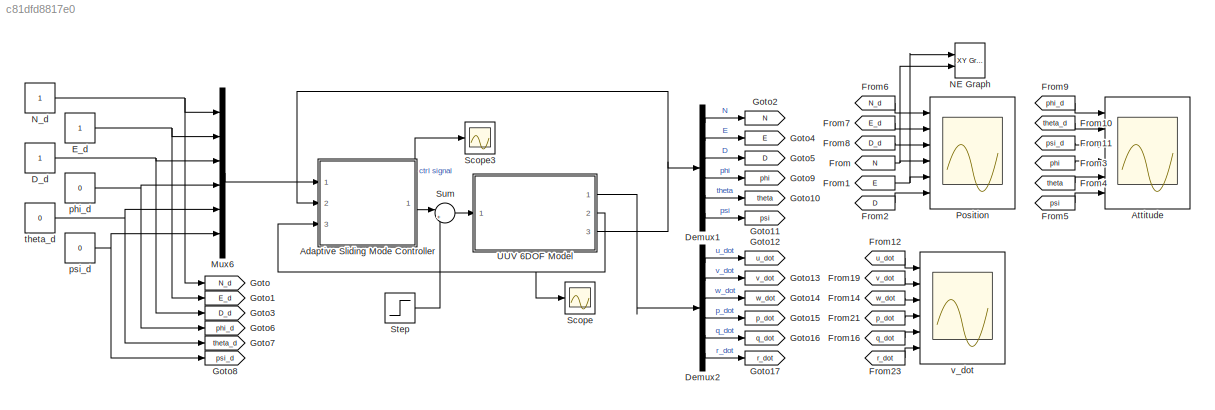
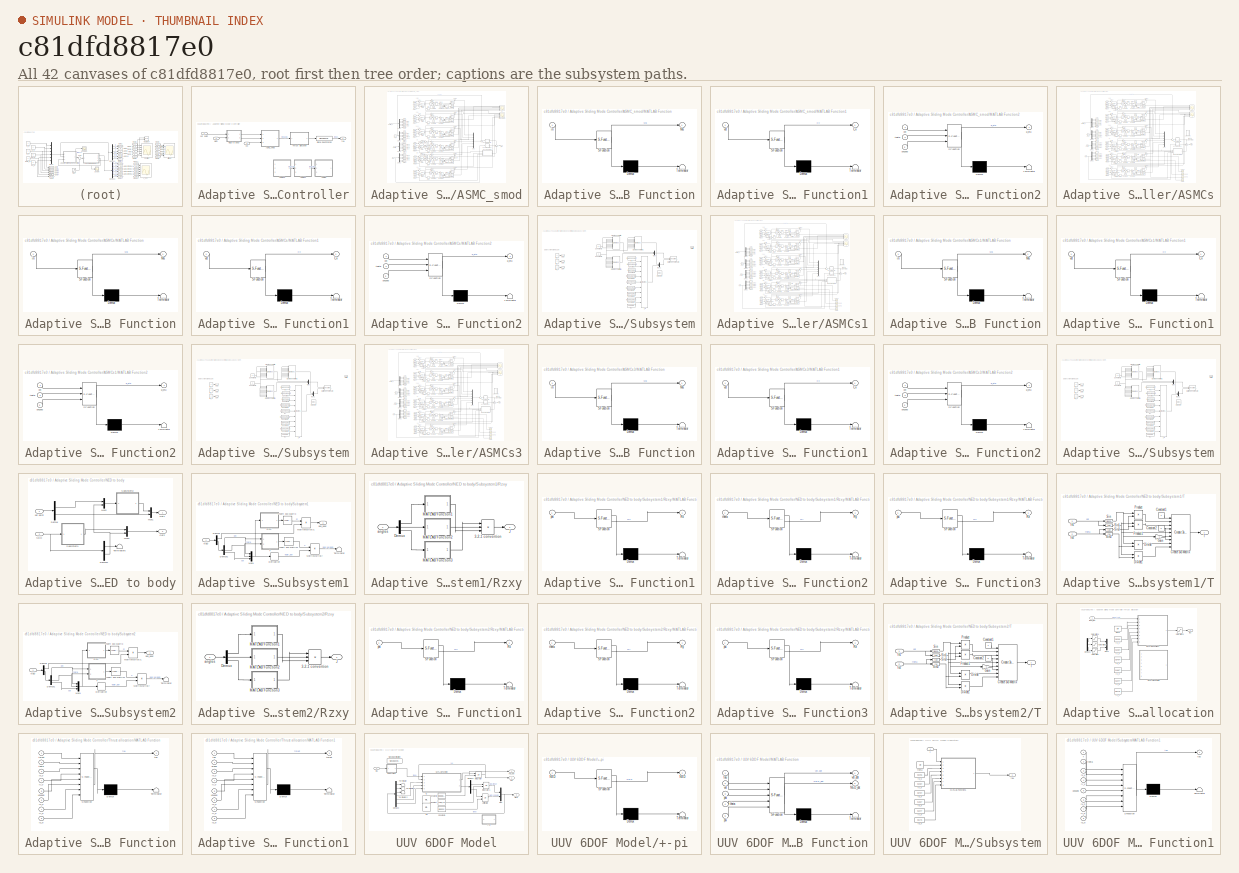
[diagram: thumbnail index - all 42 canvases of the model, root first then tree order]
MODEL slx_c81dfd8817e0
KIND model
CONFIG AbsTol = auto
CONFIG EnableMultiTasking = off
CONFIG FixedStep = 0.01
CONFIG MaxStep = auto
CONFIG MinStep = auto
CONFIG RelTol = 1e-3
CONFIG SampleTimeConstraint = Unconstrained
CONFIG Solver = ode1
CONFIG SolverName = ode1
CONFIG StartTime = 0.0
CONFIG StopTime = 50
WORKSPACE source: mxarray member
WORKSPACE kd = 0
WORKSPACE kp = 0
BLOCK [SubSystem] Adaptive Sliding Mode Controller
  Ports = [3, 1]
  RequestExecContextInheritance = off
BLOCK [SubSystem] Adaptive Sliding Mode Controller/ASMC_smod
  Ports = [3, 1]
  RequestExecContextInheritance = off
BLOCK [Abs] Adaptive Sliding Mode Controller/ASMC_smod/Abs
  SaturateOnIntegerOverflow = off
BLOCK [Abs] Adaptive Sliding Mode Controller/ASMC_smod/Abs1
  SaturateOnIntegerOverflow = off
BLOCK [Abs] Adaptive Sliding Mode Controller/ASMC_smod/Abs2
  SaturateOnIntegerOverflow = off
BLOCK [Abs] Adaptive Sliding Mode Controller/ASMC_smod/Abs3
  SaturateOnIntegerOverflow = off
BLOCK [Abs] Adaptive Sliding Mode Controller/ASMC_smod/Abs4
  SaturateOnIntegerOverflow = off
BLOCK [Abs] Adaptive Sliding Mode Controller/ASMC_smod/Abs5
  SaturateOnIntegerOverflow = off
BLOCK [Constant] Adaptive Sliding Mode Controller/ASMC_smod/Constant
  Value = Kmin
BLOCK [Constant] Adaptive Sliding Mode Controller/ASMC_smod/Constant1
  NameLocation = right
  Value = miu
BLOCK [Constant] Adaptive Sliding Mode Controller/ASMC_smod/Constant10
  Value = Kmin
BLOCK [Constant] Adaptive Sliding Mode Controller/ASMC_smod/Constant11
  NameLocation = right
  Value = miu
BLOCK [Constant] Adaptive Sliding Mode Controller/ASMC_smod/Constant2
  Value = Kmin
BLOCK [Constant] Adaptive Sliding Mode Controller/ASMC_smod/Constant3
  NameLocation = right
  Value = miu
BLOCK [Constant] Adaptive Sliding Mode Controller/ASMC_smod/Constant4
  Value = Kmin
BLOCK [Constant] Adaptive Sliding Mode Controller/ASMC_smod/Constant5
  NameLocation = right
  Value = miu
BLOCK [Constant] Adaptive Sliding Mode Controller/ASMC_smod/Constant6
  Value = Kmin
BLOCK [Constant] Adaptive Sliding Mode Controller/ASMC_smod/Constant7
  NameLocation = right
  Value = miu
BLOCK [Constant] Adaptive Sliding Mode Controller/ASMC_smod/Constant8
  Value = Kmin
BLOCK [Constant] Adaptive Sliding Mode Controller/ASMC_smod/Constant9
  NameLocation = right
  Value = miu
BLOCK [Demux] Adaptive Sliding Mode Controller/ASMC_smod/Demux
  Outputs = 6
  Ports = [1, 6]
BLOCK [Demux] Adaptive Sliding Mode Controller/ASMC_smod/Demux1
  Outputs = 6
  Ports = [1, 6]
BLOCK [Demux] Adaptive Sliding Mode Controller/ASMC_smod/Demux2
  Outputs = 6
  Ports = [1, 6]
BLOCK [Demux] Adaptive Sliding Mode Controller/ASMC_smod/Demux3
  Outputs = 6
  Ports = [1, 6]
BLOCK [From] Adaptive Sliding Mode Controller/ASMC_smod/From
  GotoTag = N_d
BLOCK [From] Adaptive Sliding Mode Controller/ASMC_smod/From1
  GotoTag = E_d
BLOCK [From] Adaptive Sliding Mode Controller/ASMC_smod/From10
  GotoTag = q_d
BLOCK [From] Adaptive Sliding Mode Controller/ASMC_smod/From11
  GotoTag = r_d
BLOCK [From] Adaptive Sliding Mode Controller/ASMC_smod/From12
  GotoTag = N
  NameLocation = top
BLOCK [From] Adaptive Sliding Mode Controller/ASMC_smod/From13
  GotoTag = E
BLOCK [From] Adaptive Sliding Mode Controller/ASMC_smod/From14
  GotoTag = D
BLOCK [From] Adaptive Sliding Mode Controller/ASMC_smod/From15
  GotoTag = phi
BLOCK [From] Adaptive Sliding Mode Controller/ASMC_smod/From16
  GotoTag = theta
BLOCK [From] Adaptive Sliding Mode Controller/ASMC_smod/From17
  GotoTag = psi
BLOCK [From] Adaptive Sliding Mode Controller/ASMC_smod/From18
  GotoTag = u
BLOCK [From] Adaptive Sliding Mode Controller/ASMC_smod/From19
  GotoTag = v
BLOCK [From] Adaptive Sliding Mode Controller/ASMC_smod/From2
  GotoTag = D_d
BLOCK [From] Adaptive Sliding Mode Controller/ASMC_smod/From20
  GotoTag = w
BLOCK [From] Adaptive Sliding Mode Controller/ASMC_smod/From21
  GotoTag = p
BLOCK [From] Adaptive Sliding Mode Controller/ASMC_smod/From22
  GotoTag = q
BLOCK [From] Adaptive Sliding Mode Controller/ASMC_smod/From23
  GotoTag = r
BLOCK [From] Adaptive Sliding Mode Controller/ASMC_smod/From24
  GotoTag = s_pitch
BLOCK [From] Adaptive Sliding Mode Controller/ASMC_smod/From25
  GotoTag = s_roll
BLOCK [From] Adaptive Sliding Mode Controller/ASMC_smod/From3
  GotoTag = phi_d
BLOCK [From] Adaptive Sliding Mode Controller/ASMC_smod/From4
  GotoTag = theta_d
BLOCK [From] Adaptive Sliding Mode Controller/ASMC_smod/From5
  GotoTag = psi_d
BLOCK [From] Adaptive Sliding Mode Controller/ASMC_smod/From6
  GotoTag = u_d
BLOCK [From] Adaptive Sliding Mode Controller/ASMC_smod/From7
  GotoTag = v_d
BLOCK [From] Adaptive Sliding Mode Controller/ASMC_smod/From8
  GotoTag = w_d
BLOCK [From] Adaptive Sliding Mode Controller/ASMC_smod/From9
  GotoTag = p_d
BLOCK [Gain] Adaptive Sliding Mode Controller/ASMC_smod/Gain
  Gain = lambda
BLOCK [Gain] Adaptive Sliding Mode Controller/ASMC_smod/Gain1
  Gain = lambda
BLOCK [Gain] Adaptive Sliding Mode Controller/ASMC_smod/Gain10
  Gain = k_alpha
BLOCK [Gain] Adaptive Sliding Mode Controller/ASMC_smod/Gain11
  Gain = k_alpha
BLOCK [Gain] Adaptive Sliding Mode Controller/ASMC_smod/Gain12
  Gain = k_alpha
BLOCK [Gain] Adaptive Sliding Mode Controller/ASMC_smod/Gain13
  Gain = sway_k
BLOCK [Gain] Adaptive Sliding Mode Controller/ASMC_smod/Gain14
  Gain = k_alpha
BLOCK [Gain] Adaptive Sliding Mode Controller/ASMC_smod/Gain15
  Gain = roll_k
BLOCK [Gain] Adaptive Sliding Mode Controller/ASMC_smod/Gain16
  Gain = lambda
BLOCK [Gain] Adaptive Sliding Mode Controller/ASMC_smod/Gain17
  Gain = yaw_k
BLOCK [Gain] Adaptive Sliding Mode Controller/ASMC_smod/Gain18
  Gain = 2
BLOCK [Gain] Adaptive Sliding Mode Controller/ASMC_smod/Gain19
  Gain = 2
BLOCK [Gain] Adaptive Sliding Mode Controller/ASMC_smod/Gain2
  Gain = k_alpha
BLOCK [Gain] Adaptive Sliding Mode Controller/ASMC_smod/Gain3
BLOCK [Gain] Adaptive Sliding Mode Controller/ASMC_smod/Gain4
BLOCK [Gain] Adaptive Sliding Mode Controller/ASMC_smod/Gain5
  Gain = k_alpha
BLOCK [Gain] Adaptive Sliding Mode Controller/ASMC_smod/Gain6
  Gain = surge_k
BLOCK [Gain] Adaptive Sliding Mode Controller/ASMC_smod/Gain7
  Gain = lambda
BLOCK [Gain] Adaptive Sliding Mode Controller/ASMC_smod/Gain8
  Gain = heave_k
BLOCK [Gain] Adaptive Sliding Mode Controller/ASMC_smod/Gain9
  Gain = pitch_k
BLOCK [Goto] Adaptive Sliding Mode Controller/ASMC_smod/Goto
  GotoTag = s_pitch
BLOCK [Goto] Adaptive Sliding Mode Controller/ASMC_smod/Goto1
  GotoTag = u_d
BLOCK [Goto] Adaptive Sliding Mode Controller/ASMC_smod/Goto10
  GotoTag = p_d
BLOCK [Goto] Adaptive Sliding Mode Controller/ASMC_smod/Goto11
  GotoTag = q_d
BLOCK [Goto] Adaptive Sliding Mode Controller/ASMC_smod/Goto12
  GotoTag = r_d
BLOCK [Goto] Adaptive Sliding Mode Controller/ASMC_smod/Goto13
  GotoTag = N
BLOCK [Goto] Adaptive Sliding Mode Controller/ASMC_smod/Goto14
  GotoTag = E
BLOCK [Goto] Adaptive Sliding Mode Controller/ASMC_smod/Goto15
  GotoTag = D
BLOCK [Goto] Adaptive Sliding Mode Controller/ASMC_smod/Goto16
  GotoTag = phi
BLOCK [Goto] Adaptive Sliding Mode Controller/ASMC_smod/Goto17
  GotoTag = theta
BLOCK [Goto] Adaptive Sliding Mode Controller/ASMC_smod/Goto18
  GotoTag = psi
BLOCK [Goto] Adaptive Sliding Mode Controller/ASMC_smod/Goto19
  GotoTag = u
BLOCK [Goto] Adaptive Sliding Mode Controller/ASMC_smod/Goto2
  GotoTag = v_d
BLOCK [Goto] Adaptive Sliding Mode Controller/ASMC_smod/Goto20
  GotoTag = p
BLOCK [Goto] Adaptive Sliding Mode Controller/ASMC_smod/Goto21
  GotoTag = q
BLOCK [Goto] Adaptive Sliding Mode Controller/ASMC_smod/Goto22
  GotoTag = r
BLOCK [Goto] Adaptive Sliding Mode Controller/ASMC_smod/Goto23
  GotoTag = v
BLOCK [Goto] Adaptive Sliding Mode Controller/ASMC_smod/Goto24
  GotoTag = w
BLOCK [Goto] Adaptive Sliding Mode Controller/ASMC_smod/Goto25
  GotoTag = s_roll
BLOCK [Goto] Adaptive Sliding Mode Controller/ASMC_smod/Goto3
  GotoTag = w_d
BLOCK [Goto] Adaptive Sliding Mode Controller/ASMC_smod/Goto4
  GotoTag = N_d
BLOCK [Goto] Adaptive Sliding Mode Controller/ASMC_smod/Goto5
  GotoTag = E_d
BLOCK [Goto] Adaptive Sliding Mode Controller/ASMC_smod/Goto6
  GotoTag = D_d
BLOCK [Goto] Adaptive Sliding Mode Controller/ASMC_smod/Goto7
  GotoTag = phi_d
BLOCK [Goto] Adaptive Sliding Mode Controller/ASMC_smod/Goto8
  GotoTag = theta_d
BLOCK [Goto] Adaptive Sliding Mode Controller/ASMC_smod/Goto9
  GotoTag = psi_d
BLOCK [Integrator] Adaptive Sliding Mode Controller/ASMC_smod/Integrator
  Ports = [1, 1]
BLOCK [Integrator] Adaptive Sliding Mode Controller/ASMC_smod/Integrator1
  Ports = [1, 1]
BLOCK [Integrator] Adaptive Sliding Mode Controller/ASMC_smod/Integrator2
  Ports = [1, 1]
BLOCK [Integrator] Adaptive Sliding Mode Controller/ASMC_smod/Integrator3
  Ports = [1, 1]
BLOCK [Integrator] Adaptive Sliding Mode Controller/ASMC_smod/Integrator4
  Ports = [1, 1]
BLOCK [Integrator] Adaptive Sliding Mode Controller/ASMC_smod/Integrator5
  Ports = [1, 1]
BLOCK [Scope] Adaptive Sliding Mode Controller/ASMC_smod/K1
  Floating = off
  NumInputPorts = 6
  Ports = [6]
  ScopeSpecificationString = Simulink.scopes.TimeScopeBlockCfg('CurrentConfiguration', extmgr.ConfigurationSet(extmgr.Configuration('Core','General UI',true),extmgr.Configuration('Core','Source UI',true),extmgr.Configuration('Sources','WiredSimulink',true,'DataLoggingVariableName','ScopeData1'),extmgr.Configuration('Visuals','Time Domain',true,'SerializedDisplays',{struct('MinYLimReal','-0.02262','MaxYLimReal','0.19364','YLab...<+1700ch>
BLOCK [SubSystem] Adaptive Sliding Mode Controller/ASMC_smod/MATLAB Function
  ErrorFcn = Stateflow.Translate.translate
  PermitHierarchicalResolution = ExplicitOnly
  Ports = [1, 1]
  RequestExecContextInheritance = off
  SFBlockType = MATLAB Function
  TreatAsAtomicUnit = on
BLOCK [Demux] Adaptive Sliding Mode Controller/ASMC_smod/MATLAB Function/ Demux 
  Outputs = 1
  Ports = [1, 1]
BLOCK [S-Function] Adaptive Sliding Mode Controller/ASMC_smod/MATLAB Function/ SFunction 
  EnableBusSupport = on
  FunctionName = sf_sfun
  PortCounts = [1 2]
  Ports = [1, 2]
  SFcnIsStateOwnerBlock = off
  SFunctionDeploymentMode = off
  Tag = Stateflow S-Function 18
BLOCK [Terminator] Adaptive Sliding Mode Controller/ASMC_smod/MATLAB Function/ Terminator 
BLOCK [Outport] Adaptive Sliding Mode Controller/ASMC_smod/MATLAB Function/Ma
BLOCK [Inport] Adaptive Sliding Mode Controller/ASMC_smod/MATLAB Function/in
BLOCK [SubSystem] Adaptive Sliding Mode Controller/ASMC_smod/MATLAB Function1
  ErrorFcn = Stateflow.Translate.translate
  PermitHierarchicalResolution = ExplicitOnly
  Ports = [1, 1]
  RequestExecContextInheritance = off
  SFBlockType = MATLAB Function
  TreatAsAtomicUnit = on
BLOCK [Demux] Adaptive Sliding Mode Controller/ASMC_smod/MATLAB Function1/ Demux 
  Outputs = 1
  Ports = [1, 1]
BLOCK [S-Function] Adaptive Sliding Mode Controller/ASMC_smod/MATLAB Function1/ SFunction 
  EnableBusSupport = on
  FunctionName = sf_sfun
  PortCounts = [1 2]
  Ports = [1, 2]
  SFcnIsStateOwnerBlock = off
  SFunctionDeploymentMode = off
  Tag = Stateflow S-Function 19
BLOCK [Terminator] Adaptive Sliding Mode Controller/ASMC_smod/MATLAB Function1/ Terminator 
BLOCK [Outport] Adaptive Sliding Mode Controller/ASMC_smod/MATLAB Function1/Cv
BLOCK [Inport] Adaptive Sliding Mode Controller/ASMC_smod/MATLAB Function1/vel
BLOCK [SubSystem] Adaptive Sliding Mode Controller/ASMC_smod/MATLAB Function2
  ErrorFcn = Stateflow.Translate.translate
  PermitHierarchicalResolution = ExplicitOnly
  Ports = [3, 1]
  RequestExecContextInheritance = off
  SFBlockType = MATLAB Function
  TreatAsAtomicUnit = on
BLOCK [Demux] Adaptive Sliding Mode Controller/ASMC_smod/MATLAB Function2/ Demux 
  Outputs = 1
  Ports = [1, 1]
BLOCK [S-Function] Adaptive Sliding Mode Controller/ASMC_smod/MATLAB Function2/ SFunction 
  EnableBusSupport = on
  FunctionName = sf_sfun
  PortCounts = [3 2]
  Ports = [3, 2]
  SFcnIsStateOwnerBlock = off
  SFunctionDeploymentMode = off
  Tag = Stateflow S-Function 20
BLOCK [Terminator] Adaptive Sliding Mode Controller/ASMC_smod/MATLAB Function2/ Terminator 
BLOCK [Outport] Adaptive Sliding Mode Controller/ASMC_smod/MATLAB Function2/g_eta
BLOCK [Inport] Adaptive Sliding Mode Controller/ASMC_smod/MATLAB Function2/phi
BLOCK [Inport] Adaptive Sliding Mode Controller/ASMC_smod/MATLAB Function2/theta
  Port = 2
BLOCK [Inport] Adaptive Sliding Mode Controller/ASMC_smod/MATLAB Function2/unused
  Port = 3
BLOCK [Mux] Adaptive Sliding Mode Controller/ASMC_smod/Mux6
  DisplayOption = bar
  Inputs = 6
  Ports = [6, 1]
BLOCK [Product] Adaptive Sliding Mode Controller/ASMC_smod/Product
  Ports = [2, 1]
BLOCK [Product] Adaptive Sliding Mode Controller/ASMC_smod/Product1
  Ports = [2, 1]
BLOCK [Product] Adaptive Sliding Mode Controller/ASMC_smod/Product2
  Ports = [2, 1]
BLOCK [Product] Adaptive Sliding Mode Controller/ASMC_smod/Product3
  Ports = [2, 1]
BLOCK [Product] Adaptive Sliding Mode Controller/ASMC_smod/Product4
  Ports = [2, 1]
BLOCK [Product] Adaptive Sliding Mode Controller/ASMC_smod/Product5
  Ports = [2, 1]
BLOCK [Signum] Adaptive Sliding Mode Controller/ASMC_smod/Sign
  ZeroCross = off
BLOCK [Signum] Adaptive Sliding Mode Controller/ASMC_smod/Sign1
  ZeroCross = off
BLOCK [Signum] Adaptive Sliding Mode Controller/ASMC_smod/Sign10
  ZeroCross = off
BLOCK [Signum] Adaptive Sliding Mode Controller/ASMC_smod/Sign11
  ZeroCross = off
BLOCK [Signum] Adaptive Sliding Mode Controller/ASMC_smod/Sign2
  ZeroCross = off
BLOCK [Signum] Adaptive Sliding Mode Controller/ASMC_smod/Sign3
  ZeroCross = off
BLOCK [Signum] Adaptive Sliding Mode Controller/ASMC_smod/Sign4
  ZeroCross = off
BLOCK [Signum] Adaptive Sliding Mode Controller/ASMC_smod/Sign5
  ZeroCross = off
BLOCK [Signum] Adaptive Sliding Mode Controller/ASMC_smod/Sign6
  ZeroCross = off
BLOCK [Signum] Adaptive Sliding Mode Controller/ASMC_smod/Sign7
  ZeroCross = off
BLOCK [Signum] Adaptive Sliding Mode Controller/ASMC_smod/Sign8
  ZeroCross = off
BLOCK [Signum] Adaptive Sliding Mode Controller/ASMC_smod/Sign9
  ZeroCross = off
BLOCK [Scope] Adaptive Sliding Mode Controller/ASMC_smod/Sliding variables
  Floating = off
  NumInputPorts = 6
  Ports = [6]
  ScopeSpecificationString = Simulink.scopes.TimeScopeBlockCfg('CurrentConfiguration', extmgr.ConfigurationSet(extmgr.Configuration('Core','General UI',true),extmgr.Configuration('Core','Source UI',true),extmgr.Configuration('Sources','WiredSimulink',true,'DataLoggingVariableName','ScopeData1'),extmgr.Configuration('Visuals','Time Domain',true,'SerializedDisplays',{struct('MinYLimReal','-5.90187','MaxYLimReal','5.68217','YLab...<+1642ch>
BLOCK [Sum] Adaptive Sliding Mode Controller/ASMC_smod/Sum
  Inputs = ++|
  Ports = [2, 1]
BLOCK [Sum] Adaptive Sliding Mode Controller/ASMC_smod/Sum1
  Ports = [2, 1]
BLOCK [Sum] Adaptive Sliding Mode Controller/ASMC_smod/Sum10
  Ports = [2, 1]
BLOCK [Sum] Adaptive Sliding Mode Controller/ASMC_smod/Sum11
  Inputs = |+-
  Ports = [2, 1]
BLOCK [Sum] Adaptive Sliding Mode Controller/ASMC_smod/Sum12
  Inputs = |+-
  Ports = [2, 1]
BLOCK [Sum] Adaptive Sliding Mode Controller/ASMC_smod/Sum13
  Inputs = +++
  Ports = [3, 1]
BLOCK [Sum] Adaptive Sliding Mode Controller/ASMC_smod/Sum14
  Inputs = |+-
  Ports = [2, 1]
BLOCK [Sum] Adaptive Sliding Mode Controller/ASMC_smod/Sum15
  Inputs = |+-
  Ports = [2, 1]
BLOCK [Sum] Adaptive Sliding Mode Controller/ASMC_smod/Sum16
  Ports = [2, 1]
BLOCK [Sum] Adaptive Sliding Mode Controller/ASMC_smod/Sum17
  Inputs = |+-
  Ports = [2, 1]
BLOCK [Sum] Adaptive Sliding Mode Controller/ASMC_smod/Sum18
  Ports = [2, 1]
BLOCK [Sum] Adaptive Sliding Mode Controller/ASMC_smod/Sum19
  Inputs = |++
  Ports = [2, 1]
BLOCK [Sum] Adaptive Sliding Mode Controller/ASMC_smod/Sum2
  Inputs = |+-
  Ports = [2, 1]
BLOCK [Sum] Adaptive Sliding Mode Controller/ASMC_smod/Sum20
  Ports = [2, 1]
BLOCK [Sum] Adaptive Sliding Mode Controller/ASMC_smod/Sum21
  Inputs = |+-
  Ports = [2, 1]
BLOCK [Sum] Adaptive Sliding Mode Controller/ASMC_smod/Sum22
  Ports = [2, 1]
BLOCK [Sum] Adaptive Sliding Mode Controller/ASMC_smod/Sum23
  Inputs = |+-
  Ports = [2, 1]
BLOCK [Sum] Adaptive Sliding Mode Controller/ASMC_smod/Sum24
  Inputs = |+-
  Ports = [2, 1]
BLOCK [Sum] Adaptive Sliding Mode Controller/ASMC_smod/Sum25
  Inputs = |++
  Ports = [2, 1]
BLOCK [Sum] Adaptive Sliding Mode Controller/ASMC_smod/Sum26
  Inputs = |+-
  Ports = [2, 1]
BLOCK [Sum] Adaptive Sliding Mode Controller/ASMC_smod/Sum27
  Inputs = |+-
  Ports = [2, 1]
BLOCK [Sum] Adaptive Sliding Mode Controller/ASMC_smod/Sum28
  Inputs = |++
  Ports = [2, 1]
BLOCK [Sum] Adaptive Sliding Mode Controller/ASMC_smod/Sum29
  Inputs = |+-
  Ports = [2, 1]
BLOCK [Sum] Adaptive Sliding Mode Controller/ASMC_smod/Sum3
  Inputs = |+-
  Ports = [2, 1]
BLOCK [Sum] Adaptive Sliding Mode Controller/ASMC_smod/Sum30
  Inputs = |+-
  Ports = [2, 1]
BLOCK [Sum] Adaptive Sliding Mode Controller/ASMC_smod/Sum31
  Inputs = |++
  Ports = [2, 1]
BLOCK [Sum] Adaptive Sliding Mode Controller/ASMC_smod/Sum32
  Inputs = -+|
  Ports = [2, 1]
BLOCK [Sum] Adaptive Sliding Mode Controller/ASMC_smod/Sum33
  Inputs = -+|
  Ports = [2, 1]
BLOCK [Sum] Adaptive Sliding Mode Controller/ASMC_smod/Sum4
  Inputs = |+-
  Ports = [2, 1]
BLOCK [Sum] Adaptive Sliding Mode Controller/ASMC_smod/Sum5
  Inputs = |+-
  Ports = [2, 1]
BLOCK [Sum] Adaptive Sliding Mode Controller/ASMC_smod/Sum6
  Inputs = |++
  Ports = [2, 1]
BLOCK [Sum] Adaptive Sliding Mode Controller/ASMC_smod/Sum7
  Inputs = |+-
  Ports = [2, 1]
BLOCK [Sum] Adaptive Sliding Mode Controller/ASMC_smod/Sum8
  Inputs = |+-
  Ports = [2, 1]
BLOCK [Sum] Adaptive Sliding Mode Controller/ASMC_smod/Sum9
  Inputs = |++
  Ports = [2, 1]
BLOCK [Switch] Adaptive Sliding Mode Controller/ASMC_smod/Switch
  Criteria = u2 > Threshold
  InputSameDT = off
  SaturateOnIntegerOverflow = off
  Threshold = Kmin
BLOCK [Switch] Adaptive Sliding Mode Controller/ASMC_smod/Switch1
  Criteria = u2 > Threshold
  InputSameDT = off
  SaturateOnIntegerOverflow = off
  Threshold = Kmin
BLOCK [Switch] Adaptive Sliding Mode Controller/ASMC_smod/Switch2
  Criteria = u2 > Threshold
  InputSameDT = off
  SaturateOnIntegerOverflow = off
  Threshold = Kmin
BLOCK [Switch] Adaptive Sliding Mode Controller/ASMC_smod/Switch3
  Criteria = u2 > Threshold
  InputSameDT = off
  SaturateOnIntegerOverflow = off
  Threshold = Kmin
BLOCK [Switch] Adaptive Sliding Mode Controller/ASMC_smod/Switch4
  Criteria = u2 > Threshold
  InputSameDT = off
  SaturateOnIntegerOverflow = off
  Threshold = Kmin
BLOCK [Switch] Adaptive Sliding Mode Controller/ASMC_smod/Switch5
  Criteria = u2 > Threshold
  InputSameDT = off
  SaturateOnIntegerOverflow = off
  Threshold = Kmin
BLOCK [Outport] Adaptive Sliding Mode Controller/ASMC_smod/i_tau
BLOCK [Inport] Adaptive Sliding Mode Controller/ASMC_smod/position
  Port = 2
BLOCK [Inport] Adaptive Sliding Mode Controller/ASMC_smod/position_d 
BLOCK [Inport] Adaptive Sliding Mode Controller/ASMC_smod/vel
  Port = 3
BLOCK [Constant] Adaptive Sliding Mode Controller/ASMC_smod/vel_d
  Value = [0;0;0;0;0;0]
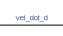
[diagram: Adaptive Sliding Mode Controller/ASMCs - part 1/4, top center region]
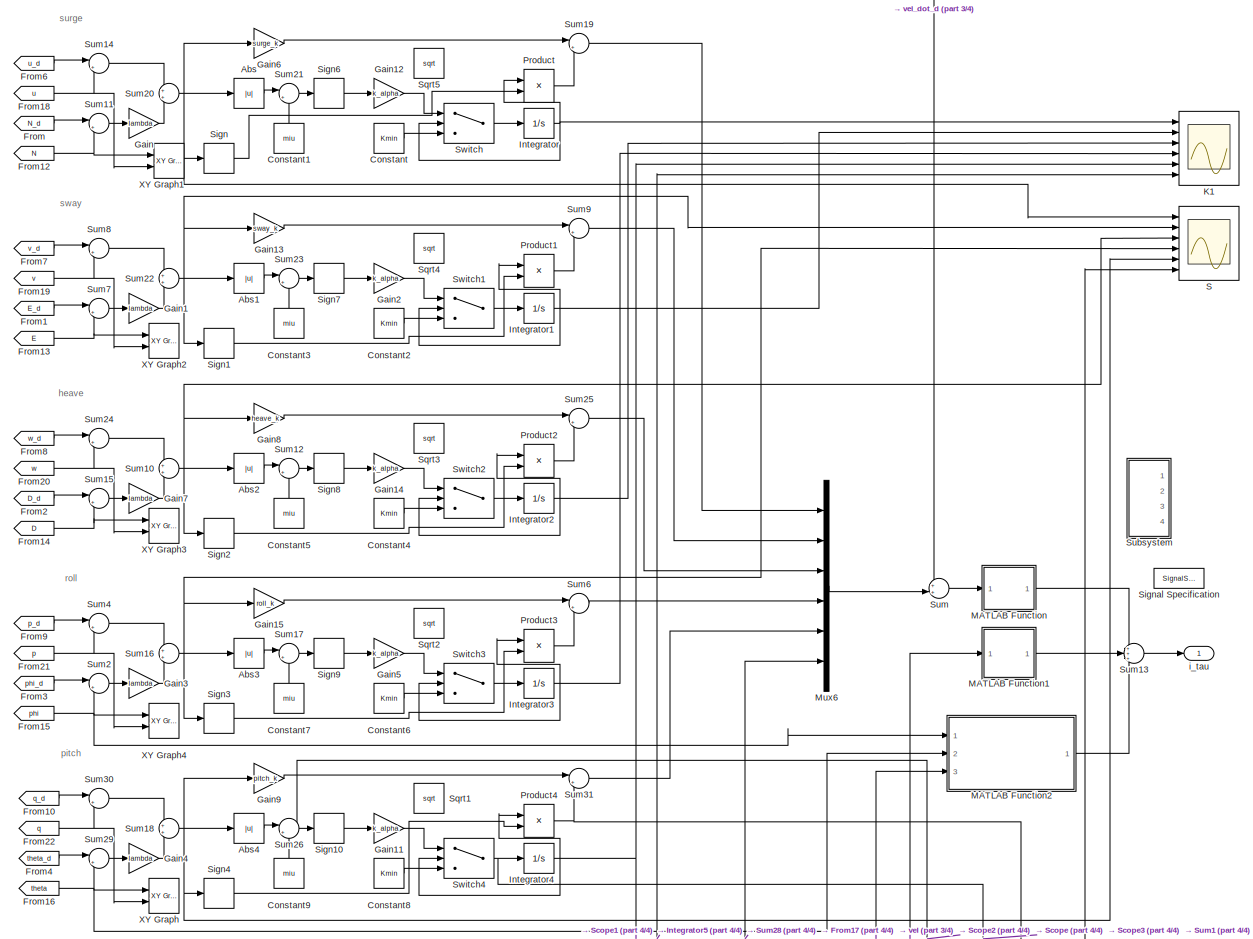
[diagram: Adaptive Sliding Mode Controller/ASMCs - part 2/4, most of the canvas]
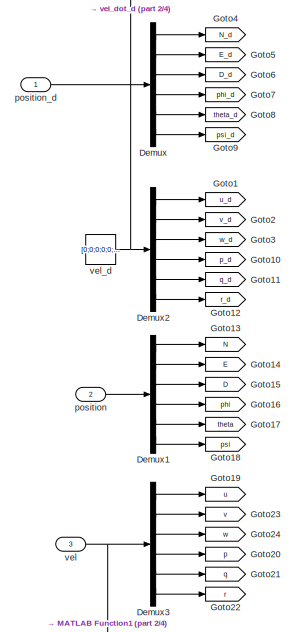
[diagram: Adaptive Sliding Mode Controller/ASMCs - part 3/4, middle left region]
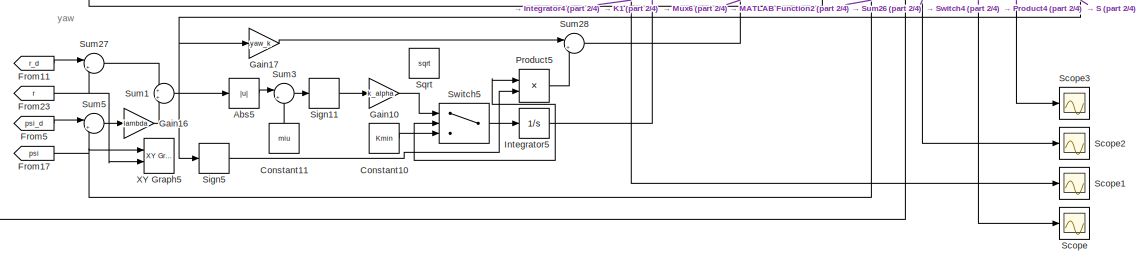
[diagram: Adaptive Sliding Mode Controller/ASMCs - part 4/4, bottom center region]
BLOCK [SubSystem] Adaptive Sliding Mode Controller/ASMCs
  Commented = on
  Ports = [3, 1]
  RequestExecContextInheritance = off
BLOCK [Abs] Adaptive Sliding Mode Controller/ASMCs/Abs
  SaturateOnIntegerOverflow = off
BLOCK [Abs] Adaptive Sliding Mode Controller/ASMCs/Abs1
  SaturateOnIntegerOverflow = off
BLOCK [Abs] Adaptive Sliding Mode Controller/ASMCs/Abs2
  SaturateOnIntegerOverflow = off
BLOCK [Abs] Adaptive Sliding Mode Controller/ASMCs/Abs3
  SaturateOnIntegerOverflow = off
BLOCK [Abs] Adaptive Sliding Mode Controller/ASMCs/Abs4
  SaturateOnIntegerOverflow = off
BLOCK [Abs] Adaptive Sliding Mode Controller/ASMCs/Abs5
  SaturateOnIntegerOverflow = off
BLOCK [Constant] Adaptive Sliding Mode Controller/ASMCs/Constant
  Value = Kmin
BLOCK [Constant] Adaptive Sliding Mode Controller/ASMCs/Constant1
  NameLocation = right
  Value = miu
BLOCK [Constant] Adaptive Sliding Mode Controller/ASMCs/Constant10
  Value = Kmin
BLOCK [Constant] Adaptive Sliding Mode Controller/ASMCs/Constant11
  NameLocation = right
  Value = miu
BLOCK [Constant] Adaptive Sliding Mode Controller/ASMCs/Constant2
  Value = Kmin
BLOCK [Constant] Adaptive Sliding Mode Controller/ASMCs/Constant3
  NameLocation = right
  Value = miu
BLOCK [Constant] Adaptive Sliding Mode Controller/ASMCs/Constant4
  Value = Kmin
BLOCK [Constant] Adaptive Sliding Mode Controller/ASMCs/Constant5
  NameLocation = right
  Value = miu
BLOCK [Constant] Adaptive Sliding Mode Controller/ASMCs/Constant6
  Value = Kmin
BLOCK [Constant] Adaptive Sliding Mode Controller/ASMCs/Constant7
  NameLocation = right
  Value = miu
BLOCK [Constant] Adaptive Sliding Mode Controller/ASMCs/Constant8
  Value = Kmin
BLOCK [Constant] Adaptive Sliding Mode Controller/ASMCs/Constant9
  NameLocation = right
  Value = miu
BLOCK [Demux] Adaptive Sliding Mode Controller/ASMCs/Demux
  Outputs = 6
  Ports = [1, 6]
BLOCK [Demux] Adaptive Sliding Mode Controller/ASMCs/Demux1
  Outputs = 6
  Ports = [1, 6]
BLOCK [Demux] Adaptive Sliding Mode Controller/ASMCs/Demux2
  Outputs = 6
  Ports = [1, 6]
BLOCK [Demux] Adaptive Sliding Mode Controller/ASMCs/Demux3
  Outputs = 6
  Ports = [1, 6]
BLOCK [From] Adaptive Sliding Mode Controller/ASMCs/From
  GotoTag = N_d
BLOCK [From] Adaptive Sliding Mode Controller/ASMCs/From1
  GotoTag = E_d
BLOCK [From] Adaptive Sliding Mode Controller/ASMCs/From10
  GotoTag = q_d
BLOCK [From] Adaptive Sliding Mode Controller/ASMCs/From11
  GotoTag = r_d
BLOCK [From] Adaptive Sliding Mode Controller/ASMCs/From12
  GotoTag = N
  NameLocation = top
BLOCK [From] Adaptive Sliding Mode Controller/ASMCs/From13
  GotoTag = E
BLOCK [From] Adaptive Sliding Mode Controller/ASMCs/From14
  GotoTag = D
BLOCK [From] Adaptive Sliding Mode Controller/ASMCs/From15
  GotoTag = phi
BLOCK [From] Adaptive Sliding Mode Controller/ASMCs/From16
  GotoTag = theta
BLOCK [From] Adaptive Sliding Mode Controller/ASMCs/From17
  GotoTag = psi
BLOCK [From] Adaptive Sliding Mode Controller/ASMCs/From18
  GotoTag = u
BLOCK [From] Adaptive Sliding Mode Controller/ASMCs/From19
  GotoTag = v
BLOCK [From] Adaptive Sliding Mode Controller/ASMCs/From2
  GotoTag = D_d
BLOCK [From] Adaptive Sliding Mode Controller/ASMCs/From20
  GotoTag = w
BLOCK [From] Adaptive Sliding Mode Controller/ASMCs/From21
  GotoTag = p
BLOCK [From] Adaptive Sliding Mode Controller/ASMCs/From22
  GotoTag = q
BLOCK [From] Adaptive Sliding Mode Controller/ASMCs/From23
  GotoTag = r
BLOCK [From] Adaptive Sliding Mode Controller/ASMCs/From3
  GotoTag = phi_d
BLOCK [From] Adaptive Sliding Mode Controller/ASMCs/From4
  GotoTag = theta_d
BLOCK [From] Adaptive Sliding Mode Controller/ASMCs/From5
  GotoTag = psi_d
BLOCK [From] Adaptive Sliding Mode Controller/ASMCs/From6
  GotoTag = u_d
BLOCK [From] Adaptive Sliding Mode Controller/ASMCs/From7
  GotoTag = v_d
BLOCK [From] Adaptive Sliding Mode Controller/ASMCs/From8
  GotoTag = w_d
BLOCK [From] Adaptive Sliding Mode Controller/ASMCs/From9
  GotoTag = p_d
BLOCK [Gain] Adaptive Sliding Mode Controller/ASMCs/Gain
  Gain = lambda
BLOCK [Gain] Adaptive Sliding Mode Controller/ASMCs/Gain1
  Gain = lambda
BLOCK [Gain] Adaptive Sliding Mode Controller/ASMCs/Gain10
  Gain = k_alpha
BLOCK [Gain] Adaptive Sliding Mode Controller/ASMCs/Gain11
  Gain = k_alpha
BLOCK [Gain] Adaptive Sliding Mode Controller/ASMCs/Gain12
  Gain = k_alpha
BLOCK [Gain] Adaptive Sliding Mode Controller/ASMCs/Gain13
  Gain = sway_k
BLOCK [Gain] Adaptive Sliding Mode Controller/ASMCs/Gain14
  Gain = k_alpha
BLOCK [Gain] Adaptive Sliding Mode Controller/ASMCs/Gain15
  Gain = roll_k
BLOCK [Gain] Adaptive Sliding Mode Controller/ASMCs/Gain16
  Gain = lambda
BLOCK [Gain] Adaptive Sliding Mode Controller/ASMCs/Gain17
  Gain = yaw_k
BLOCK [Gain] Adaptive Sliding Mode Controller/ASMCs/Gain2
  Gain = k_alpha
BLOCK [Gain] Adaptive Sliding Mode Controller/ASMCs/Gain3
  Gain = lambda
BLOCK [Gain] Adaptive Sliding Mode Controller/ASMCs/Gain4
  Gain = lambda
BLOCK [Gain] Adaptive Sliding Mode Controller/ASMCs/Gain5
  Gain = k_alpha
BLOCK [Gain] Adaptive Sliding Mode Controller/ASMCs/Gain6
  Gain = surge_k
BLOCK [Gain] Adaptive Sliding Mode Controller/ASMCs/Gain7
  Gain = lambda
BLOCK [Gain] Adaptive Sliding Mode Controller/ASMCs/Gain8
  Gain = heave_k
BLOCK [Gain] Adaptive Sliding Mode Controller/ASMCs/Gain9
  Gain = pitch_k
BLOCK [Goto] Adaptive Sliding Mode Controller/ASMCs/Goto1
  GotoTag = u_d
BLOCK [Goto] Adaptive Sliding Mode Controller/ASMCs/Goto10
  GotoTag = p_d
BLOCK [Goto] Adaptive Sliding Mode Controller/ASMCs/Goto11
  GotoTag = q_d
BLOCK [Goto] Adaptive Sliding Mode Controller/ASMCs/Goto12
  GotoTag = r_d
BLOCK [Goto] Adaptive Sliding Mode Controller/ASMCs/Goto13
  GotoTag = N
BLOCK [Goto] Adaptive Sliding Mode Controller/ASMCs/Goto14
  GotoTag = E
BLOCK [Goto] Adaptive Sliding Mode Controller/ASMCs/Goto15
  GotoTag = D
BLOCK [Goto] Adaptive Sliding Mode Controller/ASMCs/Goto16
  GotoTag = phi
BLOCK [Goto] Adaptive Sliding Mode Controller/ASMCs/Goto17
  GotoTag = theta
BLOCK [Goto] Adaptive Sliding Mode Controller/ASMCs/Goto18
  GotoTag = psi
BLOCK [Goto] Adaptive Sliding Mode Controller/ASMCs/Goto19
  GotoTag = u
BLOCK [Goto] Adaptive Sliding Mode Controller/ASMCs/Goto2
  GotoTag = v_d
BLOCK [Goto] Adaptive Sliding Mode Controller/ASMCs/Goto20
  GotoTag = p
BLOCK [Goto] Adaptive Sliding Mode Controller/ASMCs/Goto21
  GotoTag = q
BLOCK [Goto] Adaptive Sliding Mode Controller/ASMCs/Goto22
  GotoTag = r
BLOCK [Goto] Adaptive Sliding Mode Controller/ASMCs/Goto23
  GotoTag = v
BLOCK [Goto] Adaptive Sliding Mode Controller/ASMCs/Goto24
  GotoTag = w
BLOCK [Goto] Adaptive Sliding Mode Controller/ASMCs/Goto3
  GotoTag = w_d
BLOCK [Goto] Adaptive Sliding Mode Controller/ASMCs/Goto4
  GotoTag = N_d
BLOCK [Goto] Adaptive Sliding Mode Controller/ASMCs/Goto5
  GotoTag = E_d
BLOCK [Goto] Adaptive Sliding Mode Controller/ASMCs/Goto6
  GotoTag = D_d
BLOCK [Goto] Adaptive Sliding Mode Controller/ASMCs/Goto7
  GotoTag = phi_d
BLOCK [Goto] Adaptive Sliding Mode Controller/ASMCs/Goto8
  GotoTag = theta_d
BLOCK [Goto] Adaptive Sliding Mode Controller/ASMCs/Goto9
  GotoTag = psi_d
BLOCK [Integrator] Adaptive Sliding Mode Controller/ASMCs/Integrator
  Ports = [1, 1]
BLOCK [Integrator] Adaptive Sliding Mode Controller/ASMCs/Integrator1
  Ports = [1, 1]
BLOCK [Integrator] Adaptive Sliding Mode Controller/ASMCs/Integrator2
  Ports = [1, 1]
BLOCK [Integrator] Adaptive Sliding Mode Controller/ASMCs/Integrator3
  Ports = [1, 1]
BLOCK [Integrator] Adaptive Sliding Mode Controller/ASMCs/Integrator4
  Ports = [1, 1]
BLOCK [Integrator] Adaptive Sliding Mode Controller/ASMCs/Integrator5
  Ports = [1, 1]
BLOCK [Scope] Adaptive Sliding Mode Controller/ASMCs/K1
  Floating = off
  NumInputPorts = 6
  Ports = [6]
  ScopeSpecificationString = Simulink.scopes.TimeScopeBlockCfg('CurrentConfiguration', extmgr.ConfigurationSet(extmgr.Configuration('Core','General UI',true),extmgr.Configuration('Core','Source UI',true),extmgr.Configuration('Sources','WiredSimulink',true,'DataLoggingVariableName','ScopeData1'),extmgr.Configuration('Visuals','Time Domain',true,'SerializedDisplays',{struct('MinYLimReal','-0.01218','MaxYLimReal','0.10958','YLab...<+1670ch>
BLOCK [SubSystem] Adaptive Sliding Mode Controller/ASMCs/MATLAB Function
  ErrorFcn = Stateflow.Translate.translate
  PermitHierarchicalResolution = ExplicitOnly
  Ports = [1, 1]
  RequestExecContextInheritance = off
  SFBlockType = MATLAB Function
  TreatAsAtomicUnit = on
BLOCK [Demux] Adaptive Sliding Mode Controller/ASMCs/MATLAB Function/ Demux 
  Outputs = 1
  Ports = [1, 1]
BLOCK [S-Function] Adaptive Sliding Mode Controller/ASMCs/MATLAB Function/ SFunction 
  EnableBusSupport = on
  FunctionName = sf_sfun
  PortCounts = [1 2]
  Ports = [1, 2]
  SFcnIsStateOwnerBlock = off
  SFunctionDeploymentMode = off
  Tag = Stateflow S-Function 15
BLOCK [Terminator] Adaptive Sliding Mode Controller/ASMCs/MATLAB Function/ Terminator 
BLOCK [Outport] Adaptive Sliding Mode Controller/ASMCs/MATLAB Function/Ma
BLOCK [Inport] Adaptive Sliding Mode Controller/ASMCs/MATLAB Function/in
BLOCK [SubSystem] Adaptive Sliding Mode Controller/ASMCs/MATLAB Function1
  ErrorFcn = Stateflow.Translate.translate
  PermitHierarchicalResolution = ExplicitOnly
  Ports = [1, 1]
  RequestExecContextInheritance = off
  SFBlockType = MATLAB Function
  TreatAsAtomicUnit = on
BLOCK [Demux] Adaptive Sliding Mode Controller/ASMCs/MATLAB Function1/ Demux 
  Outputs = 1
  Ports = [1, 1]
BLOCK [S-Function] Adaptive Sliding Mode Controller/ASMCs/MATLAB Function1/ SFunction 
  EnableBusSupport = on
  FunctionName = sf_sfun
  PortCounts = [1 2]
  Ports = [1, 2]
  SFcnIsStateOwnerBlock = off
  SFunctionDeploymentMode = off
  Tag = Stateflow S-Function 16
BLOCK [Terminator] Adaptive Sliding Mode Controller/ASMCs/MATLAB Function1/ Terminator 
BLOCK [Outport] Adaptive Sliding Mode Controller/ASMCs/MATLAB Function1/Cv
BLOCK [Inport] Adaptive Sliding Mode Controller/ASMCs/MATLAB Function1/vel
BLOCK [SubSystem] Adaptive Sliding Mode Controller/ASMCs/MATLAB Function2
  ErrorFcn = Stateflow.Translate.translate
  PermitHierarchicalResolution = ExplicitOnly
  Ports = [3, 1]
  RequestExecContextInheritance = off
  SFBlockType = MATLAB Function
  TreatAsAtomicUnit = on
BLOCK [Demux] Adaptive Sliding Mode Controller/ASMCs/MATLAB Function2/ Demux 
  Outputs = 1
  Ports = [1, 1]
BLOCK [S-Function] Adaptive Sliding Mode Controller/ASMCs/MATLAB Function2/ SFunction 
  EnableBusSupport = on
  FunctionName = sf_sfun
  PortCounts = [3 2]
  Ports = [3, 2]
  SFcnIsStateOwnerBlock = off
  SFunctionDeploymentMode = off
  Tag = Stateflow S-Function 17
BLOCK [Terminator] Adaptive Sliding Mode Controller/ASMCs/MATLAB Function2/ Terminator 
BLOCK [Outport] Adaptive Sliding Mode Controller/ASMCs/MATLAB Function2/g_eta
BLOCK [Inport] Adaptive Sliding Mode Controller/ASMCs/MATLAB Function2/phi
BLOCK [Inport] Adaptive Sliding Mode Controller/ASMCs/MATLAB Function2/theta
  Port = 2
BLOCK [Inport] Adaptive Sliding Mode Controller/ASMCs/MATLAB Function2/unused
  Port = 3
BLOCK [Mux] Adaptive Sliding Mode Controller/ASMCs/Mux6
  DisplayOption = bar
  Inputs = 6
  Ports = [6, 1]
BLOCK [Product] Adaptive Sliding Mode Controller/ASMCs/Product
  Ports = [2, 1]
BLOCK [Product] Adaptive Sliding Mode Controller/ASMCs/Product1
  Ports = [2, 1]
BLOCK [Product] Adaptive Sliding Mode Controller/ASMCs/Product2
  Ports = [2, 1]
BLOCK [Product] Adaptive Sliding Mode Controller/ASMCs/Product3
  Ports = [2, 1]
BLOCK [Product] Adaptive Sliding Mode Controller/ASMCs/Product4
  Ports = [2, 1]
BLOCK [Product] Adaptive Sliding Mode Controller/ASMCs/Product5
  Ports = [2, 1]
BLOCK [Scope] Adaptive Sliding Mode Controller/ASMCs/S
  Floating = off
  NumInputPorts = 6
  Ports = [6]
  ScopeSpecificationString = Simulink.scopes.TimeScopeBlockCfg('CurrentConfiguration', extmgr.ConfigurationSet(extmgr.Configuration('Core','General UI',true),extmgr.Configuration('Core','Source UI',true),extmgr.Configuration('Sources','WiredSimulink',true,'DataLoggingVariableName','ScopeData1'),extmgr.Configuration('Visuals','Time Domain',true,'SerializedDisplays',{struct('MinYLimReal','-4.54043','MaxYLimReal','5.5309','YLabe...<+1611ch>
BLOCK [Scope] Adaptive Sliding Mode Controller/ASMCs/Scope
  Commented = on
  Floating = off
  NumInputPorts = 1
  Ports = [1]
  ScopeSpecificationString = Simulink.scopes.TimeScopeBlockCfg('CurrentConfiguration', extmgr.ConfigurationSet(extmgr.Configuration('Core','General UI',true),extmgr.Configuration('Core','Source UI',true),extmgr.Configuration('Sources','WiredSimulink',true,'DataLoggingVariableName','ScopeData2'),extmgr.Configuration('Visuals','Time Domain',true,'SerializedDisplays',{struct('MinYLimReal','-0.125','MaxYLimReal','0.125','YLabelRe...<+1550ch>  <repeated x3 — deduplicated; at blocks: Scope>
BLOCK [Scope] Adaptive Sliding Mode Controller/ASMCs/Scope1
  Commented = on
  Floating = off
  NumInputPorts = 1
  Ports = [1]
  ScopeSpecificationString = Simulink.scopes.TimeScopeBlockCfg('CurrentConfiguration', extmgr.ConfigurationSet(extmgr.Configuration('Core','General UI',true),extmgr.Configuration('Core','Source UI',true),extmgr.Configuration('Sources','WiredSimulink',true,'DataLoggingVariableName','ScopeData3'),extmgr.Configuration('Visuals','Time Domain',true,'SerializedDisplays',{struct('MinYLimReal','-0.00726','MaxYLimReal','0.06537','YLab...<+1566ch>  <repeated x3 — deduplicated; at blocks: Scope1>
BLOCK [Scope] Adaptive Sliding Mode Controller/ASMCs/Scope2
  Commented = on
  Floating = off
  NumInputPorts = 1
  Ports = [1]
  ScopeSpecificationString = Simulink.scopes.TimeScopeBlockCfg('CurrentConfiguration', extmgr.ConfigurationSet(extmgr.Configuration('Core','General UI',true),extmgr.Configuration('Core','Source UI',true),extmgr.Configuration('Sources','WiredSimulink',true,'DataLoggingVariableName','ScopeData4'),extmgr.Configuration('Visuals','Time Domain',true,'SerializedDisplays',{struct('MinYLimReal','-0.24064','MaxYLimReal','1.1663','YLabe...<+1551ch>  <repeated x3 — deduplicated; at blocks: Scope2>
BLOCK [Scope] Adaptive Sliding Mode Controller/ASMCs/Scope3
  Commented = on
  Floating = off
  NumInputPorts = 1
  Ports = [1]
  ScopeSpecificationString = Simulink.scopes.TimeScopeBlockCfg('CurrentConfiguration', extmgr.ConfigurationSet(extmgr.Configuration('Core','General UI',true),extmgr.Configuration('Core','Source UI',true),extmgr.Configuration('Sources','WiredSimulink',true,'DataLoggingVariableName','ScopeData5'),extmgr.Configuration('Visuals','Time Domain',true,'SerializedDisplays',{struct('MinYLimReal','-0.03616','MaxYLimReal','0.03545','YLab...<+1558ch>  <repeated x3 — deduplicated; at blocks: Scope3>
BLOCK [Signum] Adaptive Sliding Mode Controller/ASMCs/Sign
  ZeroCross = off
BLOCK [Signum] Adaptive Sliding Mode Controller/ASMCs/Sign1
  ZeroCross = off
BLOCK [Signum] Adaptive Sliding Mode Controller/ASMCs/Sign10
  ZeroCross = off
BLOCK [Signum] Adaptive Sliding Mode Controller/ASMCs/Sign11
  ZeroCross = off
BLOCK [Signum] Adaptive Sliding Mode Controller/ASMCs/Sign2
  ZeroCross = off
BLOCK [Signum] Adaptive Sliding Mode Controller/ASMCs/Sign3
  ZeroCross = off
BLOCK [Signum] Adaptive Sliding Mode Controller/ASMCs/Sign4
  ZeroCross = off
BLOCK [Signum] Adaptive Sliding Mode Controller/ASMCs/Sign5
  ZeroCross = off
BLOCK [Signum] Adaptive Sliding Mode Controller/ASMCs/Sign6
  ZeroCross = off
BLOCK [Signum] Adaptive Sliding Mode Controller/ASMCs/Sign7
  ZeroCross = off
BLOCK [Signum] Adaptive Sliding Mode Controller/ASMCs/Sign8
  ZeroCross = off
BLOCK [Signum] Adaptive Sliding Mode Controller/ASMCs/Sign9
  ZeroCross = off
BLOCK [SignalSpecification] Adaptive Sliding Mode Controller/ASMCs/Signal Specification
  Commented = on
  Dimensions = 6
  VarSizeSig = No
BLOCK [Sqrt] Adaptive Sliding Mode Controller/ASMCs/Sqrt
  Commented = on
BLOCK [Sqrt] Adaptive Sliding Mode Controller/ASMCs/Sqrt1
  Commented = on
BLOCK [Sqrt] Adaptive Sliding Mode Controller/ASMCs/Sqrt2
  Commented = on
BLOCK [Sqrt] Adaptive Sliding Mode Controller/ASMCs/Sqrt3
  Commented = on
BLOCK [Sqrt] Adaptive Sliding Mode Controller/ASMCs/Sqrt4
  Commented = on
BLOCK [Sqrt] Adaptive Sliding Mode Controller/ASMCs/Sqrt5
  Commented = on
BLOCK [SubSystem] Adaptive Sliding Mode Controller/ASMCs/Subsystem
  Commented = on
  Ports = [0, 4]
  RequestExecContextInheritance = off
BLOCK [Constant] Adaptive Sliding Mode Controller/ASMCs/Subsystem/Constant
  Value = -0.000186482
BLOCK [Constant] Adaptive Sliding Mode Controller/ASMCs/Subsystem/Constant1
  Value = 0.0072251
BLOCK [Constant] Adaptive Sliding Mode Controller/ASMCs/Subsystem/Constant2
  Value = -0.000186482
BLOCK [Constant] Adaptive Sliding Mode Controller/ASMCs/Subsystem/Constant3
  Value = 0.020319615
BLOCK [Constant] Adaptive Sliding Mode Controller/ASMCs/Subsystem/Constant4
  Value = 0.0072251
BLOCK [Constant] Adaptive Sliding Mode Controller/ASMCs/Subsystem/Constant5
  Value = 0.020319615
BLOCK [Constant] Adaptive Sliding Mode Controller/ASMCs/Subsystem/Constant6
  Value = 0
BLOCK [Constant] Adaptive Sliding Mode Controller/ASMCs/Subsystem/Constant9
  Value = 24
BLOCK [Reference] Adaptive Sliding Mode Controller/ASMCs/Subsystem/Create 3x3 Matrix  REF=sharedutil/Create 3x3 Matrix
  Ports = [9, 1]
  SourceBlock = sharedutil/Create 3x3 Matrix
  SourceProductBaseCode = AE,PW,MT,VE,VP
  SourceType = Create 3x3 Matrix
BLOCK [Reference] Adaptive Sliding Mode Controller/ASMCs/Subsystem/Create 3x3 Matrix1  REF=sharedutil/Create 3x3 Matrix
  Ports = [9, 1]
  SourceBlock = sharedutil/Create 3x3 Matrix
  SourceProductBaseCode = AE,PW,MT,VE,VP
  SourceType = Create 3x3 Matrix
BLOCK [Reference] Adaptive Sliding Mode Controller/ASMCs/Subsystem/Create 3x3 Matrix2  REF=sharedutil/Create 3x3 Matrix
  Ports = [9, 1]
  SourceBlock = sharedutil/Create 3x3 Matrix
  SourceProductBaseCode = AE,PW,MT,VE,VP
  SourceType = Create 3x3 Matrix
BLOCK [Reference] Adaptive Sliding Mode Controller/ASMCs/Subsystem/I_g  REF=sharedutil/Create 3x3 Matrix
  Ports = [9, 1]
  SourceBlock = sharedutil/Create 3x3 Matrix
  SourceProductBaseCode = AE,PW,MT,VE,VP
  SourceType = Create 3x3 Matrix
BLOCK [Constant] Adaptive Sliding Mode Controller/ASMCs/Subsystem/Ixx
  Value = 0.900121387
BLOCK [Constant] Adaptive Sliding Mode Controller/ASMCs/Subsystem/Iyy
  Value = 1.754494427
BLOCK [Constant] Adaptive Sliding Mode Controller/ASMCs/Subsystem/Izz
  Value = 1.43389
BLOCK [Outport] Adaptive Sliding Mode Controller/ASMCs/Subsystem/Matrix
BLOCK [Concatenate] Adaptive Sliding Mode Controller/ASMCs/Subsystem/Matrix Concatenate
  ConcatenateDimension = 2
  Mode = Multidimensional array
  Ports = [2, 1]
BLOCK [Mux] Adaptive Sliding Mode Controller/ASMCs/Subsystem/Mux
  DisplayOption = bar
  Inputs = 2
  Ports = [2, 1]
BLOCK [Mux] Adaptive Sliding Mode Controller/ASMCs/Subsystem/Mux1
  DisplayOption = bar
  Inputs = 2
  Ports = [2, 1]
BLOCK [Outport] Adaptive Sliding Mode Controller/ASMCs/Subsystem/Out2
  Port = 2
BLOCK [Outport] Adaptive Sliding Mode Controller/ASMCs/Subsystem/Out3
  Port = 3
BLOCK [Outport] Adaptive Sliding Mode Controller/ASMCs/Subsystem/Out4
  Port = 4
BLOCK [Selector] Adaptive Sliding Mode Controller/ASMCs/Subsystem/Selector
  IndexOptions = Index vector (dialog)
  Indices = [1 3]
  InputPortWidth = 3
  OutputSizes = 1
  Ports = [1, 1]
BLOCK [Constant] Adaptive Sliding Mode Controller/ASMCs/Subsystem/rg_x
  Value = 0
BLOCK [Constant] Adaptive Sliding Mode Controller/ASMCs/Subsystem/rg_y
  Value = 0
BLOCK [Constant] Adaptive Sliding Mode Controller/ASMCs/Subsystem/rg_z
  Value = 0
BLOCK [Sum] Adaptive Sliding Mode Controller/ASMCs/Sum
  Inputs = ++|
  Ports = [2, 1]
BLOCK [Sum] Adaptive Sliding Mode Controller/ASMCs/Sum1
  Ports = [2, 1]
BLOCK [Sum] Adaptive Sliding Mode Controller/ASMCs/Sum10
  Ports = [2, 1]
BLOCK [Sum] Adaptive Sliding Mode Controller/ASMCs/Sum11
  Inputs = |+-
  Ports = [2, 1]
BLOCK [Sum] Adaptive Sliding Mode Controller/ASMCs/Sum12
  Inputs = |+-
  Ports = [2, 1]
BLOCK [Sum] Adaptive Sliding Mode Controller/ASMCs/Sum13
  Inputs = +++
  Ports = [3, 1]
BLOCK [Sum] Adaptive Sliding Mode Controller/ASMCs/Sum14
  Inputs = |+-
  Ports = [2, 1]
BLOCK [Sum] Adaptive Sliding Mode Controller/ASMCs/Sum15
  Inputs = |+-
  Ports = [2, 1]
BLOCK [Sum] Adaptive Sliding Mode Controller/ASMCs/Sum16
  Ports = [2, 1]
BLOCK [Sum] Adaptive Sliding Mode Controller/ASMCs/Sum17
  Inputs = |+-
  Ports = [2, 1]
BLOCK [Sum] Adaptive Sliding Mode Controller/ASMCs/Sum18
  Ports = [2, 1]
BLOCK [Sum] Adaptive Sliding Mode Controller/ASMCs/Sum19
  Inputs = |++
  Ports = [2, 1]
BLOCK [Sum] Adaptive Sliding Mode Controller/ASMCs/Sum2
  Inputs = |+-
  Ports = [2, 1]
BLOCK [Sum] Adaptive Sliding Mode Controller/ASMCs/Sum20
  Ports = [2, 1]
BLOCK [Sum] Adaptive Sliding Mode Controller/ASMCs/Sum21
  Inputs = |+-
  Ports = [2, 1]
BLOCK [Sum] Adaptive Sliding Mode Controller/ASMCs/Sum22
  Ports = [2, 1]
BLOCK [Sum] Adaptive Sliding Mode Controller/ASMCs/Sum23
  Inputs = |+-
  Ports = [2, 1]
BLOCK [Sum] Adaptive Sliding Mode Controller/ASMCs/Sum24
  Inputs = |+-
  Ports = [2, 1]
BLOCK [Sum] Adaptive Sliding Mode Controller/ASMCs/Sum25
  Inputs = |++
  Ports = [2, 1]
BLOCK [Sum] Adaptive Sliding Mode Controller/ASMCs/Sum26
  Inputs = |+-
  Ports = [2, 1]
BLOCK [Sum] Adaptive Sliding Mode Controller/ASMCs/Sum27
  Inputs = |+-
  Ports = [2, 1]
BLOCK [Sum] Adaptive Sliding Mode Controller/ASMCs/Sum28
  Inputs = |++
  Ports = [2, 1]
BLOCK [Sum] Adaptive Sliding Mode Controller/ASMCs/Sum29
  Inputs = |+-
  Ports = [2, 1]
BLOCK [Sum] Adaptive Sliding Mode Controller/ASMCs/Sum3
  Inputs = |+-
  Ports = [2, 1]
BLOCK [Sum] Adaptive Sliding Mode Controller/ASMCs/Sum30
  Inputs = |+-
  Ports = [2, 1]
BLOCK [Sum] Adaptive Sliding Mode Controller/ASMCs/Sum31
  Inputs = |++
  Ports = [2, 1]
BLOCK [Sum] Adaptive Sliding Mode Controller/ASMCs/Sum4
  Inputs = |+-
  Ports = [2, 1]
BLOCK [Sum] Adaptive Sliding Mode Controller/ASMCs/Sum5
  Inputs = |+-
  Ports = [2, 1]
BLOCK [Sum] Adaptive Sliding Mode Controller/ASMCs/Sum6
  Inputs = |++
  Ports = [2, 1]
BLOCK [Sum] Adaptive Sliding Mode Controller/ASMCs/Sum7
  Inputs = |+-
  Ports = [2, 1]
BLOCK [Sum] Adaptive Sliding Mode Controller/ASMCs/Sum8
  Inputs = |+-
  Ports = [2, 1]
BLOCK [Sum] Adaptive Sliding Mode Controller/ASMCs/Sum9
  Inputs = |++
  Ports = [2, 1]
BLOCK [Switch] Adaptive Sliding Mode Controller/ASMCs/Switch
  Criteria = u2 > Threshold
  InputSameDT = off
  SaturateOnIntegerOverflow = off
  Threshold = Kmin
BLOCK [Switch] Adaptive Sliding Mode Controller/ASMCs/Switch1
  Criteria = u2 > Threshold
  InputSameDT = off
  SaturateOnIntegerOverflow = off
  Threshold = Kmin
BLOCK [Switch] Adaptive Sliding Mode Controller/ASMCs/Switch2
  Criteria = u2 > Threshold
  InputSameDT = off
  SaturateOnIntegerOverflow = off
  Threshold = Kmin
BLOCK [Switch] Adaptive Sliding Mode Controller/ASMCs/Switch3
  Criteria = u2 > Threshold
  InputSameDT = off
  SaturateOnIntegerOverflow = off
  Threshold = Kmin
BLOCK [Switch] Adaptive Sliding Mode Controller/ASMCs/Switch4
  Criteria = u2 > Threshold
  InputSameDT = off
  SaturateOnIntegerOverflow = off
  Threshold = Kmin
BLOCK [Switch] Adaptive Sliding Mode Controller/ASMCs/Switch5
  Criteria = u2 > Threshold
  InputSameDT = off
  SaturateOnIntegerOverflow = off
  Threshold = Kmin
BLOCK [Reference] Adaptive Sliding Mode Controller/ASMCs/XY Graph  REF=simulink/Sinks/XY Graph
  Commented = on
  Ports = [2]
  SourceBlock = simulink/Sinks/XY Graph
  SourceProductBaseCode = SL
  SourceType = XY scope.
BLOCK [Reference] Adaptive Sliding Mode Controller/ASMCs/XY Graph1  REF=simulink/Sinks/XY Graph
  Commented = on
  Ports = [2]
  SourceBlock = simulink/Sinks/XY Graph
  SourceProductBaseCode = SL
  SourceType = XY scope.
BLOCK [Reference] Adaptive Sliding Mode Controller/ASMCs/XY Graph2  REF=simulink/Sinks/XY Graph
  Commented = on
  Ports = [2]
  SourceBlock = simulink/Sinks/XY Graph
  SourceProductBaseCode = SL
  SourceType = XY scope.
BLOCK [Reference] Adaptive Sliding Mode Controller/ASMCs/XY Graph3  REF=simulink/Sinks/XY Graph
  Commented = on
  Ports = [2]
  SourceBlock = simulink/Sinks/XY Graph
  SourceProductBaseCode = SL
  SourceType = XY scope.
BLOCK [Reference] Adaptive Sliding Mode Controller/ASMCs/XY Graph4  REF=simulink/Sinks/XY Graph
  Commented = on
  Ports = [2]
  SourceBlock = simulink/Sinks/XY Graph
  SourceProductBaseCode = SL
  SourceType = XY scope.
BLOCK [Reference] Adaptive Sliding Mode Controller/ASMCs/XY Graph5  REF=simulink/Sinks/XY Graph
  Commented = on
  Ports = [2]
  SourceBlock = simulink/Sinks/XY Graph
  SourceProductBaseCode = SL
  SourceType = XY scope.
BLOCK [Outport] Adaptive Sliding Mode Controller/ASMCs/i_tau
BLOCK [Inport] Adaptive Sliding Mode Controller/ASMCs/position
  Port = 2
BLOCK [Inport] Adaptive Sliding Mode Controller/ASMCs/position_d 
BLOCK [Inport] Adaptive Sliding Mode Controller/ASMCs/vel
  Port = 3
BLOCK [Constant] Adaptive Sliding Mode Controller/ASMCs/vel_d
  Value = [0;0;0;0;0;0]
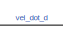
[diagram: Adaptive Sliding Mode Controller/ASMCs1 - part 1/4, top center region]
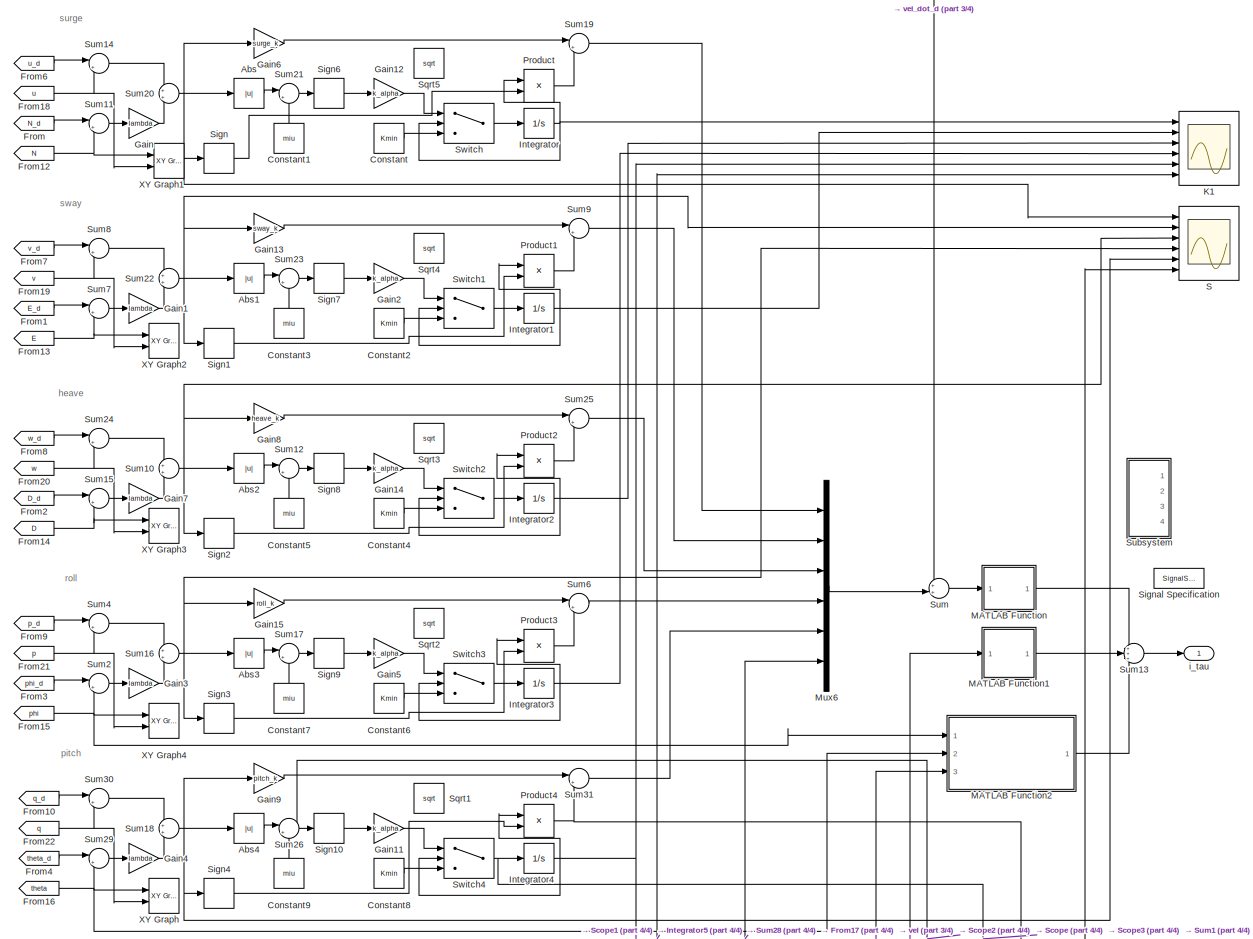
[diagram: Adaptive Sliding Mode Controller/ASMCs1 - part 2/4, most of the canvas]
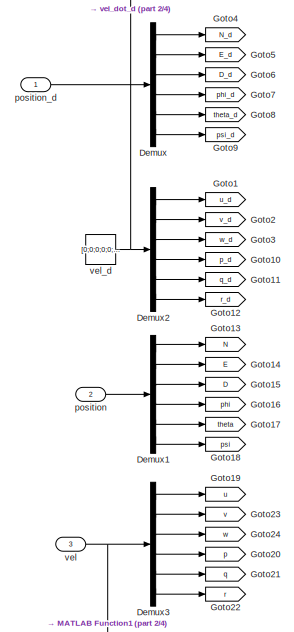
[diagram: Adaptive Sliding Mode Controller/ASMCs1 - part 3/4, middle left region]
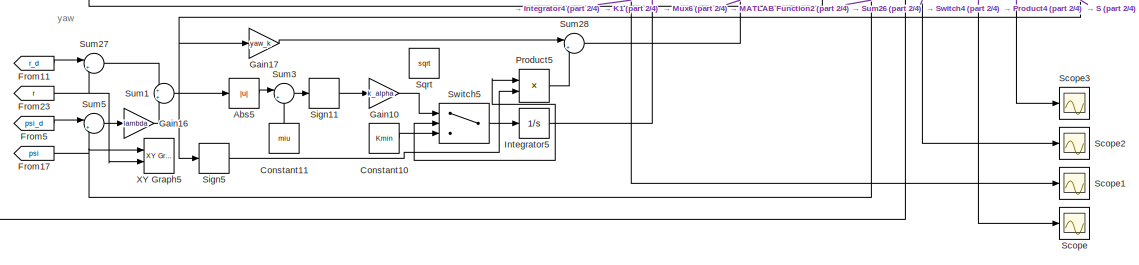
[diagram: Adaptive Sliding Mode Controller/ASMCs1 - part 4/4, bottom center region]
BLOCK [SubSystem] Adaptive Sliding Mode Controller/ASMCs1
  Commented = on
  Ports = [3, 1]
  RequestExecContextInheritance = off
BLOCK [Abs] Adaptive Sliding Mode Controller/ASMCs1/Abs
  SaturateOnIntegerOverflow = off
BLOCK [Abs] Adaptive Sliding Mode Controller/ASMCs1/Abs1
  SaturateOnIntegerOverflow = off
BLOCK [Abs] Adaptive Sliding Mode Controller/ASMCs1/Abs2
  SaturateOnIntegerOverflow = off
BLOCK [Abs] Adaptive Sliding Mode Controller/ASMCs1/Abs3
  SaturateOnIntegerOverflow = off
BLOCK [Abs] Adaptive Sliding Mode Controller/ASMCs1/Abs4
  SaturateOnIntegerOverflow = off
BLOCK [Abs] Adaptive Sliding Mode Controller/ASMCs1/Abs5
  SaturateOnIntegerOverflow = off
BLOCK [Constant] Adaptive Sliding Mode Controller/ASMCs1/Constant
  Value = Kmin
BLOCK [Constant] Adaptive Sliding Mode Controller/ASMCs1/Constant1
  NameLocation = right
  Value = miu
BLOCK [Constant] Adaptive Sliding Mode Controller/ASMCs1/Constant10
  Value = Kmin
BLOCK [Constant] Adaptive Sliding Mode Controller/ASMCs1/Constant11
  NameLocation = right
  Value = miu
BLOCK [Constant] Adaptive Sliding Mode Controller/ASMCs1/Constant2
  Value = Kmin
BLOCK [Constant] Adaptive Sliding Mode Controller/ASMCs1/Constant3
  NameLocation = right
  Value = miu
BLOCK [Constant] Adaptive Sliding Mode Controller/ASMCs1/Constant4
  Value = Kmin
BLOCK [Constant] Adaptive Sliding Mode Controller/ASMCs1/Constant5
  NameLocation = right
  Value = miu
BLOCK [Constant] Adaptive Sliding Mode Controller/ASMCs1/Constant6
  Value = Kmin
BLOCK [Constant] Adaptive Sliding Mode Controller/ASMCs1/Constant7
  NameLocation = right
  Value = miu
BLOCK [Constant] Adaptive Sliding Mode Controller/ASMCs1/Constant8
  Value = Kmin
BLOCK [Constant] Adaptive Sliding Mode Controller/ASMCs1/Constant9
  NameLocation = right
  Value = miu
BLOCK [Demux] Adaptive Sliding Mode Controller/ASMCs1/Demux
  Outputs = 6
  Ports = [1, 6]
BLOCK [Demux] Adaptive Sliding Mode Controller/ASMCs1/Demux1
  Outputs = 6
  Ports = [1, 6]
BLOCK [Demux] Adaptive Sliding Mode Controller/ASMCs1/Demux2
  Outputs = 6
  Ports = [1, 6]
BLOCK [Demux] Adaptive Sliding Mode Controller/ASMCs1/Demux3
  Outputs = 6
  Ports = [1, 6]
BLOCK [From] Adaptive Sliding Mode Controller/ASMCs1/From
  GotoTag = N_d
BLOCK [From] Adaptive Sliding Mode Controller/ASMCs1/From1
  GotoTag = E_d
BLOCK [From] Adaptive Sliding Mode Controller/ASMCs1/From10
  GotoTag = q_d
BLOCK [From] Adaptive Sliding Mode Controller/ASMCs1/From11
  GotoTag = r_d
BLOCK [From] Adaptive Sliding Mode Controller/ASMCs1/From12
  GotoTag = N
  NameLocation = top
BLOCK [From] Adaptive Sliding Mode Controller/ASMCs1/From13
  GotoTag = E
BLOCK [From] Adaptive Sliding Mode Controller/ASMCs1/From14
  GotoTag = D
BLOCK [From] Adaptive Sliding Mode Controller/ASMCs1/From15
  GotoTag = phi
BLOCK [From] Adaptive Sliding Mode Controller/ASMCs1/From16
  GotoTag = theta
BLOCK [From] Adaptive Sliding Mode Controller/ASMCs1/From17
  GotoTag = psi
BLOCK [From] Adaptive Sliding Mode Controller/ASMCs1/From18
  GotoTag = u
BLOCK [From] Adaptive Sliding Mode Controller/ASMCs1/From19
  GotoTag = v
BLOCK [From] Adaptive Sliding Mode Controller/ASMCs1/From2
  GotoTag = D_d
BLOCK [From] Adaptive Sliding Mode Controller/ASMCs1/From20
  GotoTag = w
BLOCK [From] Adaptive Sliding Mode Controller/ASMCs1/From21
  GotoTag = p
BLOCK [From] Adaptive Sliding Mode Controller/ASMCs1/From22
  GotoTag = q
BLOCK [From] Adaptive Sliding Mode Controller/ASMCs1/From23
  GotoTag = r
BLOCK [From] Adaptive Sliding Mode Controller/ASMCs1/From3
  GotoTag = phi_d
BLOCK [From] Adaptive Sliding Mode Controller/ASMCs1/From4
  GotoTag = theta_d
BLOCK [From] Adaptive Sliding Mode Controller/ASMCs1/From5
  GotoTag = psi_d
BLOCK [From] Adaptive Sliding Mode Controller/ASMCs1/From6
  GotoTag = u_d
BLOCK [From] Adaptive Sliding Mode Controller/ASMCs1/From7
  GotoTag = v_d
BLOCK [From] Adaptive Sliding Mode Controller/ASMCs1/From8
  GotoTag = w_d
BLOCK [From] Adaptive Sliding Mode Controller/ASMCs1/From9
  GotoTag = p_d
BLOCK [Gain] Adaptive Sliding Mode Controller/ASMCs1/Gain
  Gain = lambda
BLOCK [Gain] Adaptive Sliding Mode Controller/ASMCs1/Gain1
  Gain = lambda
BLOCK [Gain] Adaptive Sliding Mode Controller/ASMCs1/Gain10
  Gain = k_alpha
BLOCK [Gain] Adaptive Sliding Mode Controller/ASMCs1/Gain11
  Gain = k_alpha
BLOCK [Gain] Adaptive Sliding Mode Controller/ASMCs1/Gain12
  Gain = k_alpha
BLOCK [Gain] Adaptive Sliding Mode Controller/ASMCs1/Gain13
  Gain = sway_k
BLOCK [Gain] Adaptive Sliding Mode Controller/ASMCs1/Gain14
  Gain = k_alpha
BLOCK [Gain] Adaptive Sliding Mode Controller/ASMCs1/Gain15
  Gain = roll_k
BLOCK [Gain] Adaptive Sliding Mode Controller/ASMCs1/Gain16
  Gain = lambda
BLOCK [Gain] Adaptive Sliding Mode Controller/ASMCs1/Gain17
  Gain = yaw_k
BLOCK [Gain] Adaptive Sliding Mode Controller/ASMCs1/Gain2
  Gain = k_alpha
BLOCK [Gain] Adaptive Sliding Mode Controller/ASMCs1/Gain3
  Gain = lambda
BLOCK [Gain] Adaptive Sliding Mode Controller/ASMCs1/Gain4
  Gain = lambda
BLOCK [Gain] Adaptive Sliding Mode Controller/ASMCs1/Gain5
  Gain = k_alpha
BLOCK [Gain] Adaptive Sliding Mode Controller/ASMCs1/Gain6
  Gain = surge_k
BLOCK [Gain] Adaptive Sliding Mode Controller/ASMCs1/Gain7
  Gain = lambda
BLOCK [Gain] Adaptive Sliding Mode Controller/ASMCs1/Gain8
  Gain = heave_k
BLOCK [Gain] Adaptive Sliding Mode Controller/ASMCs1/Gain9
  Gain = pitch_k
BLOCK [Goto] Adaptive Sliding Mode Controller/ASMCs1/Goto1
  GotoTag = u_d
BLOCK [Goto] Adaptive Sliding Mode Controller/ASMCs1/Goto10
  GotoTag = p_d
BLOCK [Goto] Adaptive Sliding Mode Controller/ASMCs1/Goto11
  GotoTag = q_d
BLOCK [Goto] Adaptive Sliding Mode Controller/ASMCs1/Goto12
  GotoTag = r_d
BLOCK [Goto] Adaptive Sliding Mode Controller/ASMCs1/Goto13
  GotoTag = N
BLOCK [Goto] Adaptive Sliding Mode Controller/ASMCs1/Goto14
  GotoTag = E
BLOCK [Goto] Adaptive Sliding Mode Controller/ASMCs1/Goto15
  GotoTag = D
BLOCK [Goto] Adaptive Sliding Mode Controller/ASMCs1/Goto16
  GotoTag = phi
BLOCK [Goto] Adaptive Sliding Mode Controller/ASMCs1/Goto17
  GotoTag = theta
BLOCK [Goto] Adaptive Sliding Mode Controller/ASMCs1/Goto18
  GotoTag = psi
BLOCK [Goto] Adaptive Sliding Mode Controller/ASMCs1/Goto19
  GotoTag = u
BLOCK [Goto] Adaptive Sliding Mode Controller/ASMCs1/Goto2
  GotoTag = v_d
BLOCK [Goto] Adaptive Sliding Mode Controller/ASMCs1/Goto20
  GotoTag = p
BLOCK [Goto] Adaptive Sliding Mode Controller/ASMCs1/Goto21
  GotoTag = q
BLOCK [Goto] Adaptive Sliding Mode Controller/ASMCs1/Goto22
  GotoTag = r
BLOCK [Goto] Adaptive Sliding Mode Controller/ASMCs1/Goto23
  GotoTag = v
BLOCK [Goto] Adaptive Sliding Mode Controller/ASMCs1/Goto24
  GotoTag = w
BLOCK [Goto] Adaptive Sliding Mode Controller/ASMCs1/Goto3
  GotoTag = w_d
BLOCK [Goto] Adaptive Sliding Mode Controller/ASMCs1/Goto4
  GotoTag = N_d
BLOCK [Goto] Adaptive Sliding Mode Controller/ASMCs1/Goto5
  GotoTag = E_d
BLOCK [Goto] Adaptive Sliding Mode Controller/ASMCs1/Goto6
  GotoTag = D_d
BLOCK [Goto] Adaptive Sliding Mode Controller/ASMCs1/Goto7
  GotoTag = phi_d
BLOCK [Goto] Adaptive Sliding Mode Controller/ASMCs1/Goto8
  GotoTag = theta_d
BLOCK [Goto] Adaptive Sliding Mode Controller/ASMCs1/Goto9
  GotoTag = psi_d
BLOCK [Integrator] Adaptive Sliding Mode Controller/ASMCs1/Integrator
  Ports = [1, 1]
BLOCK [Integrator] Adaptive Sliding Mode Controller/ASMCs1/Integrator1
  Ports = [1, 1]
BLOCK [Integrator] Adaptive Sliding Mode Controller/ASMCs1/Integrator2
  Ports = [1, 1]
BLOCK [Integrator] Adaptive Sliding Mode Controller/ASMCs1/Integrator3
  Ports = [1, 1]
BLOCK [Integrator] Adaptive Sliding Mode Controller/ASMCs1/Integrator4
  Ports = [1, 1]
BLOCK [Integrator] Adaptive Sliding Mode Controller/ASMCs1/Integrator5
  Ports = [1, 1]
BLOCK [Scope] Adaptive Sliding Mode Controller/ASMCs1/K1
  Floating = off
  NumInputPorts = 6
  Ports = [6]
  ScopeSpecificationString = Simulink.scopes.TimeScopeBlockCfg('CurrentConfiguration', extmgr.ConfigurationSet(extmgr.Configuration('Core','General UI',true),extmgr.Configuration('Core','Source UI',true),extmgr.Configuration('Sources','WiredSimulink',true,'DataLoggingVariableName','ScopeData1'),extmgr.Configuration('Visuals','Time Domain',true,'SerializedDisplays',{struct('MinYLimReal','-0.06032','MaxYLimReal','0.54292','YLab...<+1590ch>
BLOCK [SubSystem] Adaptive Sliding Mode Controller/ASMCs1/MATLAB Function
  ErrorFcn = Stateflow.Translate.translate
  PermitHierarchicalResolution = ExplicitOnly
  Ports = [1, 1]
  RequestExecContextInheritance = off
  SFBlockType = MATLAB Function
  TreatAsAtomicUnit = on
BLOCK [Demux] Adaptive Sliding Mode Controller/ASMCs1/MATLAB Function/ Demux 
  Outputs = 1
  Ports = [1, 1]
BLOCK [S-Function] Adaptive Sliding Mode Controller/ASMCs1/MATLAB Function/ SFunction 
  EnableBusSupport = on
  FunctionName = sf_sfun
  PortCounts = [1 2]
  Ports = [1, 2]
  SFcnIsStateOwnerBlock = off
  SFunctionDeploymentMode = off
  Tag = Stateflow S-Function 12
BLOCK [Terminator] Adaptive Sliding Mode Controller/ASMCs1/MATLAB Function/ Terminator 
BLOCK [Outport] Adaptive Sliding Mode Controller/ASMCs1/MATLAB Function/Ma
BLOCK [Inport] Adaptive Sliding Mode Controller/ASMCs1/MATLAB Function/in
BLOCK [SubSystem] Adaptive Sliding Mode Controller/ASMCs1/MATLAB Function1
  ErrorFcn = Stateflow.Translate.translate
  PermitHierarchicalResolution = ExplicitOnly
  Ports = [1, 1]
  RequestExecContextInheritance = off
  SFBlockType = MATLAB Function
  TreatAsAtomicUnit = on
BLOCK [Demux] Adaptive Sliding Mode Controller/ASMCs1/MATLAB Function1/ Demux 
  Outputs = 1
  Ports = [1, 1]
BLOCK [S-Function] Adaptive Sliding Mode Controller/ASMCs1/MATLAB Function1/ SFunction 
  EnableBusSupport = on
  FunctionName = sf_sfun
  PortCounts = [1 2]
  Ports = [1, 2]
  SFcnIsStateOwnerBlock = off
  SFunctionDeploymentMode = off
  Tag = Stateflow S-Function 13
BLOCK [Terminator] Adaptive Sliding Mode Controller/ASMCs1/MATLAB Function1/ Terminator 
BLOCK [Outport] Adaptive Sliding Mode Controller/ASMCs1/MATLAB Function1/Cv
BLOCK [Inport] Adaptive Sliding Mode Controller/ASMCs1/MATLAB Function1/vel
BLOCK [SubSystem] Adaptive Sliding Mode Controller/ASMCs1/MATLAB Function2
  ErrorFcn = Stateflow.Translate.translate
  PermitHierarchicalResolution = ExplicitOnly
  Ports = [3, 1]
  RequestExecContextInheritance = off
  SFBlockType = MATLAB Function
  TreatAsAtomicUnit = on
BLOCK [Demux] Adaptive Sliding Mode Controller/ASMCs1/MATLAB Function2/ Demux 
  Outputs = 1
  Ports = [1, 1]
BLOCK [S-Function] Adaptive Sliding Mode Controller/ASMCs1/MATLAB Function2/ SFunction 
  EnableBusSupport = on
  FunctionName = sf_sfun
  PortCounts = [3 2]
  Ports = [3, 2]
  SFcnIsStateOwnerBlock = off
  SFunctionDeploymentMode = off
  Tag = Stateflow S-Function 14
BLOCK [Terminator] Adaptive Sliding Mode Controller/ASMCs1/MATLAB Function2/ Terminator 
BLOCK [Outport] Adaptive Sliding Mode Controller/ASMCs1/MATLAB Function2/g_eta
BLOCK [Inport] Adaptive Sliding Mode Controller/ASMCs1/MATLAB Function2/phi
BLOCK [Inport] Adaptive Sliding Mode Controller/ASMCs1/MATLAB Function2/theta
  Port = 2
BLOCK [Inport] Adaptive Sliding Mode Controller/ASMCs1/MATLAB Function2/unused
  Port = 3
BLOCK [Mux] Adaptive Sliding Mode Controller/ASMCs1/Mux6
  DisplayOption = bar
  Inputs = 6
  Ports = [6, 1]
BLOCK [Product] Adaptive Sliding Mode Controller/ASMCs1/Product
  Ports = [2, 1]
BLOCK [Product] Adaptive Sliding Mode Controller/ASMCs1/Product1
  Ports = [2, 1]
BLOCK [Product] Adaptive Sliding Mode Controller/ASMCs1/Product2
  Ports = [2, 1]
BLOCK [Product] Adaptive Sliding Mode Controller/ASMCs1/Product3
  Ports = [2, 1]
BLOCK [Product] Adaptive Sliding Mode Controller/ASMCs1/Product4
  Ports = [2, 1]
BLOCK [Product] Adaptive Sliding Mode Controller/ASMCs1/Product5
  Ports = [2, 1]
BLOCK [Scope] Adaptive Sliding Mode Controller/ASMCs1/S
  Floating = off
  NumInputPorts = 6
  Ports = [6]
  ScopeSpecificationString = Simulink.scopes.TimeScopeBlockCfg('CurrentConfiguration', extmgr.ConfigurationSet(extmgr.Configuration('Core','General UI',true),extmgr.Configuration('Core','Source UI',true),extmgr.Configuration('Sources','WiredSimulink',true,'DataLoggingVariableName','ScopeData1'),extmgr.Configuration('Visuals','Time Domain',true,'SerializedDisplays',{struct('MinYLimReal','-4.54043','MaxYLimReal','5.5309','YLabe...<+1611ch>
BLOCK [Scope] Adaptive Sliding Mode Controller/ASMCs1/Scope
  Commented = on
  Floating = off
  NumInputPorts = 1
  Ports = [1]
BLOCK [Scope] Adaptive Sliding Mode Controller/ASMCs1/Scope1
  Commented = on
  Floating = off
  NumInputPorts = 1
  Ports = [1]
BLOCK [Scope] Adaptive Sliding Mode Controller/ASMCs1/Scope2
  Commented = on
  Floating = off
  NumInputPorts = 1
  Ports = [1]
BLOCK [Scope] Adaptive Sliding Mode Controller/ASMCs1/Scope3
  Commented = on
  Floating = off
  NumInputPorts = 1
  Ports = [1]
BLOCK [Signum] Adaptive Sliding Mode Controller/ASMCs1/Sign
  ZeroCross = off
BLOCK [Signum] Adaptive Sliding Mode Controller/ASMCs1/Sign1
  ZeroCross = off
BLOCK [Signum] Adaptive Sliding Mode Controller/ASMCs1/Sign10
  ZeroCross = off
BLOCK [Signum] Adaptive Sliding Mode Controller/ASMCs1/Sign11
  ZeroCross = off
BLOCK [Signum] Adaptive Sliding Mode Controller/ASMCs1/Sign2
  ZeroCross = off
BLOCK [Signum] Adaptive Sliding Mode Controller/ASMCs1/Sign3
  ZeroCross = off
BLOCK [Signum] Adaptive Sliding Mode Controller/ASMCs1/Sign4
  ZeroCross = off
BLOCK [Signum] Adaptive Sliding Mode Controller/ASMCs1/Sign5
  ZeroCross = off
BLOCK [Signum] Adaptive Sliding Mode Controller/ASMCs1/Sign6
  ZeroCross = off
BLOCK [Signum] Adaptive Sliding Mode Controller/ASMCs1/Sign7
  ZeroCross = off
BLOCK [Signum] Adaptive Sliding Mode Controller/ASMCs1/Sign8
  ZeroCross = off
BLOCK [Signum] Adaptive Sliding Mode Controller/ASMCs1/Sign9
  ZeroCross = off
BLOCK [SignalSpecification] Adaptive Sliding Mode Controller/ASMCs1/Signal Specification
  Commented = on
  Dimensions = 6
  VarSizeSig = No
BLOCK [Sqrt] Adaptive Sliding Mode Controller/ASMCs1/Sqrt
  Commented = on
BLOCK [Sqrt] Adaptive Sliding Mode Controller/ASMCs1/Sqrt1
  Commented = on
BLOCK [Sqrt] Adaptive Sliding Mode Controller/ASMCs1/Sqrt2
  Commented = on
BLOCK [Sqrt] Adaptive Sliding Mode Controller/ASMCs1/Sqrt3
  Commented = on
BLOCK [Sqrt] Adaptive Sliding Mode Controller/ASMCs1/Sqrt4
  Commented = on
BLOCK [Sqrt] Adaptive Sliding Mode Controller/ASMCs1/Sqrt5
  Commented = on
BLOCK [SubSystem] Adaptive Sliding Mode Controller/ASMCs1/Subsystem
  Commented = on
  Ports = [0, 4]
  RequestExecContextInheritance = off
BLOCK [Constant] Adaptive Sliding Mode Controller/ASMCs1/Subsystem/Constant
  Value = -0.000186482
BLOCK [Constant] Adaptive Sliding Mode Controller/ASMCs1/Subsystem/Constant1
  Value = 0.0072251
BLOCK [Constant] Adaptive Sliding Mode Controller/ASMCs1/Subsystem/Constant2
  Value = -0.000186482
BLOCK [Constant] Adaptive Sliding Mode Controller/ASMCs1/Subsystem/Constant3
  Value = 0.020319615
BLOCK [Constant] Adaptive Sliding Mode Controller/ASMCs1/Subsystem/Constant4
  Value = 0.0072251
BLOCK [Constant] Adaptive Sliding Mode Controller/ASMCs1/Subsystem/Constant5
  Value = 0.020319615
BLOCK [Constant] Adaptive Sliding Mode Controller/ASMCs1/Subsystem/Constant6
  Value = 0
BLOCK [Constant] Adaptive Sliding Mode Controller/ASMCs1/Subsystem/Constant9
  Value = 24
BLOCK [Reference] Adaptive Sliding Mode Controller/ASMCs1/Subsystem/Create 3x3 Matrix  REF=sharedutil/Create 3x3 Matrix
  Ports = [9, 1]
  SourceBlock = sharedutil/Create 3x3 Matrix
  SourceProductBaseCode = AE,PW,MT,VE,VP
  SourceType = Create 3x3 Matrix
BLOCK [Reference] Adaptive Sliding Mode Controller/ASMCs1/Subsystem/Create 3x3 Matrix1  REF=sharedutil/Create 3x3 Matrix
  Ports = [9, 1]
  SourceBlock = sharedutil/Create 3x3 Matrix
  SourceProductBaseCode = AE,PW,MT,VE,VP
  SourceType = Create 3x3 Matrix
BLOCK [Reference] Adaptive Sliding Mode Controller/ASMCs1/Subsystem/Create 3x3 Matrix2  REF=sharedutil/Create 3x3 Matrix
  Ports = [9, 1]
  SourceBlock = sharedutil/Create 3x3 Matrix
  SourceProductBaseCode = AE,PW,MT,VE,VP
  SourceType = Create 3x3 Matrix
BLOCK [Reference] Adaptive Sliding Mode Controller/ASMCs1/Subsystem/I_g  REF=sharedutil/Create 3x3 Matrix
  Ports = [9, 1]
  SourceBlock = sharedutil/Create 3x3 Matrix
  SourceProductBaseCode = AE,PW,MT,VE,VP
  SourceType = Create 3x3 Matrix
BLOCK [Constant] Adaptive Sliding Mode Controller/ASMCs1/Subsystem/Ixx
  Value = 0.900121387
BLOCK [Constant] Adaptive Sliding Mode Controller/ASMCs1/Subsystem/Iyy
  Value = 1.754494427
BLOCK [Constant] Adaptive Sliding Mode Controller/ASMCs1/Subsystem/Izz
  Value = 1.43389
BLOCK [Outport] Adaptive Sliding Mode Controller/ASMCs1/Subsystem/Matrix
BLOCK [Concatenate] Adaptive Sliding Mode Controller/ASMCs1/Subsystem/Matrix Concatenate
  ConcatenateDimension = 2
  Mode = Multidimensional array
  Ports = [2, 1]
BLOCK [Mux] Adaptive Sliding Mode Controller/ASMCs1/Subsystem/Mux
  DisplayOption = bar
  Inputs = 2
  Ports = [2, 1]
BLOCK [Mux] Adaptive Sliding Mode Controller/ASMCs1/Subsystem/Mux1
  DisplayOption = bar
  Inputs = 2
  Ports = [2, 1]
BLOCK [Outport] Adaptive Sliding Mode Controller/ASMCs1/Subsystem/Out2
  Port = 2
BLOCK [Outport] Adaptive Sliding Mode Controller/ASMCs1/Subsystem/Out3
  Port = 3
BLOCK [Outport] Adaptive Sliding Mode Controller/ASMCs1/Subsystem/Out4
  Port = 4
BLOCK [Selector] Adaptive Sliding Mode Controller/ASMCs1/Subsystem/Selector
  IndexOptions = Index vector (dialog)
  Indices = [1 3]
  InputPortWidth = 3
  OutputSizes = 1
  Ports = [1, 1]
BLOCK [Constant] Adaptive Sliding Mode Controller/ASMCs1/Subsystem/rg_x
  Value = 0
BLOCK [Constant] Adaptive Sliding Mode Controller/ASMCs1/Subsystem/rg_y
  Value = 0
BLOCK [Constant] Adaptive Sliding Mode Controller/ASMCs1/Subsystem/rg_z
  Value = 0
BLOCK [Sum] Adaptive Sliding Mode Controller/ASMCs1/Sum
  Inputs = ++|
  Ports = [2, 1]
BLOCK [Sum] Adaptive Sliding Mode Controller/ASMCs1/Sum1
  Ports = [2, 1]
BLOCK [Sum] Adaptive Sliding Mode Controller/ASMCs1/Sum10
  Ports = [2, 1]
BLOCK [Sum] Adaptive Sliding Mode Controller/ASMCs1/Sum11
  Inputs = |+-
  Ports = [2, 1]
BLOCK [Sum] Adaptive Sliding Mode Controller/ASMCs1/Sum12
  Inputs = |+-
  Ports = [2, 1]
BLOCK [Sum] Adaptive Sliding Mode Controller/ASMCs1/Sum13
  Inputs = +++
  Ports = [3, 1]
BLOCK [Sum] Adaptive Sliding Mode Controller/ASMCs1/Sum14
  Inputs = |+-
  Ports = [2, 1]
BLOCK [Sum] Adaptive Sliding Mode Controller/ASMCs1/Sum15
  Inputs = |+-
  Ports = [2, 1]
BLOCK [Sum] Adaptive Sliding Mode Controller/ASMCs1/Sum16
  Ports = [2, 1]
BLOCK [Sum] Adaptive Sliding Mode Controller/ASMCs1/Sum17
  Inputs = |+-
  Ports = [2, 1]
BLOCK [Sum] Adaptive Sliding Mode Controller/ASMCs1/Sum18
  Ports = [2, 1]
BLOCK [Sum] Adaptive Sliding Mode Controller/ASMCs1/Sum19
  Inputs = |++
  Ports = [2, 1]
BLOCK [Sum] Adaptive Sliding Mode Controller/ASMCs1/Sum2
  Inputs = |+-
  Ports = [2, 1]
BLOCK [Sum] Adaptive Sliding Mode Controller/ASMCs1/Sum20
  Ports = [2, 1]
BLOCK [Sum] Adaptive Sliding Mode Controller/ASMCs1/Sum21
  Inputs = |+-
  Ports = [2, 1]
BLOCK [Sum] Adaptive Sliding Mode Controller/ASMCs1/Sum22
  Ports = [2, 1]
BLOCK [Sum] Adaptive Sliding Mode Controller/ASMCs1/Sum23
  Inputs = |+-
  Ports = [2, 1]
BLOCK [Sum] Adaptive Sliding Mode Controller/ASMCs1/Sum24
  Inputs = |+-
  Ports = [2, 1]
BLOCK [Sum] Adaptive Sliding Mode Controller/ASMCs1/Sum25
  Inputs = |++
  Ports = [2, 1]
BLOCK [Sum] Adaptive Sliding Mode Controller/ASMCs1/Sum26
  Inputs = |+-
  Ports = [2, 1]
BLOCK [Sum] Adaptive Sliding Mode Controller/ASMCs1/Sum27
  Inputs = |+-
  Ports = [2, 1]
BLOCK [Sum] Adaptive Sliding Mode Controller/ASMCs1/Sum28
  Inputs = |++
  Ports = [2, 1]
BLOCK [Sum] Adaptive Sliding Mode Controller/ASMCs1/Sum29
  Inputs = |+-
  Ports = [2, 1]
BLOCK [Sum] Adaptive Sliding Mode Controller/ASMCs1/Sum3
  Inputs = |+-
  Ports = [2, 1]
BLOCK [Sum] Adaptive Sliding Mode Controller/ASMCs1/Sum30
  Inputs = |+-
  Ports = [2, 1]
BLOCK [Sum] Adaptive Sliding Mode Controller/ASMCs1/Sum31
  Inputs = |++
  Ports = [2, 1]
BLOCK [Sum] Adaptive Sliding Mode Controller/ASMCs1/Sum4
  Inputs = |+-
  Ports = [2, 1]
BLOCK [Sum] Adaptive Sliding Mode Controller/ASMCs1/Sum5
  Inputs = |+-
  Ports = [2, 1]
BLOCK [Sum] Adaptive Sliding Mode Controller/ASMCs1/Sum6
  Inputs = |++
  Ports = [2, 1]
BLOCK [Sum] Adaptive Sliding Mode Controller/ASMCs1/Sum7
  Inputs = |+-
  Ports = [2, 1]
BLOCK [Sum] Adaptive Sliding Mode Controller/ASMCs1/Sum8
  Inputs = |+-
  Ports = [2, 1]
BLOCK [Sum] Adaptive Sliding Mode Controller/ASMCs1/Sum9
  Inputs = |++
  Ports = [2, 1]
BLOCK [Switch] Adaptive Sliding Mode Controller/ASMCs1/Switch
  Criteria = u2 > Threshold
  InputSameDT = off
  SaturateOnIntegerOverflow = off
  Threshold = Kmin
BLOCK [Switch] Adaptive Sliding Mode Controller/ASMCs1/Switch1
  Criteria = u2 > Threshold
  InputSameDT = off
  SaturateOnIntegerOverflow = off
  Threshold = Kmin
BLOCK [Switch] Adaptive Sliding Mode Controller/ASMCs1/Switch2
  Criteria = u2 > Threshold
  InputSameDT = off
  SaturateOnIntegerOverflow = off
  Threshold = Kmin
BLOCK [Switch] Adaptive Sliding Mode Controller/ASMCs1/Switch3
  Criteria = u2 > Threshold
  InputSameDT = off
  SaturateOnIntegerOverflow = off
  Threshold = Kmin
BLOCK [Switch] Adaptive Sliding Mode Controller/ASMCs1/Switch4
  Criteria = u2 > Threshold
  InputSameDT = off
  SaturateOnIntegerOverflow = off
  Threshold = Kmin
BLOCK [Switch] Adaptive Sliding Mode Controller/ASMCs1/Switch5
  Criteria = u2 > Threshold
  InputSameDT = off
  SaturateOnIntegerOverflow = off
  Threshold = Kmin
BLOCK [Reference] Adaptive Sliding Mode Controller/ASMCs1/XY Graph  REF=simulink/Sinks/XY Graph
  Commented = on
  Ports = [2]
  SourceBlock = simulink/Sinks/XY Graph
  SourceProductBaseCode = SL
  SourceType = XY scope.
BLOCK [Reference] Adaptive Sliding Mode Controller/ASMCs1/XY Graph1  REF=simulink/Sinks/XY Graph
  Commented = on
  Ports = [2]
  SourceBlock = simulink/Sinks/XY Graph
  SourceProductBaseCode = SL
  SourceType = XY scope.
BLOCK [Reference] Adaptive Sliding Mode Controller/ASMCs1/XY Graph2  REF=simulink/Sinks/XY Graph
  Commented = on
  Ports = [2]
  SourceBlock = simulink/Sinks/XY Graph
  SourceProductBaseCode = SL
  SourceType = XY scope.
BLOCK [Reference] Adaptive Sliding Mode Controller/ASMCs1/XY Graph3  REF=simulink/Sinks/XY Graph
  Commented = on
  Ports = [2]
  SourceBlock = simulink/Sinks/XY Graph
  SourceProductBaseCode = SL
  SourceType = XY scope.
BLOCK [Reference] Adaptive Sliding Mode Controller/ASMCs1/XY Graph4  REF=simulink/Sinks/XY Graph
  Commented = on
  Ports = [2]
  SourceBlock = simulink/Sinks/XY Graph
  SourceProductBaseCode = SL
  SourceType = XY scope.
BLOCK [Reference] Adaptive Sliding Mode Controller/ASMCs1/XY Graph5  REF=simulink/Sinks/XY Graph
  Commented = on
  Ports = [2]
  SourceBlock = simulink/Sinks/XY Graph
  SourceProductBaseCode = SL
  SourceType = XY scope.
BLOCK [Outport] Adaptive Sliding Mode Controller/ASMCs1/i_tau
BLOCK [Inport] Adaptive Sliding Mode Controller/ASMCs1/position
  Port = 2
BLOCK [Inport] Adaptive Sliding Mode Controller/ASMCs1/position_d 
BLOCK [Inport] Adaptive Sliding Mode Controller/ASMCs1/vel
  Port = 3
BLOCK [Constant] Adaptive Sliding Mode Controller/ASMCs1/vel_d
  Value = [0;0;0;0;0;0]
BLOCK [SubSystem] Adaptive Sliding Mode Controller/ASMCs3
  Commented = on
  Ports = [3, 1]
  RequestExecContextInheritance = off
BLOCK [Abs] Adaptive Sliding Mode Controller/ASMCs3/Abs
  SaturateOnIntegerOverflow = off
BLOCK [Abs] Adaptive Sliding Mode Controller/ASMCs3/Abs1
  SaturateOnIntegerOverflow = off
BLOCK [Abs] Adaptive Sliding Mode Controller/ASMCs3/Abs2
  SaturateOnIntegerOverflow = off
BLOCK [Abs] Adaptive Sliding Mode Controller/ASMCs3/Abs3
  SaturateOnIntegerOverflow = off
BLOCK [Abs] Adaptive Sliding Mode Controller/ASMCs3/Abs4
  SaturateOnIntegerOverflow = off
BLOCK [Abs] Adaptive Sliding Mode Controller/ASMCs3/Abs5
  SaturateOnIntegerOverflow = off
BLOCK [Constant] Adaptive Sliding Mode Controller/ASMCs3/Constant
  Value = Kmin
BLOCK [Constant] Adaptive Sliding Mode Controller/ASMCs3/Constant1
  NameLocation = right
  Value = miu
BLOCK [Constant] Adaptive Sliding Mode Controller/ASMCs3/Constant10
  Value = Kmin
BLOCK [Constant] Adaptive Sliding Mode Controller/ASMCs3/Constant11
  NameLocation = right
  Value = miu
BLOCK [Constant] Adaptive Sliding Mode Controller/ASMCs3/Constant2
  Value = Kmin
BLOCK [Constant] Adaptive Sliding Mode Controller/ASMCs3/Constant3
  NameLocation = right
  Value = miu
BLOCK [Constant] Adaptive Sliding Mode Controller/ASMCs3/Constant4
  Value = Kmin
BLOCK [Constant] Adaptive Sliding Mode Controller/ASMCs3/Constant5
  NameLocation = right
  Value = miu
BLOCK [Constant] Adaptive Sliding Mode Controller/ASMCs3/Constant6
  Value = Kmin
BLOCK [Constant] Adaptive Sliding Mode Controller/ASMCs3/Constant7
  NameLocation = right
  Value = miu
BLOCK [Constant] Adaptive Sliding Mode Controller/ASMCs3/Constant8
  Value = Kmin
BLOCK [Constant] Adaptive Sliding Mode Controller/ASMCs3/Constant9
  NameLocation = right
  Value = miu
BLOCK [Demux] Adaptive Sliding Mode Controller/ASMCs3/Demux
  Outputs = 6
  Ports = [1, 6]
BLOCK [Demux] Adaptive Sliding Mode Controller/ASMCs3/Demux1
  Outputs = 6
  Ports = [1, 6]
BLOCK [Demux] Adaptive Sliding Mode Controller/ASMCs3/Demux2
  Outputs = 6
  Ports = [1, 6]
BLOCK [Demux] Adaptive Sliding Mode Controller/ASMCs3/Demux3
  Outputs = 6
  Ports = [1, 6]
BLOCK [From] Adaptive Sliding Mode Controller/ASMCs3/From
  GotoTag = N_d
BLOCK [From] Adaptive Sliding Mode Controller/ASMCs3/From1
  GotoTag = E_d
BLOCK [From] Adaptive Sliding Mode Controller/ASMCs3/From10
  GotoTag = q_d
BLOCK [From] Adaptive Sliding Mode Controller/ASMCs3/From11
  GotoTag = r_d
BLOCK [From] Adaptive Sliding Mode Controller/ASMCs3/From12
  GotoTag = N
  NameLocation = top
BLOCK [From] Adaptive Sliding Mode Controller/ASMCs3/From13
  GotoTag = E
BLOCK [From] Adaptive Sliding Mode Controller/ASMCs3/From14
  GotoTag = D
BLOCK [From] Adaptive Sliding Mode Controller/ASMCs3/From15
  GotoTag = phi
BLOCK [From] Adaptive Sliding Mode Controller/ASMCs3/From16
  GotoTag = theta
BLOCK [From] Adaptive Sliding Mode Controller/ASMCs3/From17
  GotoTag = psi
BLOCK [From] Adaptive Sliding Mode Controller/ASMCs3/From18
  GotoTag = u
BLOCK [From] Adaptive Sliding Mode Controller/ASMCs3/From19
  GotoTag = v
BLOCK [From] Adaptive Sliding Mode Controller/ASMCs3/From2
  GotoTag = D_d
BLOCK [From] Adaptive Sliding Mode Controller/ASMCs3/From20
  GotoTag = w
BLOCK [From] Adaptive Sliding Mode Controller/ASMCs3/From21
  GotoTag = p
BLOCK [From] Adaptive Sliding Mode Controller/ASMCs3/From22
  GotoTag = q
BLOCK [From] Adaptive Sliding Mode Controller/ASMCs3/From23
  GotoTag = r
BLOCK [From] Adaptive Sliding Mode Controller/ASMCs3/From3
  GotoTag = phi_d
BLOCK [From] Adaptive Sliding Mode Controller/ASMCs3/From4
  GotoTag = theta_d
BLOCK [From] Adaptive Sliding Mode Controller/ASMCs3/From5
  GotoTag = psi_d
BLOCK [From] Adaptive Sliding Mode Controller/ASMCs3/From6
  GotoTag = u_d
BLOCK [From] Adaptive Sliding Mode Controller/ASMCs3/From7
  GotoTag = v_d
BLOCK [From] Adaptive Sliding Mode Controller/ASMCs3/From8
  GotoTag = w_d
BLOCK [From] Adaptive Sliding Mode Controller/ASMCs3/From9
  GotoTag = p_d
BLOCK [Gain] Adaptive Sliding Mode Controller/ASMCs3/Gain
  Gain = lambda
BLOCK [Gain] Adaptive Sliding Mode Controller/ASMCs3/Gain1
  Gain = lambda
BLOCK [Gain] Adaptive Sliding Mode Controller/ASMCs3/Gain10
  Gain = k_alpha
BLOCK [Gain] Adaptive Sliding Mode Controller/ASMCs3/Gain11
  Gain = k_alpha
BLOCK [Gain] Adaptive Sliding Mode Controller/ASMCs3/Gain12
  Gain = k_alpha
BLOCK [Gain] Adaptive Sliding Mode Controller/ASMCs3/Gain13
  Gain = sway_k
BLOCK [Gain] Adaptive Sliding Mode Controller/ASMCs3/Gain14
  Gain = k_alpha
BLOCK [Gain] Adaptive Sliding Mode Controller/ASMCs3/Gain15
  Gain = roll_k
BLOCK [Gain] Adaptive Sliding Mode Controller/ASMCs3/Gain16
  Gain = lambda
BLOCK [Gain] Adaptive Sliding Mode Controller/ASMCs3/Gain17
  Gain = yaw_k
BLOCK [Gain] Adaptive Sliding Mode Controller/ASMCs3/Gain2
  Gain = k_alpha
BLOCK [Gain] Adaptive Sliding Mode Controller/ASMCs3/Gain3
  Gain = lambda
BLOCK [Gain] Adaptive Sliding Mode Controller/ASMCs3/Gain4
  Gain = lambda
BLOCK [Gain] Adaptive Sliding Mode Controller/ASMCs3/Gain5
  Gain = k_alpha
BLOCK [Gain] Adaptive Sliding Mode Controller/ASMCs3/Gain6
  Gain = surge_k
BLOCK [Gain] Adaptive Sliding Mode Controller/ASMCs3/Gain7
  Gain = lambda
BLOCK [Gain] Adaptive Sliding Mode Controller/ASMCs3/Gain8
  Gain = heave_k
BLOCK [Gain] Adaptive Sliding Mode Controller/ASMCs3/Gain9
  Gain = pitch_k
BLOCK [Goto] Adaptive Sliding Mode Controller/ASMCs3/Goto1
  GotoTag = u_d
BLOCK [Goto] Adaptive Sliding Mode Controller/ASMCs3/Goto10
  GotoTag = p_d
BLOCK [Goto] Adaptive Sliding Mode Controller/ASMCs3/Goto11
  GotoTag = q_d
BLOCK [Goto] Adaptive Sliding Mode Controller/ASMCs3/Goto12
  GotoTag = r_d
BLOCK [Goto] Adaptive Sliding Mode Controller/ASMCs3/Goto13
  GotoTag = N
BLOCK [Goto] Adaptive Sliding Mode Controller/ASMCs3/Goto14
  GotoTag = E
BLOCK [Goto] Adaptive Sliding Mode Controller/ASMCs3/Goto15
  GotoTag = D
BLOCK [Goto] Adaptive Sliding Mode Controller/ASMCs3/Goto16
  GotoTag = phi
BLOCK [Goto] Adaptive Sliding Mode Controller/ASMCs3/Goto17
  GotoTag = theta
BLOCK [Goto] Adaptive Sliding Mode Controller/ASMCs3/Goto18
  GotoTag = psi
BLOCK [Goto] Adaptive Sliding Mode Controller/ASMCs3/Goto19
  GotoTag = u
BLOCK [Goto] Adaptive Sliding Mode Controller/ASMCs3/Goto2
  GotoTag = v_d
BLOCK [Goto] Adaptive Sliding Mode Controller/ASMCs3/Goto20
  GotoTag = p
BLOCK [Goto] Adaptive Sliding Mode Controller/ASMCs3/Goto21
  GotoTag = q
BLOCK [Goto] Adaptive Sliding Mode Controller/ASMCs3/Goto22
  GotoTag = r
BLOCK [Goto] Adaptive Sliding Mode Controller/ASMCs3/Goto23
  GotoTag = v
BLOCK [Goto] Adaptive Sliding Mode Controller/ASMCs3/Goto24
  GotoTag = w
BLOCK [Goto] Adaptive Sliding Mode Controller/ASMCs3/Goto3
  GotoTag = w_d
BLOCK [Goto] Adaptive Sliding Mode Controller/ASMCs3/Goto4
  GotoTag = N_d
BLOCK [Goto] Adaptive Sliding Mode Controller/ASMCs3/Goto5
  GotoTag = E_d
BLOCK [Goto] Adaptive Sliding Mode Controller/ASMCs3/Goto6
  GotoTag = D_d
BLOCK [Goto] Adaptive Sliding Mode Controller/ASMCs3/Goto7
  GotoTag = phi_d
BLOCK [Goto] Adaptive Sliding Mode Controller/ASMCs3/Goto8
  GotoTag = theta_d
BLOCK [Goto] Adaptive Sliding Mode Controller/ASMCs3/Goto9
  GotoTag = psi_d
BLOCK [Integrator] Adaptive Sliding Mode Controller/ASMCs3/Integrator
  Ports = [1, 1]
BLOCK [Integrator] Adaptive Sliding Mode Controller/ASMCs3/Integrator1
  Ports = [1, 1]
BLOCK [Integrator] Adaptive Sliding Mode Controller/ASMCs3/Integrator2
  Ports = [1, 1]
BLOCK [Integrator] Adaptive Sliding Mode Controller/ASMCs3/Integrator3
  Ports = [1, 1]
BLOCK [Integrator] Adaptive Sliding Mode Controller/ASMCs3/Integrator4
  Ports = [1, 1]
BLOCK [Integrator] Adaptive Sliding Mode Controller/ASMCs3/Integrator5
  Ports = [1, 1]
BLOCK [Scope] Adaptive Sliding Mode Controller/ASMCs3/K1
  Floating = off
  NumInputPorts = 6
  Ports = [6]
  ScopeSpecificationString = Simulink.scopes.TimeScopeBlockCfg('CurrentConfiguration', extmgr.ConfigurationSet(extmgr.Configuration('Core','General UI',true),extmgr.Configuration('Core','Source UI',true),extmgr.Configuration('Sources','WiredSimulink',true,'DataLoggingVariableName','ScopeData1'),extmgr.Configuration('Visuals','Time Domain',true,'SerializedDisplays',{struct('MinYLimReal','-0.60615','MaxYLimReal','5.44635','YLab...<+1674ch>
BLOCK [SubSystem] Adaptive Sliding Mode Controller/ASMCs3/MATLAB Function
  ErrorFcn = Stateflow.Translate.translate
  PermitHierarchicalResolution = ExplicitOnly
  Ports = [1, 1]
  RequestExecContextInheritance = off
  SFBlockType = MATLAB Function
  TreatAsAtomicUnit = on
BLOCK [Demux] Adaptive Sliding Mode Controller/ASMCs3/MATLAB Function/ Demux 
  Outputs = 1
  Ports = [1, 1]
BLOCK [S-Function] Adaptive Sliding Mode Controller/ASMCs3/MATLAB Function/ SFunction 
  EnableBusSupport = on
  FunctionName = sf_sfun
  PortCounts = [1 2]
  Ports = [1, 2]
  SFcnIsStateOwnerBlock = off
  SFunctionDeploymentMode = off
  Tag = Stateflow S-Function 21
BLOCK [Terminator] Adaptive Sliding Mode Controller/ASMCs3/MATLAB Function/ Terminator 
BLOCK [Outport] Adaptive Sliding Mode Controller/ASMCs3/MATLAB Function/Ma
BLOCK [Inport] Adaptive Sliding Mode Controller/ASMCs3/MATLAB Function/in
BLOCK [SubSystem] Adaptive Sliding Mode Controller/ASMCs3/MATLAB Function1
  ErrorFcn = Stateflow.Translate.translate
  PermitHierarchicalResolution = ExplicitOnly
  Ports = [1, 1]
  RequestExecContextInheritance = off
  SFBlockType = MATLAB Function
  TreatAsAtomicUnit = on
BLOCK [Demux] Adaptive Sliding Mode Controller/ASMCs3/MATLAB Function1/ Demux 
  Outputs = 1
  Ports = [1, 1]
BLOCK [S-Function] Adaptive Sliding Mode Controller/ASMCs3/MATLAB Function1/ SFunction 
  EnableBusSupport = on
  FunctionName = sf_sfun
  PortCounts = [1 2]
  Ports = [1, 2]
  SFcnIsStateOwnerBlock = off
  SFunctionDeploymentMode = off
  Tag = Stateflow S-Function 22
BLOCK [Terminator] Adaptive Sliding Mode Controller/ASMCs3/MATLAB Function1/ Terminator 
BLOCK [Outport] Adaptive Sliding Mode Controller/ASMCs3/MATLAB Function1/Cv
BLOCK [Inport] Adaptive Sliding Mode Controller/ASMCs3/MATLAB Function1/vel
BLOCK [SubSystem] Adaptive Sliding Mode Controller/ASMCs3/MATLAB Function2
  ErrorFcn = Stateflow.Translate.translate
  PermitHierarchicalResolution = ExplicitOnly
  Ports = [3, 1]
  RequestExecContextInheritance = off
  SFBlockType = MATLAB Function
  TreatAsAtomicUnit = on
BLOCK [Demux] Adaptive Sliding Mode Controller/ASMCs3/MATLAB Function2/ Demux 
  Outputs = 1
  Ports = [1, 1]
BLOCK [S-Function] Adaptive Sliding Mode Controller/ASMCs3/MATLAB Function2/ SFunction 
  EnableBusSupport = on
  FunctionName = sf_sfun
  PortCounts = [3 2]
  Ports = [3, 2]
  SFcnIsStateOwnerBlock = off
  SFunctionDeploymentMode = off
  Tag = Stateflow S-Function 23
BLOCK [Terminator] Adaptive Sliding Mode Controller/ASMCs3/MATLAB Function2/ Terminator 
BLOCK [Outport] Adaptive Sliding Mode Controller/ASMCs3/MATLAB Function2/g_eta
BLOCK [Inport] Adaptive Sliding Mode Controller/ASMCs3/MATLAB Function2/phi
BLOCK [Inport] Adaptive Sliding Mode Controller/ASMCs3/MATLAB Function2/theta
  Port = 2
BLOCK [Inport] Adaptive Sliding Mode Controller/ASMCs3/MATLAB Function2/unused
  Port = 3
BLOCK [Mux] Adaptive Sliding Mode Controller/ASMCs3/Mux6
  DisplayOption = bar
  Inputs = 6
  Ports = [6, 1]
BLOCK [Product] Adaptive Sliding Mode Controller/ASMCs3/Product
  Ports = [2, 1]
BLOCK [Product] Adaptive Sliding Mode Controller/ASMCs3/Product1
  Ports = [2, 1]
BLOCK [Product] Adaptive Sliding Mode Controller/ASMCs3/Product2
  Ports = [2, 1]
BLOCK [Product] Adaptive Sliding Mode Controller/ASMCs3/Product3
  Ports = [2, 1]
BLOCK [Product] Adaptive Sliding Mode Controller/ASMCs3/Product4
  Ports = [2, 1]
BLOCK [Product] Adaptive Sliding Mode Controller/ASMCs3/Product5
  Ports = [2, 1]
BLOCK [Scope] Adaptive Sliding Mode Controller/ASMCs3/S
  Floating = off
  NumInputPorts = 6
  Ports = [6]
  ScopeSpecificationString = Simulink.scopes.TimeScopeBlockCfg('CurrentConfiguration', extmgr.ConfigurationSet(extmgr.Configuration('Core','General UI',true),extmgr.Configuration('Core','Source UI',true),extmgr.Configuration('Sources','WiredSimulink',true,'DataLoggingVariableName','ScopeData1'),extmgr.Configuration('Visuals','Time Domain',true,'SerializedDisplays',{struct('MinYLimReal','-4.92837','MaxYLimReal','5.57401','YLab...<+1641ch>
BLOCK [Scope] Adaptive Sliding Mode Controller/ASMCs3/Scope
  Commented = on
  Floating = off
  NumInputPorts = 1
  Ports = [1]
BLOCK [Scope] Adaptive Sliding Mode Controller/ASMCs3/Scope1
  Commented = on
  Floating = off
  NumInputPorts = 1
  Ports = [1]
BLOCK [Scope] Adaptive Sliding Mode Controller/ASMCs3/Scope2
  Commented = on
  Floating = off
  NumInputPorts = 1
  Ports = [1]
BLOCK [Scope] Adaptive Sliding Mode Controller/ASMCs3/Scope3
  Commented = on
  Floating = off
  NumInputPorts = 1
  Ports = [1]
BLOCK [Signum] Adaptive Sliding Mode Controller/ASMCs3/Sign
  ZeroCross = off
BLOCK [Signum] Adaptive Sliding Mode Controller/ASMCs3/Sign1
  ZeroCross = off
BLOCK [Signum] Adaptive Sliding Mode Controller/ASMCs3/Sign10
  ZeroCross = off
BLOCK [Signum] Adaptive Sliding Mode Controller/ASMCs3/Sign11
  ZeroCross = off
BLOCK [Signum] Adaptive Sliding Mode Controller/ASMCs3/Sign2
  ZeroCross = off
BLOCK [Signum] Adaptive Sliding Mode Controller/ASMCs3/Sign3
  ZeroCross = off
BLOCK [Signum] Adaptive Sliding Mode Controller/ASMCs3/Sign4
  ZeroCross = off
BLOCK [Signum] Adaptive Sliding Mode Controller/ASMCs3/Sign5
  ZeroCross = off
BLOCK [Signum] Adaptive Sliding Mode Controller/ASMCs3/Sign6
  ZeroCross = off
BLOCK [Signum] Adaptive Sliding Mode Controller/ASMCs3/Sign7
  ZeroCross = off
BLOCK [Signum] Adaptive Sliding Mode Controller/ASMCs3/Sign8
  ZeroCross = off
BLOCK [Signum] Adaptive Sliding Mode Controller/ASMCs3/Sign9
  ZeroCross = off
BLOCK [SignalSpecification] Adaptive Sliding Mode Controller/ASMCs3/Signal Specification
  Commented = on
  Dimensions = 6
  VarSizeSig = No
BLOCK [SubSystem] Adaptive Sliding Mode Controller/ASMCs3/Subsystem
  Commented = on
  Ports = [0, 4]
  RequestExecContextInheritance = off
BLOCK [Constant] Adaptive Sliding Mode Controller/ASMCs3/Subsystem/Constant
  Value = -0.000186482
BLOCK [Constant] Adaptive Sliding Mode Controller/ASMCs3/Subsystem/Constant1
  Value = 0.0072251
BLOCK [Constant] Adaptive Sliding Mode Controller/ASMCs3/Subsystem/Constant2
  Value = -0.000186482
BLOCK [Constant] Adaptive Sliding Mode Controller/ASMCs3/Subsystem/Constant3
  Value = 0.020319615
BLOCK [Constant] Adaptive Sliding Mode Controller/ASMCs3/Subsystem/Constant4
  Value = 0.0072251
BLOCK [Constant] Adaptive Sliding Mode Controller/ASMCs3/Subsystem/Constant5
  Value = 0.020319615
BLOCK [Constant] Adaptive Sliding Mode Controller/ASMCs3/Subsystem/Constant6
  Value = 0
BLOCK [Constant] Adaptive Sliding Mode Controller/ASMCs3/Subsystem/Constant9
  Value = 24
BLOCK [Reference] Adaptive Sliding Mode Controller/ASMCs3/Subsystem/Create 3x3 Matrix  REF=sharedutil/Create 3x3 Matrix
  Ports = [9, 1]
  SourceBlock = sharedutil/Create 3x3 Matrix
  SourceProductBaseCode = AE,PW,MT,VE,VP
  SourceType = Create 3x3 Matrix
BLOCK [Reference] Adaptive Sliding Mode Controller/ASMCs3/Subsystem/Create 3x3 Matrix1  REF=sharedutil/Create 3x3 Matrix
  Ports = [9, 1]
  SourceBlock = sharedutil/Create 3x3 Matrix
  SourceProductBaseCode = AE,PW,MT,VE,VP
  SourceType = Create 3x3 Matrix
BLOCK [Reference] Adaptive Sliding Mode Controller/ASMCs3/Subsystem/Create 3x3 Matrix2  REF=sharedutil/Create 3x3 Matrix
  Ports = [9, 1]
  SourceBlock = sharedutil/Create 3x3 Matrix
  SourceProductBaseCode = AE,PW,MT,VE,VP
  SourceType = Create 3x3 Matrix
BLOCK [Reference] Adaptive Sliding Mode Controller/ASMCs3/Subsystem/I_g  REF=sharedutil/Create 3x3 Matrix
  Ports = [9, 1]
  SourceBlock = sharedutil/Create 3x3 Matrix
  SourceProductBaseCode = AE,PW,MT,VE,VP
  SourceType = Create 3x3 Matrix
BLOCK [Constant] Adaptive Sliding Mode Controller/ASMCs3/Subsystem/Ixx
  Value = 0.900121387
BLOCK [Constant] Adaptive Sliding Mode Controller/ASMCs3/Subsystem/Iyy
  Value = 1.754494427
BLOCK [Constant] Adaptive Sliding Mode Controller/ASMCs3/Subsystem/Izz
  Value = 1.43389
BLOCK [Outport] Adaptive Sliding Mode Controller/ASMCs3/Subsystem/Matrix
BLOCK [Concatenate] Adaptive Sliding Mode Controller/ASMCs3/Subsystem/Matrix Concatenate
  ConcatenateDimension = 2
  Mode = Multidimensional array
  Ports = [2, 1]
BLOCK [Mux] Adaptive Sliding Mode Controller/ASMCs3/Subsystem/Mux
  DisplayOption = bar
  Inputs = 2
  Ports = [2, 1]
BLOCK [Mux] Adaptive Sliding Mode Controller/ASMCs3/Subsystem/Mux1
  DisplayOption = bar
  Inputs = 2
  Ports = [2, 1]
BLOCK [Outport] Adaptive Sliding Mode Controller/ASMCs3/Subsystem/Out2
  Port = 2
BLOCK [Outport] Adaptive Sliding Mode Controller/ASMCs3/Subsystem/Out3
  Port = 3
BLOCK [Outport] Adaptive Sliding Mode Controller/ASMCs3/Subsystem/Out4
  Port = 4
BLOCK [Selector] Adaptive Sliding Mode Controller/ASMCs3/Subsystem/Selector
  IndexOptions = Index vector (dialog)
  Indices = [1 3]
  InputPortWidth = 3
  OutputSizes = 1
  Ports = [1, 1]
BLOCK [Constant] Adaptive Sliding Mode Controller/ASMCs3/Subsystem/rg_x
  Value = 0
BLOCK [Constant] Adaptive Sliding Mode Controller/ASMCs3/Subsystem/rg_y
  Value = 0
BLOCK [Constant] Adaptive Sliding Mode Controller/ASMCs3/Subsystem/rg_z
  Value = 0
BLOCK [Sum] Adaptive Sliding Mode Controller/ASMCs3/Sum
  Inputs = ++|
  Ports = [2, 1]
BLOCK [Sum] Adaptive Sliding Mode Controller/ASMCs3/Sum1
  Ports = [2, 1]
BLOCK [Sum] Adaptive Sliding Mode Controller/ASMCs3/Sum10
  Ports = [2, 1]
BLOCK [Sum] Adaptive Sliding Mode Controller/ASMCs3/Sum11
  Inputs = |+-
  Ports = [2, 1]
BLOCK [Sum] Adaptive Sliding Mode Controller/ASMCs3/Sum12
  Inputs = |+-
  Ports = [2, 1]
BLOCK [Sum] Adaptive Sliding Mode Controller/ASMCs3/Sum13
  Inputs = +++
  Ports = [3, 1]
BLOCK [Sum] Adaptive Sliding Mode Controller/ASMCs3/Sum14
  Inputs = |+-
  Ports = [2, 1]
BLOCK [Sum] Adaptive Sliding Mode Controller/ASMCs3/Sum15
  Inputs = |+-
  Ports = [2, 1]
BLOCK [Sum] Adaptive Sliding Mode Controller/ASMCs3/Sum16
  Ports = [2, 1]
BLOCK [Sum] Adaptive Sliding Mode Controller/ASMCs3/Sum17
  Inputs = |+-
  Ports = [2, 1]
BLOCK [Sum] Adaptive Sliding Mode Controller/ASMCs3/Sum18
  Ports = [2, 1]
BLOCK [Sum] Adaptive Sliding Mode Controller/ASMCs3/Sum19
  Inputs = |++
  Ports = [2, 1]
BLOCK [Sum] Adaptive Sliding Mode Controller/ASMCs3/Sum2
  Inputs = |+-
  Ports = [2, 1]
BLOCK [Sum] Adaptive Sliding Mode Controller/ASMCs3/Sum20
  Ports = [2, 1]
BLOCK [Sum] Adaptive Sliding Mode Controller/ASMCs3/Sum21
  Inputs = |+-
  Ports = [2, 1]
BLOCK [Sum] Adaptive Sliding Mode Controller/ASMCs3/Sum22
  Ports = [2, 1]
BLOCK [Sum] Adaptive Sliding Mode Controller/ASMCs3/Sum23
  Inputs = |+-
  Ports = [2, 1]
BLOCK [Sum] Adaptive Sliding Mode Controller/ASMCs3/Sum24
  Inputs = |+-
  Ports = [2, 1]
BLOCK [Sum] Adaptive Sliding Mode Controller/ASMCs3/Sum25
  Inputs = |++
  Ports = [2, 1]
BLOCK [Sum] Adaptive Sliding Mode Controller/ASMCs3/Sum26
  Inputs = |+-
  Ports = [2, 1]
BLOCK [Sum] Adaptive Sliding Mode Controller/ASMCs3/Sum27
  Inputs = |+-
  Ports = [2, 1]
BLOCK [Sum] Adaptive Sliding Mode Controller/ASMCs3/Sum28
  Inputs = |++
  Ports = [2, 1]
BLOCK [Sum] Adaptive Sliding Mode Controller/ASMCs3/Sum29
  Inputs = |+-
  Ports = [2, 1]
BLOCK [Sum] Adaptive Sliding Mode Controller/ASMCs3/Sum3
  Inputs = |+-
  Ports = [2, 1]
BLOCK [Sum] Adaptive Sliding Mode Controller/ASMCs3/Sum30
  Inputs = |+-
  Ports = [2, 1]
BLOCK [Sum] Adaptive Sliding Mode Controller/ASMCs3/Sum31
  Inputs = |++
  Ports = [2, 1]
BLOCK [Sum] Adaptive Sliding Mode Controller/ASMCs3/Sum4
  Inputs = |+-
  Ports = [2, 1]
BLOCK [Sum] Adaptive Sliding Mode Controller/ASMCs3/Sum5
  Inputs = |+-
  Ports = [2, 1]
BLOCK [Sum] Adaptive Sliding Mode Controller/ASMCs3/Sum6
  Inputs = |++
  Ports = [2, 1]
BLOCK [Sum] Adaptive Sliding Mode Controller/ASMCs3/Sum7
  Inputs = |+-
  Ports = [2, 1]
BLOCK [Sum] Adaptive Sliding Mode Controller/ASMCs3/Sum8
  Inputs = |+-
  Ports = [2, 1]
BLOCK [Sum] Adaptive Sliding Mode Controller/ASMCs3/Sum9
  Inputs = |++
  Ports = [2, 1]
BLOCK [Switch] Adaptive Sliding Mode Controller/ASMCs3/Switch
  Criteria = u2 > Threshold
  InputSameDT = off
  SaturateOnIntegerOverflow = off
  Threshold = Kmin
BLOCK [Switch] Adaptive Sliding Mode Controller/ASMCs3/Switch1
  Criteria = u2 > Threshold
  InputSameDT = off
  SaturateOnIntegerOverflow = off
  Threshold = Kmin
BLOCK [Switch] Adaptive Sliding Mode Controller/ASMCs3/Switch2
  Criteria = u2 > Threshold
  InputSameDT = off
  SaturateOnIntegerOverflow = off
  Threshold = Kmin
BLOCK [Switch] Adaptive Sliding Mode Controller/ASMCs3/Switch3
  Criteria = u2 > Threshold
  InputSameDT = off
  SaturateOnIntegerOverflow = off
  Threshold = Kmin
BLOCK [Switch] Adaptive Sliding Mode Controller/ASMCs3/Switch4
  Criteria = u2 > Threshold
  InputSameDT = off
  SaturateOnIntegerOverflow = off
  Threshold = Kmin
BLOCK [Switch] Adaptive Sliding Mode Controller/ASMCs3/Switch5
  Criteria = u2 > Threshold
  InputSameDT = off
  SaturateOnIntegerOverflow = off
  Threshold = Kmin
BLOCK [Reference] Adaptive Sliding Mode Controller/ASMCs3/XY Graph  REF=simulink/Sinks/XY Graph
  Commented = on
  Ports = [2]
  SourceBlock = simulink/Sinks/XY Graph
  SourceProductBaseCode = SL
  SourceType = XY scope.
BLOCK [Reference] Adaptive Sliding Mode Controller/ASMCs3/XY Graph1  REF=simulink/Sinks/XY Graph
  Commented = on
  Ports = [2]
  SourceBlock = simulink/Sinks/XY Graph
  SourceProductBaseCode = SL
  SourceType = XY scope.
BLOCK [Reference] Adaptive Sliding Mode Controller/ASMCs3/XY Graph2  REF=simulink/Sinks/XY Graph
  Commented = on
  Ports = [2]
  SourceBlock = simulink/Sinks/XY Graph
  SourceProductBaseCode = SL
  SourceType = XY scope.
BLOCK [Reference] Adaptive Sliding Mode Controller/ASMCs3/XY Graph3  REF=simulink/Sinks/XY Graph
  Commented = on
  Ports = [2]
  SourceBlock = simulink/Sinks/XY Graph
  SourceProductBaseCode = SL
  SourceType = XY scope.
BLOCK [Reference] Adaptive Sliding Mode Controller/ASMCs3/XY Graph4  REF=simulink/Sinks/XY Graph
  Commented = on
  Ports = [2]
  SourceBlock = simulink/Sinks/XY Graph
  SourceProductBaseCode = SL
  SourceType = XY scope.
BLOCK [Reference] Adaptive Sliding Mode Controller/ASMCs3/XY Graph5  REF=simulink/Sinks/XY Graph
  Commented = on
  Ports = [2]
  SourceBlock = simulink/Sinks/XY Graph
  SourceProductBaseCode = SL
  SourceType = XY scope.
BLOCK [Outport] Adaptive Sliding Mode Controller/ASMCs3/i_tau
BLOCK [Inport] Adaptive Sliding Mode Controller/ASMCs3/position
  Port = 2
BLOCK [Inport] Adaptive Sliding Mode Controller/ASMCs3/position_d 
BLOCK [Inport] Adaptive Sliding Mode Controller/ASMCs3/vel
  Port = 3
BLOCK [Constant] Adaptive Sliding Mode Controller/ASMCs3/vel_d
  Value = [0;0;0;0;0;0]
BLOCK [Inport] Adaptive Sliding Mode Controller/NED
  Port = 2
BLOCK [SubSystem] Adaptive Sliding Mode Controller/NED to body
  Ports = [2, 2]
  RequestExecContextInheritance = off
BLOCK [Demux] Adaptive Sliding Mode Controller/NED to body/Demux
  Outputs = 2
  Ports = [1, 2]
BLOCK [Demux] Adaptive Sliding Mode Controller/NED to body/Demux1
  Outputs = 2
  Ports = [1, 2]
BLOCK [Mux] Adaptive Sliding Mode Controller/NED to body/Mux1
  DisplayOption = bar
  Inputs = 2
  Ports = [2, 1]
BLOCK [Mux] Adaptive Sliding Mode Controller/NED to body/Mux2
  DisplayOption = bar
  Inputs = 2
  Ports = [2, 1]
BLOCK [Mux] Adaptive Sliding Mode Controller/NED to body/Mux3
  DisplayOption = bar
  Inputs = 2
  Ports = [2, 1]
BLOCK [Inport] Adaptive Sliding Mode Controller/NED to body/NED
  Port = 2
BLOCK [Outport] Adaptive Sliding Mode Controller/NED to body/Out1
BLOCK [Outport] Adaptive Sliding Mode Controller/NED to body/Out2
  Port = 2
BLOCK [SubSystem] Adaptive Sliding Mode Controller/NED to body/Subsystem1
  Ports = [1, 1]
  RequestExecContextInheritance = off
BLOCK [Demux] Adaptive Sliding Mode Controller/NED to body/Subsystem1/Demux
  Outputs = 2
  Ports = [1, 2]
BLOCK [Demux] Adaptive Sliding Mode Controller/NED to body/Subsystem1/Demux1
  Outputs = 3
  Ports = [1, 3]
BLOCK [Derivative] Adaptive Sliding Mode Controller/NED to body/Subsystem1/Derivative
  Commented = on
BLOCK [Reference] Adaptive Sliding Mode Controller/NED to body/Subsystem1/Invert 3x3 Matrix  REF=aerolibutil/Invert 
3x3 Matrix
  Ports = [1, 1]
  SourceBlock = aerolibutil/Invert \n3x3 Matrix
  SourceProductBaseCode = AE
  SourceType = Invert 3x3 Matrix
BLOCK [Reference] Adaptive Sliding Mode Controller/NED to body/Subsystem1/Invert 3x3 Matrix1  REF=aerolibutil/Invert 
3x3 Matrix
  Commented = on
  Ports = [1, 1]
  SourceBlock = aerolibutil/Invert \n3x3 Matrix
  SourceProductBaseCode = AE
  SourceType = Invert 3x3 Matrix
BLOCK [Product] Adaptive Sliding Mode Controller/NED to body/Subsystem1/MatrixMultiply
  Commented = on
  Multiplication = Matrix(*)
  Ports = [2, 1]
BLOCK [Product] Adaptive Sliding Mode Controller/NED to body/Subsystem1/MatrixMultiply1
  Multiplication = Matrix(*)
  Ports = [2, 1]
BLOCK [Mux] Adaptive Sliding Mode Controller/NED to body/Subsystem1/Mux1
  DisplayOption = bar
  Inputs = 3
  Ports = [3, 1]
BLOCK [Inport] Adaptive Sliding Mode Controller/NED to body/Subsystem1/NED
BLOCK [SubSystem] Adaptive Sliding Mode Controller/NED to body/Subsystem1/Rzxy
  Ports = [1, 1]
  RequestExecContextInheritance = off
BLOCK [Product] Adaptive Sliding Mode Controller/NED to body/Subsystem1/Rzxy/3-2-1 convention
  Inputs = 3
  Multiplication = Matrix(*)
  Ports = [3, 1]
BLOCK [Demux] Adaptive Sliding Mode Controller/NED to body/Subsystem1/Rzxy/Demux
  Outputs = 3
  Ports = [1, 3]
BLOCK [Outport] Adaptive Sliding Mode Controller/NED to body/Subsystem1/Rzxy/J
BLOCK [SubSystem] Adaptive Sliding Mode Controller/NED to body/Subsystem1/Rzxy/MATLAB Function1
  ErrorFcn = Stateflow.Translate.translate
  PermitHierarchicalResolution = ExplicitOnly
  Ports = [1, 1]
  RequestExecContextInheritance = off
  SFBlockType = MATLAB Function
  TreatAsAtomicUnit = on
BLOCK [Demux] Adaptive Sliding Mode Controller/NED to body/Subsystem1/Rzxy/MATLAB Function1/ Demux 
  Outputs = 1
  Ports = [1, 1]
BLOCK [S-Function] Adaptive Sliding Mode Controller/NED to body/Subsystem1/Rzxy/MATLAB Function1/ SFunction 
  EnableBusSupport = on
  FunctionName = sf_sfun
  PortCounts = [1 2]
  Ports = [1, 2]
  SFcnIsStateOwnerBlock = off
  SFunctionDeploymentMode = off
  Tag = Stateflow S-Function 8
BLOCK [Terminator] Adaptive Sliding Mode Controller/NED to body/Subsystem1/Rzxy/MATLAB Function1/ Terminator 
BLOCK [Outport] Adaptive Sliding Mode Controller/NED to body/Subsystem1/Rzxy/MATLAB Function1/Rx
BLOCK [Inport] Adaptive Sliding Mode Controller/NED to body/Subsystem1/Rzxy/MATLAB Function1/phi
BLOCK [SubSystem] Adaptive Sliding Mode Controller/NED to body/Subsystem1/Rzxy/MATLAB Function2
  ErrorFcn = Stateflow.Translate.translate
  PermitHierarchicalResolution = ExplicitOnly
  Ports = [1, 1]
  RequestExecContextInheritance = off
  SFBlockType = MATLAB Function
  TreatAsAtomicUnit = on
BLOCK [Demux] Adaptive Sliding Mode Controller/NED to body/Subsystem1/Rzxy/MATLAB Function2/ Demux 
  Outputs = 1
  Ports = [1, 1]
BLOCK [S-Function] Adaptive Sliding Mode Controller/NED to body/Subsystem1/Rzxy/MATLAB Function2/ SFunction 
  EnableBusSupport = on
  FunctionName = sf_sfun
  PortCounts = [1 2]
  Ports = [1, 2]
  SFcnIsStateOwnerBlock = off
  SFunctionDeploymentMode = off
  Tag = Stateflow S-Function 9
BLOCK [Terminator] Adaptive Sliding Mode Controller/NED to body/Subsystem1/Rzxy/MATLAB Function2/ Terminator 
BLOCK [Outport] Adaptive Sliding Mode Controller/NED to body/Subsystem1/Rzxy/MATLAB Function2/Ry
BLOCK [Inport] Adaptive Sliding Mode Controller/NED to body/Subsystem1/Rzxy/MATLAB Function2/theta
BLOCK [SubSystem] Adaptive Sliding Mode Controller/NED to body/Subsystem1/Rzxy/MATLAB Function3
  ErrorFcn = Stateflow.Translate.translate
  PermitHierarchicalResolution = ExplicitOnly
  Ports = [1, 1]
  RequestExecContextInheritance = off
  SFBlockType = MATLAB Function
  TreatAsAtomicUnit = on
BLOCK [Demux] Adaptive Sliding Mode Controller/NED to body/Subsystem1/Rzxy/MATLAB Function3/ Demux 
  Outputs = 1
  Ports = [1, 1]
BLOCK [S-Function] Adaptive Sliding Mode Controller/NED to body/Subsystem1/Rzxy/MATLAB Function3/ SFunction 
  EnableBusSupport = on
  FunctionName = sf_sfun
  PortCounts = [1 2]
  Ports = [1, 2]
  SFcnIsStateOwnerBlock = off
  SFunctionDeploymentMode = off
  Tag = Stateflow S-Function 10
BLOCK [Terminator] Adaptive Sliding Mode Controller/NED to body/Subsystem1/Rzxy/MATLAB Function3/ Terminator 
BLOCK [Outport] Adaptive Sliding Mode Controller/NED to body/Subsystem1/Rzxy/MATLAB Function3/Rz
BLOCK [Inport] Adaptive Sliding Mode Controller/NED to body/Subsystem1/Rzxy/MATLAB Function3/psi
BLOCK [Inport] Adaptive Sliding Mode Controller/NED to body/Subsystem1/Rzxy/angles
BLOCK [SubSystem] Adaptive Sliding Mode Controller/NED to body/Subsystem1/T
  Commented = on
  Ports = [2, 1]
  RequestExecContextInheritance = off
BLOCK [Constant] Adaptive Sliding Mode Controller/NED to body/Subsystem1/T/Constant1
BLOCK [Constant] Adaptive Sliding Mode Controller/NED to body/Subsystem1/T/Constant2
  Value = 0
BLOCK [Reference] Adaptive Sliding Mode Controller/NED to body/Subsystem1/T/Create 3x3 Matrix  REF=sharedutil/Create 3x3 Matrix
  Ports = [9, 1]
  SourceBlock = sharedutil/Create 3x3 Matrix
  SourceProductBaseCode = AE,PW,MT,VE,VP
  SourceType = Create 3x3 Matrix
BLOCK [Product] Adaptive Sliding Mode Controller/NED to body/Subsystem1/T/Divide
  Inputs = */
  Ports = [2, 1]
BLOCK [Product] Adaptive Sliding Mode Controller/NED to body/Subsystem1/T/Divide1
  Inputs = */
  Ports = [2, 1]
BLOCK [Gain] Adaptive Sliding Mode Controller/NED to body/Subsystem1/T/Gain
  Gain = -1
BLOCK [Inport] Adaptive Sliding Mode Controller/NED to body/Subsystem1/T/In1
BLOCK [Inport] Adaptive Sliding Mode Controller/NED to body/Subsystem1/T/In2
  Port = 2
BLOCK [Product] Adaptive Sliding Mode Controller/NED to body/Subsystem1/T/Product
  Ports = [2, 1]
BLOCK [Product] Adaptive Sliding Mode Controller/NED to body/Subsystem1/T/Product1
  Ports = [2, 1]
BLOCK [Trigonometry] Adaptive Sliding Mode Controller/NED to body/Subsystem1/T/Sin
  Ports = [1, 1]
BLOCK [Trigonometry] Adaptive Sliding Mode Controller/NED to body/Subsystem1/T/Sin1
  Operator = cos
  Ports = [1, 1]
BLOCK [Trigonometry] Adaptive Sliding Mode Controller/NED to body/Subsystem1/T/Sin2
  Operator = tan
  Ports = [1, 1]
BLOCK [Trigonometry] Adaptive Sliding Mode Controller/NED to body/Subsystem1/T/Sin3
  Operator = cos
  Ports = [1, 1]
BLOCK [Outport] Adaptive Sliding Mode Controller/NED to body/Subsystem1/T/T
BLOCK [Terminator] Adaptive Sliding Mode Controller/NED to body/Subsystem1/Terminator
  Commented = on
BLOCK [Outport] Adaptive Sliding Mode Controller/NED to body/Subsystem1/pos_body
BLOCK [SubSystem] Adaptive Sliding Mode Controller/NED to body/Subsystem2
  Ports = [1, 1]
  RequestExecContextInheritance = off
BLOCK [Demux] Adaptive Sliding Mode Controller/NED to body/Subsystem2/Demux
  Outputs = 2
  Ports = [1, 2]
BLOCK [Demux] Adaptive Sliding Mode Controller/NED to body/Subsystem2/Demux1
  Outputs = 3
  Ports = [1, 3]
BLOCK [Derivative] Adaptive Sliding Mode Controller/NED to body/Subsystem2/Derivative
  Commented = on
BLOCK [Reference] Adaptive Sliding Mode Controller/NED to body/Subsystem2/Invert 3x3 Matrix  REF=aerolibutil/Invert 
3x3 Matrix
  Ports = [1, 1]
  SourceBlock = aerolibutil/Invert \n3x3 Matrix
  SourceProductBaseCode = AE
  SourceType = Invert 3x3 Matrix
BLOCK [Reference] Adaptive Sliding Mode Controller/NED to body/Subsystem2/Invert 3x3 Matrix1  REF=aerolibutil/Invert 
3x3 Matrix
  Commented = on
  Ports = [1, 1]
  SourceBlock = aerolibutil/Invert \n3x3 Matrix
  SourceProductBaseCode = AE
  SourceType = Invert 3x3 Matrix
BLOCK [Product] Adaptive Sliding Mode Controller/NED to body/Subsystem2/MatrixMultiply
  Commented = on
  Multiplication = Matrix(*)
  Ports = [2, 1]
BLOCK [Product] Adaptive Sliding Mode Controller/NED to body/Subsystem2/MatrixMultiply1
  Multiplication = Matrix(*)
  Ports = [2, 1]
BLOCK [Mux] Adaptive Sliding Mode Controller/NED to body/Subsystem2/Mux1
  DisplayOption = bar
  Inputs = 3
  Ports = [3, 1]
BLOCK [Inport] Adaptive Sliding Mode Controller/NED to body/Subsystem2/NED
BLOCK [SubSystem] Adaptive Sliding Mode Controller/NED to body/Subsystem2/Rzxy
  Ports = [1, 1]
  RequestExecContextInheritance = off
BLOCK [Product] Adaptive Sliding Mode Controller/NED to body/Subsystem2/Rzxy/3-2-1 convention
  Inputs = 3
  Multiplication = Matrix(*)
  Ports = [3, 1]
BLOCK [Demux] Adaptive Sliding Mode Controller/NED to body/Subsystem2/Rzxy/Demux
  Outputs = 3
  Ports = [1, 3]
BLOCK [Outport] Adaptive Sliding Mode Controller/NED to body/Subsystem2/Rzxy/J
BLOCK [SubSystem] Adaptive Sliding Mode Controller/NED to body/Subsystem2/Rzxy/MATLAB Function1
  ErrorFcn = Stateflow.Translate.translate
  PermitHierarchicalResolution = ExplicitOnly
  Ports = [1, 1]
  RequestExecContextInheritance = off
  SFBlockType = MATLAB Function
  TreatAsAtomicUnit = on
BLOCK [Demux] Adaptive Sliding Mode Controller/NED to body/Subsystem2/Rzxy/MATLAB Function1/ Demux 
  Outputs = 1
  Ports = [1, 1]
BLOCK [S-Function] Adaptive Sliding Mode Controller/NED to body/Subsystem2/Rzxy/MATLAB Function1/ SFunction 
  EnableBusSupport = on
  FunctionName = sf_sfun
  PortCounts = [1 2]
  Ports = [1, 2]
  SFcnIsStateOwnerBlock = off
  SFunctionDeploymentMode = off
  Tag = Stateflow S-Function 1
BLOCK [Terminator] Adaptive Sliding Mode Controller/NED to body/Subsystem2/Rzxy/MATLAB Function1/ Terminator 
BLOCK [Outport] Adaptive Sliding Mode Controller/NED to body/Subsystem2/Rzxy/MATLAB Function1/Rx
BLOCK [Inport] Adaptive Sliding Mode Controller/NED to body/Subsystem2/Rzxy/MATLAB Function1/phi
BLOCK [SubSystem] Adaptive Sliding Mode Controller/NED to body/Subsystem2/Rzxy/MATLAB Function2
  ErrorFcn = Stateflow.Translate.translate
  PermitHierarchicalResolution = ExplicitOnly
  Ports = [1, 1]
  RequestExecContextInheritance = off
  SFBlockType = MATLAB Function
  TreatAsAtomicUnit = on
BLOCK [Demux] Adaptive Sliding Mode Controller/NED to body/Subsystem2/Rzxy/MATLAB Function2/ Demux 
  Outputs = 1
  Ports = [1, 1]
BLOCK [S-Function] Adaptive Sliding Mode Controller/NED to body/Subsystem2/Rzxy/MATLAB Function2/ SFunction 
  EnableBusSupport = on
  FunctionName = sf_sfun
  PortCounts = [1 2]
  Ports = [1, 2]
  SFcnIsStateOwnerBlock = off
  SFunctionDeploymentMode = off
  Tag = Stateflow S-Function 6
BLOCK [Terminator] Adaptive Sliding Mode Controller/NED to body/Subsystem2/Rzxy/MATLAB Function2/ Terminator 
BLOCK [Outport] Adaptive Sliding Mode Controller/NED to body/Subsystem2/Rzxy/MATLAB Function2/Ry
BLOCK [Inport] Adaptive Sliding Mode Controller/NED to body/Subsystem2/Rzxy/MATLAB Function2/theta
BLOCK [SubSystem] Adaptive Sliding Mode Controller/NED to body/Subsystem2/Rzxy/MATLAB Function3
  ErrorFcn = Stateflow.Translate.translate
  PermitHierarchicalResolution = ExplicitOnly
  Ports = [1, 1]
  RequestExecContextInheritance = off
  SFBlockType = MATLAB Function
  TreatAsAtomicUnit = on
BLOCK [Demux] Adaptive Sliding Mode Controller/NED to body/Subsystem2/Rzxy/MATLAB Function3/ Demux 
  Outputs = 1
  Ports = [1, 1]
BLOCK [S-Function] Adaptive Sliding Mode Controller/NED to body/Subsystem2/Rzxy/MATLAB Function3/ SFunction 
  EnableBusSupport = on
  FunctionName = sf_sfun
  PortCounts = [1 2]
  Ports = [1, 2]
  SFcnIsStateOwnerBlock = off
  SFunctionDeploymentMode = off
  Tag = Stateflow S-Function 7
BLOCK [Terminator] Adaptive Sliding Mode Controller/NED to body/Subsystem2/Rzxy/MATLAB Function3/ Terminator 
BLOCK [Outport] Adaptive Sliding Mode Controller/NED to body/Subsystem2/Rzxy/MATLAB Function3/Rz
BLOCK [Inport] Adaptive Sliding Mode Controller/NED to body/Subsystem2/Rzxy/MATLAB Function3/psi
BLOCK [Inport] Adaptive Sliding Mode Controller/NED to body/Subsystem2/Rzxy/angles
BLOCK [SubSystem] Adaptive Sliding Mode Controller/NED to body/Subsystem2/T
  Commented = on
  Ports = [2, 1]
  RequestExecContextInheritance = off
BLOCK [Constant] Adaptive Sliding Mode Controller/NED to body/Subsystem2/T/Constant1
BLOCK [Constant] Adaptive Sliding Mode Controller/NED to body/Subsystem2/T/Constant2
  Value = 0
BLOCK [Reference] Adaptive Sliding Mode Controller/NED to body/Subsystem2/T/Create 3x3 Matrix  REF=sharedutil/Create 3x3 Matrix
  Ports = [9, 1]
  SourceBlock = sharedutil/Create 3x3 Matrix
  SourceProductBaseCode = AE,PW,MT,VE,VP
  SourceType = Create 3x3 Matrix
BLOCK [Product] Adaptive Sliding Mode Controller/NED to body/Subsystem2/T/Divide
  Inputs = */
  Ports = [2, 1]
BLOCK [Product] Adaptive Sliding Mode Controller/NED to body/Subsystem2/T/Divide1
  Inputs = */
  Ports = [2, 1]
BLOCK [Gain] Adaptive Sliding Mode Controller/NED to body/Subsystem2/T/Gain
  Gain = -1
BLOCK [Inport] Adaptive Sliding Mode Controller/NED to body/Subsystem2/T/In1
BLOCK [Inport] Adaptive Sliding Mode Controller/NED to body/Subsystem2/T/In2
  Port = 2
BLOCK [Product] Adaptive Sliding Mode Controller/NED to body/Subsystem2/T/Product
  Ports = [2, 1]
BLOCK [Product] Adaptive Sliding Mode Controller/NED to body/Subsystem2/T/Product1
  Ports = [2, 1]
BLOCK [Trigonometry] Adaptive Sliding Mode Controller/NED to body/Subsystem2/T/Sin
  Ports = [1, 1]
BLOCK [Trigonometry] Adaptive Sliding Mode Controller/NED to body/Subsystem2/T/Sin1
  Operator = cos
  Ports = [1, 1]
BLOCK [Trigonometry] Adaptive Sliding Mode Controller/NED to body/Subsystem2/T/Sin2
  Operator = tan
  Ports = [1, 1]
BLOCK [Trigonometry] Adaptive Sliding Mode Controller/NED to body/Subsystem2/T/Sin3
  Operator = cos
  Ports = [1, 1]
BLOCK [Outport] Adaptive Sliding Mode Controller/NED to body/Subsystem2/T/T
BLOCK [Terminator] Adaptive Sliding Mode Controller/NED to body/Subsystem2/Terminator
  Commented = on
BLOCK [Outport] Adaptive Sliding Mode Controller/NED to body/Subsystem2/pos_body
BLOCK [Terminator] Adaptive Sliding Mode Controller/NED to body/Terminator5
BLOCK [Inport] Adaptive Sliding Mode Controller/NED to body/set point
BLOCK [SignalSpecification] Adaptive Sliding Mode Controller/Signal Specification
  Dimensions = 6
  VarSizeSig = No
BLOCK [SubSystem] Adaptive Sliding Mode Controller/Thrust allocation
  NameLocation = right
  Ports = [1, 1]
  RequestExecContextInheritance = off
BLOCK [Demux] Adaptive Sliding Mode Controller/Thrust allocation/Demux6
  Commented = on
  Outputs = 3
  Ports = [1, 3]
BLOCK [SubSystem] Adaptive Sliding Mode Controller/Thrust allocation/MATLAB Function
  Commented = on
  ErrorFcn = Stateflow.Translate.translate
  PermitHierarchicalResolution = ExplicitOnly
  Ports = [8, 1]
  RequestExecContextInheritance = off
  SFBlockType = MATLAB Function
  TreatAsAtomicUnit = on
BLOCK [Demux] Adaptive Sliding Mode Controller/Thrust allocation/MATLAB Function/ Demux 
  Outputs = 1
  Ports = [1, 1]
BLOCK [S-Function] Adaptive Sliding Mode Controller/Thrust allocation/MATLAB Function/ SFunction 
  EnableBusSupport = on
  FunctionName = sf_sfun
  PortCounts = [8 2]
  Ports = [8, 2]
  SFcnIsStateOwnerBlock = off
  SFunctionDeploymentMode = off
  Tag = Stateflow S-Function 3
BLOCK [Terminator] Adaptive Sliding Mode Controller/Thrust allocation/MATLAB Function/ Terminator 
BLOCK [Inport] Adaptive Sliding Mode Controller/Thrust allocation/MATLAB Function/rx_h
  Port = 6
BLOCK [Inport] Adaptive Sliding Mode Controller/Thrust allocation/MATLAB Function/rx_v
  Port = 3
BLOCK [Inport] Adaptive Sliding Mode Controller/Thrust allocation/MATLAB Function/ry_h
  Port = 7
BLOCK [Inport] Adaptive Sliding Mode Controller/Thrust allocation/MATLAB Function/ry_v
  Port = 4
BLOCK [Inport] Adaptive Sliding Mode Controller/Thrust allocation/MATLAB Function/rz_h
  Port = 8
BLOCK [Outport] Adaptive Sliding Mode Controller/Thrust allocation/MATLAB Function/tau
BLOCK [Inport] Adaptive Sliding Mode Controller/Thrust allocation/MATLAB Function/theta
  Port = 2
BLOCK [Inport] Adaptive Sliding Mode Controller/Thrust allocation/MATLAB Function/thrust
BLOCK [Inport] Adaptive Sliding Mode Controller/Thrust allocation/MATLAB Function/unused
  Port = 5
BLOCK [SubSystem] Adaptive Sliding Mode Controller/Thrust allocation/MATLAB Function1
  ErrorFcn = Stateflow.Translate.translate
  PermitHierarchicalResolution = ExplicitOnly
  Ports = [8, 1]
  RequestExecContextInheritance = off
  SFBlockType = MATLAB Function
  TreatAsAtomicUnit = on
BLOCK [Demux] Adaptive Sliding Mode Controller/Thrust allocation/MATLAB Function1/ Demux 
  Outputs = 1
  Ports = [1, 1]
BLOCK [S-Function] Adaptive Sliding Mode Controller/Thrust allocation/MATLAB Function1/ SFunction 
  EnableBusSupport = on
  FunctionName = sf_sfun
  PortCounts = [8 2]
  Ports = [8, 2]
  SFcnIsStateOwnerBlock = off
  SFunctionDeploymentMode = off
  Tag = Stateflow S-Function 11
BLOCK [Terminator] Adaptive Sliding Mode Controller/Thrust allocation/MATLAB Function1/ Terminator 
BLOCK [Inport] Adaptive Sliding Mode Controller/Thrust allocation/MATLAB Function1/alpha
  Port = 2
BLOCK [Inport] Adaptive Sliding Mode Controller/Thrust allocation/MATLAB Function1/rx_h
  Port = 6
BLOCK [Inport] Adaptive Sliding Mode Controller/Thrust allocation/MATLAB Function1/rx_v
  Port = 3
BLOCK [Inport] Adaptive Sliding Mode Controller/Thrust allocation/MATLAB Function1/ry_h
  Port = 7
BLOCK [Inport] Adaptive Sliding Mode Controller/Thrust allocation/MATLAB Function1/ry_v
  Port = 4
BLOCK [Inport] Adaptive Sliding Mode Controller/Thrust allocation/MATLAB Function1/rz_h
  Port = 8
BLOCK [Inport] Adaptive Sliding Mode Controller/Thrust allocation/MATLAB Function1/tau
BLOCK [Outport] Adaptive Sliding Mode Controller/Thrust allocation/MATLAB Function1/thrust
BLOCK [Inport] Adaptive Sliding Mode Controller/Thrust allocation/MATLAB Function1/unused
  Port = 5
BLOCK [Mux] Adaptive Sliding Mode Controller/Thrust allocation/Mux2
  Commented = on
  DisplayOption = bar
  Inputs = 3
  Ports = [3, 1]
BLOCK [Saturate] Adaptive Sliding Mode Controller/Thrust allocation/Saturation
  Commented = on
  LowerLimit = -70
  UpperLimit = 70
BLOCK [Saturate] Adaptive Sliding Mode Controller/Thrust allocation/Saturation1
  Commented = on
  LowerLimit = -100
  UpperLimit = 100
BLOCK [Saturate] Adaptive Sliding Mode Controller/Thrust allocation/Saturation2
  Commented = on
  LowerLimit = -100
  UpperLimit = 100
BLOCK [Saturate] Adaptive Sliding Mode Controller/Thrust allocation/Saturation3
  LowerLimit = -35
  UpperLimit = 35
BLOCK [Constant] Adaptive Sliding Mode Controller/Thrust allocation/alpha
  Value = pi/4
BLOCK [Inport] Adaptive Sliding Mode Controller/Thrust allocation/ideal_tau
BLOCK [Constant] Adaptive Sliding Mode Controller/Thrust allocation/rx_h
  Value = 0.1867
BLOCK [Constant] Adaptive Sliding Mode Controller/Thrust allocation/rx_v
  Value = 0.0395
BLOCK [Constant] Adaptive Sliding Mode Controller/Thrust allocation/ry_h
  Value = 0.2347
BLOCK [Constant] Adaptive Sliding Mode Controller/Thrust allocation/ry_v
  Value = 0.2384
BLOCK [Constant] Adaptive Sliding Mode Controller/Thrust allocation/rz_h
  Value = 0.0175
BLOCK [Constant] Adaptive Sliding Mode Controller/Thrust allocation/rz_v
  Value = 0.0404
BLOCK [Outport] Adaptive Sliding Mode Controller/Thrust allocation/tau
BLOCK [Inport] Adaptive Sliding Mode Controller/set point
BLOCK [Outport] Adaptive Sliding Mode Controller/tau
BLOCK [Inport] Adaptive Sliding Mode Controller/vel
  Port = 3
BLOCK [Scope] Attitude
  Floating = off
  NumInputPorts = 6
  Ports = [6]
  ScopeSpecificationString = Simulink.scopes.TimeScopeBlockCfg('CurrentConfiguration', extmgr.ConfigurationSet(extmgr.Configuration('Core','General UI',true),extmgr.Configuration('Core','Source UI',true),extmgr.Configuration('Sources','WiredSimulink',true,'DataLoggingVariableName','ScopeData1'),extmgr.Configuration('Visuals','Time Domain',true,'SerializedDisplays',{struct('MinYLimReal','-1.02362','MaxYLimReal','1.31237','YLab...<+1647ch>
BLOCK [Constant] D_d
BLOCK [Demux] Demux1
  Outputs = 6
  Ports = [1, 6]
BLOCK [Demux] Demux2
  Commented = on
  Outputs = 6
  Ports = [1, 6]
BLOCK [Constant] E_d
BLOCK [From] From
  GotoTag = N
BLOCK [From] From1
  GotoTag = E
BLOCK [From] From10
  GotoTag = theta_d
BLOCK [From] From11
  GotoTag = psi_d
BLOCK [From] From12
  Commented = on
  GotoTag = u_dot
BLOCK [From] From14
  Commented = on
  GotoTag = w_dot
BLOCK [From] From16
  Commented = on
  GotoTag = q_dot
BLOCK [From] From19
  Commented = on
  GotoTag = v_dot
BLOCK [From] From2
  GotoTag = D
BLOCK [From] From21
  Commented = on
  GotoTag = p_dot
BLOCK [From] From23
  Commented = on
  GotoTag = r_dot
BLOCK [From] From3
  GotoTag = phi
BLOCK [From] From4
  GotoTag = theta
BLOCK [From] From5
  GotoTag = psi
BLOCK [From] From6
  GotoTag = N_d
BLOCK [From] From7
  GotoTag = E_d
BLOCK [From] From8
  GotoTag = D_d
BLOCK [From] From9
  GotoTag = phi_d
BLOCK [Goto] Goto
  GotoTag = N_d
BLOCK [Goto] Goto1
  GotoTag = E_d
BLOCK [Goto] Goto10
  GotoTag = theta
BLOCK [Goto] Goto11
  GotoTag = psi
BLOCK [Goto] Goto12
  Commented = on
  GotoTag = u_dot
BLOCK [Goto] Goto13
  Commented = on
  GotoTag = v_dot
BLOCK [Goto] Goto14
  Commented = on
  GotoTag = w_dot
BLOCK [Goto] Goto15
  Commented = on
  GotoTag = p_dot
BLOCK [Goto] Goto16
  Commented = on
  GotoTag = q_dot
BLOCK [Goto] Goto17
  Commented = on
  GotoTag = r_dot
BLOCK [Goto] Goto2
  GotoTag = N
BLOCK [Goto] Goto3
  GotoTag = D_d
BLOCK [Goto] Goto4
  GotoTag = E
BLOCK [Goto] Goto5
  GotoTag = D
BLOCK [Goto] Goto6
  GotoTag = phi_d
BLOCK [Goto] Goto7
  GotoTag = theta_d
BLOCK [Goto] Goto8
  GotoTag = psi_d
BLOCK [Goto] Goto9
  GotoTag = phi
BLOCK [Mux] Mux6
  DisplayOption = bar
  Inputs = 6
  Ports = [6, 1]
BLOCK [Reference] NE Graph  REF=simulink/Sinks/XY Graph
  Ports = [2]
  SourceBlock = simulink/Sinks/XY Graph
  SourceProductBaseCode = SL
  SourceType = XY scope.
BLOCK [Constant] N_d
BLOCK [Scope] Position
  Floating = off
  NumInputPorts = 6
  Ports = [6]
  ScopeSpecificationString = Simulink.scopes.TimeScopeBlockCfg('CurrentConfiguration', extmgr.ConfigurationSet(extmgr.Configuration('Core','General UI',true),extmgr.Configuration('Core','Source UI',true),extmgr.Configuration('Sources','WiredSimulink',true),extmgr.Configuration('Visuals','Time Domain',true,'SerializedDisplays',{struct('MinYLimReal','-3.875','MaxYLimReal','4.875','YLabelReal','','MinYLimMag','0.00000','MaxYLimM...<+1581ch>
BLOCK [Scope] Scope
  Floating = off
  NumInputPorts = 1
  Ports = [1]
  ScopeSpecificationString = Simulink.scopes.TimeScopeBlockCfg('CurrentConfiguration', extmgr.ConfigurationSet(extmgr.Configuration('Core','General UI',true),extmgr.Configuration('Core','Source UI',true),extmgr.Configuration('Sources','WiredSimulink',true,'DataLoggingVariableName','ScopeData1'),extmgr.Configuration('Visuals','Time Domain',true,'SerializedDisplays',{struct('MinYLimReal','-1.5498','MaxYLimReal','1.32989','YLabe...<+1776ch>
BLOCK [Scope] Scope3
  Floating = off
  NumInputPorts = 1
  Ports = [1]
  ScopeSpecificationString = Simulink.scopes.TimeScopeBlockCfg('CurrentConfiguration', extmgr.ConfigurationSet(extmgr.Configuration('Core','General UI',true),extmgr.Configuration('Core','Source UI',true),extmgr.Configuration('Sources','WiredSimulink',true,'DataLoggingVariableName','ScopeData1'),extmgr.Configuration('Visuals','Time Domain',true,'SerializedDisplays',{struct('MinYLimReal','-43.75','MaxYLimReal','43.75','YLabelRe...<+1644ch>
BLOCK [Step] Step
  After = [30;30;30;5;5;5]
  SampleTime = 0
  Time = 20
BLOCK [Sum] Sum
  Inputs = |++
  Ports = [2, 1]
BLOCK [SubSystem] UUV 6DOF Model
  Ports = [1, 3]
  RequestExecContextInheritance = off
BLOCK [SubSystem] UUV 6DOF Model/+-pi
  Commented = on
  ErrorFcn = Stateflow.Translate.translate
  PermitHierarchicalResolution = ExplicitOnly
  Ports = [1, 1]
  RequestExecContextInheritance = off
  SFBlockType = MATLAB Function
  TreatAsAtomicUnit = on
BLOCK [Demux] UUV 6DOF Model/+-pi/ Demux 
  Outputs = 1
  Ports = [1, 1]
BLOCK [S-Function] UUV 6DOF Model/+-pi/ SFunction 
  EnableBusSupport = on
  FunctionName = sf_sfun
  PortCounts = [1 2]
  Ports = [1, 2]
  SFcnIsStateOwnerBlock = off
  SFunctionDeploymentMode = off
  Tag = Stateflow S-Function 2
BLOCK [Terminator] UUV 6DOF Model/+-pi/ Terminator 
BLOCK [Outport] UUV 6DOF Model/+-pi/NED
BLOCK [Inport] UUV 6DOF Model/+-pi/NED 
BLOCK [Constant] UUV 6DOF Model/Constant
  Value = [-0.5;4;-3]
BLOCK [Constant] UUV 6DOF Model/Constant1
  Value = [0.5;0.2;1]
BLOCK [Constant] UUV 6DOF Model/Constant2
  Value = [0;0;0;0;0;0]
BLOCK [Demux] UUV 6DOF Model/Demux1
  Outputs = 2
  Ports = [1, 2]
BLOCK [Demux] UUV 6DOF Model/Demux3
  Outputs = 6
  Ports = [1, 6]
BLOCK [InitialCondition] UUV 6DOF Model/IC
  Commented = on
  Value = [0;0;0;0;0;0]
BLOCK [InitialCondition] UUV 6DOF Model/IC1
  Commented = on
  NameLocation = top
  Value = [1;1;1;1;1;1]
BLOCK [Integrator] UUV 6DOF Model/Integrator
  InitialConditionSource = external
  Ports = [2, 1]
BLOCK [Integrator] UUV 6DOF Model/Integrator1
  InitialConditionSource = external
  Ports = [2, 1]
BLOCK [Integrator] UUV 6DOF Model/Limit [-pi,pi]
  InitialConditionSource = external
  Ports = [2, 1]
  WrapState = on
BLOCK [SubSystem] UUV 6DOF Model/MATLAB Function
  ErrorFcn = Stateflow.Translate.translate
  PermitHierarchicalResolution = ExplicitOnly
  Ports = [5, 2]
  RequestExecContextInheritance = off
  SFBlockType = MATLAB Function
  TreatAsAtomicUnit = on
BLOCK [Demux] UUV 6DOF Model/MATLAB Function/ Demux 
  Outputs = 1
  Ports = [1, 1]
BLOCK [S-Function] UUV 6DOF Model/MATLAB Function/ SFunction 
  EnableBusSupport = on
  FunctionName = sf_sfun
  PortCounts = [5 3]
  Ports = [5, 3]
  SFcnIsStateOwnerBlock = off
  SFunctionDeploymentMode = off
  Tag = Stateflow S-Function 4
BLOCK [Terminator] UUV 6DOF Model/MATLAB Function/ Terminator 
BLOCK [Outport] UUV 6DOF Model/MATLAB Function/NED_dot
  Port = 2
BLOCK [Inport] UUV 6DOF Model/MATLAB Function/phi
  Port = 3
BLOCK [Inport] UUV 6DOF Model/MATLAB Function/psi
  Port = 5
BLOCK [Inport] UUV 6DOF Model/MATLAB Function/tau
BLOCK [Inport] UUV 6DOF Model/MATLAB Function/theta
  Port = 4
BLOCK [Inport] UUV 6DOF Model/MATLAB Function/vel
  Port = 2
BLOCK [Outport] UUV 6DOF Model/MATLAB Function/vel_dot
BLOCK [Mux] UUV 6DOF Model/Mux
  DisplayOption = bar
  Inputs = 2
  Ports = [2, 1]
BLOCK [Outport] UUV 6DOF Model/NED
  Port = 3
BLOCK [SignalSpecification] UUV 6DOF Model/Signal Specification
  Commented = on
  Dimensions = 6
  VarSizeSig = No
BLOCK [SubSystem] UUV 6DOF Model/Subsystem
  Ports = [1, 1]
  RequestExecContextInheritance = off
BLOCK [SubSystem] UUV 6DOF Model/Subsystem/MATLAB Function1
  ErrorFcn = Stateflow.Translate.translate
  PermitHierarchicalResolution = ExplicitOnly
  Ports = [8, 1]
  RequestExecContextInheritance = off
  SFBlockType = MATLAB Function
  TreatAsAtomicUnit = on
BLOCK [Demux] UUV 6DOF Model/Subsystem/MATLAB Function1/ Demux 
  Outputs = 1
  Ports = [1, 1]
BLOCK [S-Function] UUV 6DOF Model/Subsystem/MATLAB Function1/ SFunction 
  EnableBusSupport = on
  FunctionName = sf_sfun
  PortCounts = [8 2]
  Ports = [8, 2]
  SFcnIsStateOwnerBlock = off
  SFunctionDeploymentMode = off
  Tag = Stateflow S-Function 5
BLOCK [Terminator] UUV 6DOF Model/Subsystem/MATLAB Function1/ Terminator 
BLOCK [Inport] UUV 6DOF Model/Subsystem/MATLAB Function1/f
BLOCK [Inport] UUV 6DOF Model/Subsystem/MATLAB Function1/rx_h
  Port = 6
BLOCK [Inport] UUV 6DOF Model/Subsystem/MATLAB Function1/rx_v
  Port = 3
BLOCK [Inport] UUV 6DOF Model/Subsystem/MATLAB Function1/ry_h
  Port = 7
BLOCK [Inport] UUV 6DOF Model/Subsystem/MATLAB Function1/ry_v
  Port = 4
BLOCK [Inport] UUV 6DOF Model/Subsystem/MATLAB Function1/rz_h
  Port = 8
BLOCK [Outport] UUV 6DOF Model/Subsystem/MATLAB Function1/tau
BLOCK [Inport] UUV 6DOF Model/Subsystem/MATLAB Function1/theta
  Port = 2
BLOCK [Inport] UUV 6DOF Model/Subsystem/MATLAB Function1/unused
  Port = 5
BLOCK [Inport] UUV 6DOF Model/Subsystem/f
BLOCK [Constant] UUV 6DOF Model/Subsystem/rx_h
  Value = 0.1867
BLOCK [Constant] UUV 6DOF Model/Subsystem/rx_v
  Value = 0.0395
BLOCK [Constant] UUV 6DOF Model/Subsystem/ry_h
  Value = 0.2347
BLOCK [Constant] UUV 6DOF Model/Subsystem/ry_v
  Value = 0.2384
BLOCK [Constant] UUV 6DOF Model/Subsystem/rz_h
  Value = 0.0175
BLOCK [Constant] UUV 6DOF Model/Subsystem/rz_v
  Value = 0.0404
BLOCK [Outport] UUV 6DOF Model/Subsystem/tau
BLOCK [Constant] UUV 6DOF Model/Subsystem/theta
  Value = pi/4
BLOCK [Terminator] UUV 6DOF Model/Terminator
BLOCK [Terminator] UUV 6DOF Model/Terminator1
BLOCK [Terminator] UUV 6DOF Model/Terminator2
BLOCK [Inport] UUV 6DOF Model/tau
BLOCK [Outport] UUV 6DOF Model/vel
  Port = 2
BLOCK [Outport] UUV 6DOF Model/vel_dot
BLOCK [Constant] phi_d
  Value = 0
BLOCK [Constant] psi_d
  Value = 0
BLOCK [Constant] theta_d
  Value = 0
BLOCK [Scope] v_dot
  Commented = on
  Floating = off
  NumInputPorts = 6
  Ports = [6]
  ScopeSpecificationString = Simulink.scopes.TimeScopeBlockCfg('CurrentConfiguration', extmgr.ConfigurationSet(extmgr.Configuration('Core','General UI',true),extmgr.Configuration('Core','Source UI',true),extmgr.Configuration('Sources','WiredSimulink',true,'DataLoggingVariableName','ScopeData1'),extmgr.Configuration('Visuals','Time Domain',true,'SerializedDisplays',{struct('MinYLimReal','-13.62049','MaxYLimReal','8.93408','YLa...<+2310ch>
ANNOTATION Adaptive Sliding Mode Controller/ASMC_smod: heave
ANNOTATION Adaptive Sliding Mode Controller/ASMC_smod: pitch
ANNOTATION Adaptive Sliding Mode Controller/ASMC_smod: roll
ANNOTATION Adaptive Sliding Mode Controller/ASMC_smod: surge
ANNOTATION Adaptive Sliding Mode Controller/ASMC_smod: sway
ANNOTATION Adaptive Sliding Mode Controller/ASMC_smod: yaw
ANNOTATION Adaptive Sliding Mode Controller/ASMCs: heave
ANNOTATION Adaptive Sliding Mode Controller/ASMCs: pitch
ANNOTATION Adaptive Sliding Mode Controller/ASMCs: roll
ANNOTATION Adaptive Sliding Mode Controller/ASMCs: surge
ANNOTATION Adaptive Sliding Mode Controller/ASMCs: sway
ANNOTATION Adaptive Sliding Mode Controller/ASMCs: yaw
ANNOTATION Adaptive Sliding Mode Controller/ASMCs/Subsystem: Distance from origin to COM
ANNOTATION Adaptive Sliding Mode Controller/ASMCs1: heave
ANNOTATION Adaptive Sliding Mode Controller/ASMCs1: pitch
ANNOTATION Adaptive Sliding Mode Controller/ASMCs1: roll
ANNOTATION Adaptive Sliding Mode Controller/ASMCs1: surge
ANNOTATION Adaptive Sliding Mode Controller/ASMCs1: sway
ANNOTATION Adaptive Sliding Mode Controller/ASMCs1: yaw
ANNOTATION Adaptive Sliding Mode Controller/ASMCs1/Subsystem: Distance from origin to COM
ANNOTATION Adaptive Sliding Mode Controller/ASMCs3: heave
ANNOTATION Adaptive Sliding Mode Controller/ASMCs3: pitch
ANNOTATION Adaptive Sliding Mode Controller/ASMCs3: roll
ANNOTATION Adaptive Sliding Mode Controller/ASMCs3: surge
ANNOTATION Adaptive Sliding Mode Controller/ASMCs3: sway
ANNOTATION Adaptive Sliding Mode Controller/ASMCs3: yaw
ANNOTATION Adaptive Sliding Mode Controller/ASMCs3/Subsystem: Distance from origin to COM
LINE Adaptive Sliding Mode Controller/ASMC_smod/Abs1:1 -> Adaptive Sliding Mode Controller/ASMC_smod/Sum23:1
LINE Adaptive Sliding Mode Controller/ASMC_smod/Abs2:1 -> Adaptive Sliding Mode Controller/ASMC_smod/Sum12:1
LINE Adaptive Sliding Mode Controller/ASMC_smod/Abs3:1 -> Adaptive Sliding Mode Controller/ASMC_smod/Sum17:1
LINE Adaptive Sliding Mode Controller/ASMC_smod/Abs4:1 -> Adaptive Sliding Mode Controller/ASMC_smod/Sum26:1
LINE Adaptive Sliding Mode Controller/ASMC_smod/Abs5:1 -> Adaptive Sliding Mode Controller/ASMC_smod/Sum3:1
LINE Adaptive Sliding Mode Controller/ASMC_smod/Abs:1 -> Adaptive Sliding Mode Controller/ASMC_smod/Sum21:1
LINE Adaptive Sliding Mode Controller/ASMC_smod/Constant10:1 -> Adaptive Sliding Mode Controller/ASMC_smod/Switch5:3
LINE Adaptive Sliding Mode Controller/ASMC_smod/Constant11:1 -> Adaptive Sliding Mode Controller/ASMC_smod/Sum3:2
LINE Adaptive Sliding Mode Controller/ASMC_smod/Constant1:1 -> Adaptive Sliding Mode Controller/ASMC_smod/Sum21:2
LINE Adaptive Sliding Mode Controller/ASMC_smod/Constant2:1 -> Adaptive Sliding Mode Controller/ASMC_smod/Switch1:3
LINE Adaptive Sliding Mode Controller/ASMC_smod/Constant3:1 -> Adaptive Sliding Mode Controller/ASMC_smod/Sum23:2
LINE Adaptive Sliding Mode Controller/ASMC_smod/Constant4:1 -> Adaptive Sliding Mode Controller/ASMC_smod/Switch2:3
LINE Adaptive Sliding Mode Controller/ASMC_smod/Constant5:1 -> Adaptive Sliding Mode Controller/ASMC_smod/Sum12:2
LINE Adaptive Sliding Mode Controller/ASMC_smod/Constant6:1 -> Adaptive Sliding Mode Controller/ASMC_smod/Switch3:3
LINE Adaptive Sliding Mode Controller/ASMC_smod/Constant7:1 -> Adaptive Sliding Mode Controller/ASMC_smod/Sum17:2
LINE Adaptive Sliding Mode Controller/ASMC_smod/Constant8:1 -> Adaptive Sliding Mode Controller/ASMC_smod/Switch4:3
LINE Adaptive Sliding Mode Controller/ASMC_smod/Constant9:1 -> Adaptive Sliding Mode Controller/ASMC_smod/Sum26:2
LINE Adaptive Sliding Mode Controller/ASMC_smod/Constant:1 -> Adaptive Sliding Mode Controller/ASMC_smod/Switch:3
LINE Adaptive Sliding Mode Controller/ASMC_smod/Demux1:1 -> Adaptive Sliding Mode Controller/ASMC_smod/Goto13:1
LINE Adaptive Sliding Mode Controller/ASMC_smod/Demux1:2 -> Adaptive Sliding Mode Controller/ASMC_smod/Goto14:1
LINE Adaptive Sliding Mode Controller/ASMC_smod/Demux1:3 -> Adaptive Sliding Mode Controller/ASMC_smod/Goto15:1
LINE Adaptive Sliding Mode Controller/ASMC_smod/Demux1:4 -> Adaptive Sliding Mode Controller/ASMC_smod/Goto16:1
LINE Adaptive Sliding Mode Controller/ASMC_smod/Demux1:5 -> Adaptive Sliding Mode Controller/ASMC_smod/Goto17:1
LINE Adaptive Sliding Mode Controller/ASMC_smod/Demux1:6 -> Adaptive Sliding Mode Controller/ASMC_smod/Goto18:1
LINE Adaptive Sliding Mode Controller/ASMC_smod/Demux2:1 -> Adaptive Sliding Mode Controller/ASMC_smod/Goto1:1
LINE Adaptive Sliding Mode Controller/ASMC_smod/Demux2:2 -> Adaptive Sliding Mode Controller/ASMC_smod/Goto2:1
LINE Adaptive Sliding Mode Controller/ASMC_smod/Demux2:3 -> Adaptive Sliding Mode Controller/ASMC_smod/Goto3:1
LINE Adaptive Sliding Mode Controller/ASMC_smod/Demux2:4 -> Adaptive Sliding Mode Controller/ASMC_smod/Goto10:1
LINE Adaptive Sliding Mode Controller/ASMC_smod/Demux2:5 -> Adaptive Sliding Mode Controller/ASMC_smod/Goto11:1
LINE Adaptive Sliding Mode Controller/ASMC_smod/Demux2:6 -> Adaptive Sliding Mode Controller/ASMC_smod/Goto12:1
LINE Adaptive Sliding Mode Controller/ASMC_smod/Demux3:1 -> Adaptive Sliding Mode Controller/ASMC_smod/Goto19:1
LINE Adaptive Sliding Mode Controller/ASMC_smod/Demux3:2 -> Adaptive Sliding Mode Controller/ASMC_smod/Goto23:1
LINE Adaptive Sliding Mode Controller/ASMC_smod/Demux3:3 -> Adaptive Sliding Mode Controller/ASMC_smod/Goto24:1
LINE Adaptive Sliding Mode Controller/ASMC_smod/Demux3:4 -> Adaptive Sliding Mode Controller/ASMC_smod/Goto20:1
LINE Adaptive Sliding Mode Controller/ASMC_smod/Demux3:5 -> Adaptive Sliding Mode Controller/ASMC_smod/Goto21:1
LINE Adaptive Sliding Mode Controller/ASMC_smod/Demux3:6 -> Adaptive Sliding Mode Controller/ASMC_smod/Goto22:1
LINE Adaptive Sliding Mode Controller/ASMC_smod/Demux:1 -> Adaptive Sliding Mode Controller/ASMC_smod/Goto4:1
LINE Adaptive Sliding Mode Controller/ASMC_smod/Demux:2 -> Adaptive Sliding Mode Controller/ASMC_smod/Goto5:1
LINE Adaptive Sliding Mode Controller/ASMC_smod/Demux:3 -> Adaptive Sliding Mode Controller/ASMC_smod/Goto6:1
LINE Adaptive Sliding Mode Controller/ASMC_smod/Demux:4 -> Adaptive Sliding Mode Controller/ASMC_smod/Goto7:1
LINE Adaptive Sliding Mode Controller/ASMC_smod/Demux:5 -> Adaptive Sliding Mode Controller/ASMC_smod/Goto8:1
LINE Adaptive Sliding Mode Controller/ASMC_smod/Demux:6 -> Adaptive Sliding Mode Controller/ASMC_smod/Goto9:1
LINE Adaptive Sliding Mode Controller/ASMC_smod/From10:1 -> Adaptive Sliding Mode Controller/ASMC_smod/Sum30:1
LINE Adaptive Sliding Mode Controller/ASMC_smod/From11:1 -> Adaptive Sliding Mode Controller/ASMC_smod/Sum27:1
LINE Adaptive Sliding Mode Controller/ASMC_smod/From12:1 -> Adaptive Sliding Mode Controller/ASMC_smod/Sum11:2
LINE Adaptive Sliding Mode Controller/ASMC_smod/From13:1 -> Adaptive Sliding Mode Controller/ASMC_smod/Sum7:2
LINE Adaptive Sliding Mode Controller/ASMC_smod/From14:1 -> Adaptive Sliding Mode Controller/ASMC_smod/Sum15:2
NET Adaptive Sliding Mode Controller/ASMC_smod/From15:1 -> Adaptive Sliding Mode Controller/ASMC_smod/MATLAB Function2:1, Adaptive Sliding Mode Controller/ASMC_smod/Sum2:2
NET Adaptive Sliding Mode Controller/ASMC_smod/From16:1 -> Adaptive Sliding Mode Controller/ASMC_smod/MATLAB Function2:2, Adaptive Sliding Mode Controller/ASMC_smod/Sum29:2
NET Adaptive Sliding Mode Controller/ASMC_smod/From17:1 -> Adaptive Sliding Mode Controller/ASMC_smod/MATLAB Function2:3, Adaptive Sliding Mode Controller/ASMC_smod/Sum5:2
LINE Adaptive Sliding Mode Controller/ASMC_smod/From18:1 -> Adaptive Sliding Mode Controller/ASMC_smod/Sum14:2
LINE Adaptive Sliding Mode Controller/ASMC_smod/From19:1 -> Adaptive Sliding Mode Controller/ASMC_smod/Sum8:2
LINE Adaptive Sliding Mode Controller/ASMC_smod/From1:1 -> Adaptive Sliding Mode Controller/ASMC_smod/Sum7:1
LINE Adaptive Sliding Mode Controller/ASMC_smod/From20:1 -> Adaptive Sliding Mode Controller/ASMC_smod/Sum24:2
LINE Adaptive Sliding Mode Controller/ASMC_smod/From21:1 -> Adaptive Sliding Mode Controller/ASMC_smod/Sum4:2
LINE Adaptive Sliding Mode Controller/ASMC_smod/From22:1 -> Adaptive Sliding Mode Controller/ASMC_smod/Sum30:2
LINE Adaptive Sliding Mode Controller/ASMC_smod/From23:1 -> Adaptive Sliding Mode Controller/ASMC_smod/Sum27:2
LINE Adaptive Sliding Mode Controller/ASMC_smod/From24:1 -> Adaptive Sliding Mode Controller/ASMC_smod/Gain18:1
LINE Adaptive Sliding Mode Controller/ASMC_smod/From25:1 -> Adaptive Sliding Mode Controller/ASMC_smod/Gain19:1
LINE Adaptive Sliding Mode Controller/ASMC_smod/From2:1 -> Adaptive Sliding Mode Controller/ASMC_smod/Sum15:1
LINE Adaptive Sliding Mode Controller/ASMC_smod/From3:1 -> Adaptive Sliding Mode Controller/ASMC_smod/Sum2:1
LINE Adaptive Sliding Mode Controller/ASMC_smod/From4:1 -> Adaptive Sliding Mode Controller/ASMC_smod/Sum29:1
LINE Adaptive Sliding Mode Controller/ASMC_smod/From5:1 -> Adaptive Sliding Mode Controller/ASMC_smod/Sum5:1
LINE Adaptive Sliding Mode Controller/ASMC_smod/From6:1 -> Adaptive Sliding Mode Controller/ASMC_smod/Sum14:1
LINE Adaptive Sliding Mode Controller/ASMC_smod/From7:1 -> Adaptive Sliding Mode Controller/ASMC_smod/Sum8:1
LINE Adaptive Sliding Mode Controller/ASMC_smod/From8:1 -> Adaptive Sliding Mode Controller/ASMC_smod/Sum24:1
LINE Adaptive Sliding Mode Controller/ASMC_smod/From9:1 -> Adaptive Sliding Mode Controller/ASMC_smod/Sum4:1
LINE Adaptive Sliding Mode Controller/ASMC_smod/From:1 -> Adaptive Sliding Mode Controller/ASMC_smod/Sum11:1
LINE Adaptive Sliding Mode Controller/ASMC_smod/Gain10:1 -> Adaptive Sliding Mode Controller/ASMC_smod/Switch5:1
LINE Adaptive Sliding Mode Controller/ASMC_smod/Gain11:1 -> Adaptive Sliding Mode Controller/ASMC_smod/Switch4:1
LINE Adaptive Sliding Mode Controller/ASMC_smod/Gain12:1 -> Adaptive Sliding Mode Controller/ASMC_smod/Switch:1
LINE Adaptive Sliding Mode Controller/ASMC_smod/Gain13:1 -> Adaptive Sliding Mode Controller/ASMC_smod/Sum9:1
LINE Adaptive Sliding Mode Controller/ASMC_smod/Gain14:1 -> Adaptive Sliding Mode Controller/ASMC_smod/Switch2:1
LINE Adaptive Sliding Mode Controller/ASMC_smod/Gain15:1 -> Adaptive Sliding Mode Controller/ASMC_smod/Sum6:1
LINE Adaptive Sliding Mode Controller/ASMC_smod/Gain16:1 -> Adaptive Sliding Mode Controller/ASMC_smod/Sum1:2
LINE Adaptive Sliding Mode Controller/ASMC_smod/Gain17:1 -> Adaptive Sliding Mode Controller/ASMC_smod/Sum28:1
LINE Adaptive Sliding Mode Controller/ASMC_smod/Gain18:1 -> Adaptive Sliding Mode Controller/ASMC_smod/Sum32:1
LINE Adaptive Sliding Mode Controller/ASMC_smod/Gain19:1 -> Adaptive Sliding Mode Controller/ASMC_smod/Sum33:1
LINE Adaptive Sliding Mode Controller/ASMC_smod/Gain1:1 -> Adaptive Sliding Mode Controller/ASMC_smod/Sum22:2
LINE Adaptive Sliding Mode Controller/ASMC_smod/Gain2:1 -> Adaptive Sliding Mode Controller/ASMC_smod/Switch1:1
LINE Adaptive Sliding Mode Controller/ASMC_smod/Gain3:1 -> Adaptive Sliding Mode Controller/ASMC_smod/Sum16:2
LINE Adaptive Sliding Mode Controller/ASMC_smod/Gain4:1 -> Adaptive Sliding Mode Controller/ASMC_smod/Sum18:2
LINE Adaptive Sliding Mode Controller/ASMC_smod/Gain5:1 -> Adaptive Sliding Mode Controller/ASMC_smod/Switch3:1
LINE Adaptive Sliding Mode Controller/ASMC_smod/Gain6:1 -> Adaptive Sliding Mode Controller/ASMC_smod/Sum19:1
LINE Adaptive Sliding Mode Controller/ASMC_smod/Gain7:1 -> Adaptive Sliding Mode Controller/ASMC_smod/Sum10:2
LINE Adaptive Sliding Mode Controller/ASMC_smod/Gain8:1 -> Adaptive Sliding Mode Controller/ASMC_smod/Sum25:1
LINE Adaptive Sliding Mode Controller/ASMC_smod/Gain9:1 -> Adaptive Sliding Mode Controller/ASMC_smod/Sum31:1
LINE Adaptive Sliding Mode Controller/ASMC_smod/Gain:1 -> Adaptive Sliding Mode Controller/ASMC_smod/Sum20:2
NET Adaptive Sliding Mode Controller/ASMC_smod/Integrator1:1 -> Adaptive Sliding Mode Controller/ASMC_smod/K1:2, Adaptive Sliding Mode Controller/ASMC_smod/Product1:1, Adaptive Sliding Mode Controller/ASMC_smod/Switch1:2
NET Adaptive Sliding Mode Controller/ASMC_smod/Integrator2:1 -> Adaptive Sliding Mode Controller/ASMC_smod/K1:3, Adaptive Sliding Mode Controller/ASMC_smod/Product2:1, Adaptive Sliding Mode Controller/ASMC_smod/Switch2:2
NET Adaptive Sliding Mode Controller/ASMC_smod/Integrator3:1 -> Adaptive Sliding Mode Controller/ASMC_smod/K1:4, Adaptive Sliding Mode Controller/ASMC_smod/Product3:1, Adaptive Sliding Mode Controller/ASMC_smod/Switch3:2
NET Adaptive Sliding Mode Controller/ASMC_smod/Integrator4:1 -> Adaptive Sliding Mode Controller/ASMC_smod/K1:5, Adaptive Sliding Mode Controller/ASMC_smod/Product4:1, Adaptive Sliding Mode Controller/ASMC_smod/Switch4:2
NET Adaptive Sliding Mode Controller/ASMC_smod/Integrator5:1 -> Adaptive Sliding Mode Controller/ASMC_smod/K1:6, Adaptive Sliding Mode Controller/ASMC_smod/Product5:1, Adaptive Sliding Mode Controller/ASMC_smod/Switch5:2
NET Adaptive Sliding Mode Controller/ASMC_smod/Integrator:1 -> Adaptive Sliding Mode Controller/ASMC_smod/K1:1, Adaptive Sliding Mode Controller/ASMC_smod/Product:1, Adaptive Sliding Mode Controller/ASMC_smod/Switch:2
LINE Adaptive Sliding Mode Controller/ASMC_smod/MATLAB Function1:1 -> Adaptive Sliding Mode Controller/ASMC_smod/Sum13:2
LINE Adaptive Sliding Mode Controller/ASMC_smod/MATLAB Function2:1 -> Adaptive Sliding Mode Controller/ASMC_smod/Sum13:3
LINE Adaptive Sliding Mode Controller/ASMC_smod/MATLAB Function:1 -> Adaptive Sliding Mode Controller/ASMC_smod/Sum13:1
LINE Adaptive Sliding Mode Controller/ASMC_smod/Mux6:1 -> Adaptive Sliding Mode Controller/ASMC_smod/Sum:2
LINE Adaptive Sliding Mode Controller/ASMC_smod/Product1:1 -> Adaptive Sliding Mode Controller/ASMC_smod/Sum9:2
LINE Adaptive Sliding Mode Controller/ASMC_smod/Product2:1 -> Adaptive Sliding Mode Controller/ASMC_smod/Sum25:2
LINE Adaptive Sliding Mode Controller/ASMC_smod/Product3:1 -> Adaptive Sliding Mode Controller/ASMC_smod/Sum6:2
LINE Adaptive Sliding Mode Controller/ASMC_smod/Product4:1 -> Adaptive Sliding Mode Controller/ASMC_smod/Sum31:2
LINE Adaptive Sliding Mode Controller/ASMC_smod/Product5:1 -> Adaptive Sliding Mode Controller/ASMC_smod/Sum28:2
LINE Adaptive Sliding Mode Controller/ASMC_smod/Product:1 -> Adaptive Sliding Mode Controller/ASMC_smod/Sum19:2
LINE Adaptive Sliding Mode Controller/ASMC_smod/Sign10:1 -> Adaptive Sliding Mode Controller/ASMC_smod/Gain11:1
LINE Adaptive Sliding Mode Controller/ASMC_smod/Sign11:1 -> Adaptive Sliding Mode Controller/ASMC_smod/Gain10:1
LINE Adaptive Sliding Mode Controller/ASMC_smod/Sign1:1 -> Adaptive Sliding Mode Controller/ASMC_smod/Product1:2
LINE Adaptive Sliding Mode Controller/ASMC_smod/Sign2:1 -> Adaptive Sliding Mode Controller/ASMC_smod/Product2:2
LINE Adaptive Sliding Mode Controller/ASMC_smod/Sign3:1 -> Adaptive Sliding Mode Controller/ASMC_smod/Product3:2
LINE Adaptive Sliding Mode Controller/ASMC_smod/Sign4:1 -> Adaptive Sliding Mode Controller/ASMC_smod/Product4:2
LINE Adaptive Sliding Mode Controller/ASMC_smod/Sign5:1 -> Adaptive Sliding Mode Controller/ASMC_smod/Product5:2
LINE Adaptive Sliding Mode Controller/ASMC_smod/Sign6:1 -> Adaptive Sliding Mode Controller/ASMC_smod/Gain12:1
LINE Adaptive Sliding Mode Controller/ASMC_smod/Sign7:1 -> Adaptive Sliding Mode Controller/ASMC_smod/Gain2:1
LINE Adaptive Sliding Mode Controller/ASMC_smod/Sign8:1 -> Adaptive Sliding Mode Controller/ASMC_smod/Gain14:1
LINE Adaptive Sliding Mode Controller/ASMC_smod/Sign9:1 -> Adaptive Sliding Mode Controller/ASMC_smod/Gain5:1
LINE Adaptive Sliding Mode Controller/ASMC_smod/Sign:1 -> Adaptive Sliding Mode Controller/ASMC_smod/Product:2
NET Adaptive Sliding Mode Controller/ASMC_smod/Sum10:1 -> Adaptive Sliding Mode Controller/ASMC_smod/Abs2:1, Adaptive Sliding Mode Controller/ASMC_smod/Gain8:1, Adaptive Sliding Mode Controller/ASMC_smod/Sign2:1, Adaptive Sliding Mode Controller/ASMC_smod/Sliding variables:3
LINE Adaptive Sliding Mode Controller/ASMC_smod/Sum11:1 -> Adaptive Sliding Mode Controller/ASMC_smod/Gain:1
LINE Adaptive Sliding Mode Controller/ASMC_smod/Sum12:1 -> Adaptive Sliding Mode Controller/ASMC_smod/Sign8:1
LINE Adaptive Sliding Mode Controller/ASMC_smod/Sum13:1 -> Adaptive Sliding Mode Controller/ASMC_smod/i_tau:1
LINE Adaptive Sliding Mode Controller/ASMC_smod/Sum14:1 -> Adaptive Sliding Mode Controller/ASMC_smod/Sum20:1
LINE Adaptive Sliding Mode Controller/ASMC_smod/Sum15:1 -> Adaptive Sliding Mode Controller/ASMC_smod/Gain7:1
NET Adaptive Sliding Mode Controller/ASMC_smod/Sum16:1 -> Adaptive Sliding Mode Controller/ASMC_smod/Goto25:1, Adaptive Sliding Mode Controller/ASMC_smod/Sum32:2
LINE Adaptive Sliding Mode Controller/ASMC_smod/Sum17:1 -> Adaptive Sliding Mode Controller/ASMC_smod/Sign9:1
NET Adaptive Sliding Mode Controller/ASMC_smod/Sum18:1 -> Adaptive Sliding Mode Controller/ASMC_smod/Goto:1, Adaptive Sliding Mode Controller/ASMC_smod/Sum33:2
LINE Adaptive Sliding Mode Controller/ASMC_smod/Sum19:1 -> Adaptive Sliding Mode Controller/ASMC_smod/Mux6:1
NET Adaptive Sliding Mode Controller/ASMC_smod/Sum1:1 -> Adaptive Sliding Mode Controller/ASMC_smod/Abs5:1, Adaptive Sliding Mode Controller/ASMC_smod/Gain17:1, Adaptive Sliding Mode Controller/ASMC_smod/Sign5:1, Adaptive Sliding Mode Controller/ASMC_smod/Sliding variables:6
NET Adaptive Sliding Mode Controller/ASMC_smod/Sum20:1 -> Adaptive Sliding Mode Controller/ASMC_smod/Abs:1, Adaptive Sliding Mode Controller/ASMC_smod/Gain6:1, Adaptive Sliding Mode Controller/ASMC_smod/Sign:1, Adaptive Sliding Mode Controller/ASMC_smod/Sliding variables:1
LINE Adaptive Sliding Mode Controller/ASMC_smod/Sum21:1 -> Adaptive Sliding Mode Controller/ASMC_smod/Sign6:1
NET Adaptive Sliding Mode Controller/ASMC_smod/Sum22:1 -> Adaptive Sliding Mode Controller/ASMC_smod/Abs1:1, Adaptive Sliding Mode Controller/ASMC_smod/Gain13:1, Adaptive Sliding Mode Controller/ASMC_smod/Sign1:1, Adaptive Sliding Mode Controller/ASMC_smod/Sliding variables:2
LINE Adaptive Sliding Mode Controller/ASMC_smod/Sum23:1 -> Adaptive Sliding Mode Controller/ASMC_smod/Sign7:1
LINE Adaptive Sliding Mode Controller/ASMC_smod/Sum24:1 -> Adaptive Sliding Mode Controller/ASMC_smod/Sum10:1
LINE Adaptive Sliding Mode Controller/ASMC_smod/Sum25:1 -> Adaptive Sliding Mode Controller/ASMC_smod/Mux6:3
LINE Adaptive Sliding Mode Controller/ASMC_smod/Sum26:1 -> Adaptive Sliding Mode Controller/ASMC_smod/Sign10:1
LINE Adaptive Sliding Mode Controller/ASMC_smod/Sum27:1 -> Adaptive Sliding Mode Controller/ASMC_smod/Sum1:1
LINE Adaptive Sliding Mode Controller/ASMC_smod/Sum28:1 -> Adaptive Sliding Mode Controller/ASMC_smod/Mux6:6
LINE Adaptive Sliding Mode Controller/ASMC_smod/Sum29:1 -> Adaptive Sliding Mode Controller/ASMC_smod/Gain4:1
LINE Adaptive Sliding Mode Controller/ASMC_smod/Sum2:1 -> Adaptive Sliding Mode Controller/ASMC_smod/Gain3:1
LINE Adaptive Sliding Mode Controller/ASMC_smod/Sum30:1 -> Adaptive Sliding Mode Controller/ASMC_smod/Sum18:1
LINE Adaptive Sliding Mode Controller/ASMC_smod/Sum31:1 -> Adaptive Sliding Mode Controller/ASMC_smod/Mux6:5
NET Adaptive Sliding Mode Controller/ASMC_smod/Sum32:1 -> Adaptive Sliding Mode Controller/ASMC_smod/Abs3:1, Adaptive Sliding Mode Controller/ASMC_smod/Gain15:1, Adaptive Sliding Mode Controller/ASMC_smod/Sign3:1, Adaptive Sliding Mode Controller/ASMC_smod/Sliding variables:4
NET Adaptive Sliding Mode Controller/ASMC_smod/Sum33:1 -> Adaptive Sliding Mode Controller/ASMC_smod/Abs4:1, Adaptive Sliding Mode Controller/ASMC_smod/Gain9:1, Adaptive Sliding Mode Controller/ASMC_smod/Sign4:1, Adaptive Sliding Mode Controller/ASMC_smod/Sliding variables:5
LINE Adaptive Sliding Mode Controller/ASMC_smod/Sum3:1 -> Adaptive Sliding Mode Controller/ASMC_smod/Sign11:1
LINE Adaptive Sliding Mode Controller/ASMC_smod/Sum4:1 -> Adaptive Sliding Mode Controller/ASMC_smod/Sum16:1
LINE Adaptive Sliding Mode Controller/ASMC_smod/Sum5:1 -> Adaptive Sliding Mode Controller/ASMC_smod/Gain16:1
LINE Adaptive Sliding Mode Controller/ASMC_smod/Sum6:1 -> Adaptive Sliding Mode Controller/ASMC_smod/Mux6:4
LINE Adaptive Sliding Mode Controller/ASMC_smod/Sum7:1 -> Adaptive Sliding Mode Controller/ASMC_smod/Gain1:1
LINE Adaptive Sliding Mode Controller/ASMC_smod/Sum8:1 -> Adaptive Sliding Mode Controller/ASMC_smod/Sum22:1
LINE Adaptive Sliding Mode Controller/ASMC_smod/Sum9:1 -> Adaptive Sliding Mode Controller/ASMC_smod/Mux6:2
LINE Adaptive Sliding Mode Controller/ASMC_smod/Sum:1 -> Adaptive Sliding Mode Controller/ASMC_smod/MATLAB Function:1
LINE Adaptive Sliding Mode Controller/ASMC_smod/Switch1:1 -> Adaptive Sliding Mode Controller/ASMC_smod/Integrator1:1
LINE Adaptive Sliding Mode Controller/ASMC_smod/Switch2:1 -> Adaptive Sliding Mode Controller/ASMC_smod/Integrator2:1
LINE Adaptive Sliding Mode Controller/ASMC_smod/Switch3:1 -> Adaptive Sliding Mode Controller/ASMC_smod/Integrator3:1
LINE Adaptive Sliding Mode Controller/ASMC_smod/Switch4:1 -> Adaptive Sliding Mode Controller/ASMC_smod/Integrator4:1
LINE Adaptive Sliding Mode Controller/ASMC_smod/Switch5:1 -> Adaptive Sliding Mode Controller/ASMC_smod/Integrator5:1
LINE Adaptive Sliding Mode Controller/ASMC_smod/Switch:1 -> Adaptive Sliding Mode Controller/ASMC_smod/Integrator:1
LINE Adaptive Sliding Mode Controller/ASMC_smod/position:1 -> Adaptive Sliding Mode Controller/ASMC_smod/Demux1:1
LINE Adaptive Sliding Mode Controller/ASMC_smod/position_d :1 -> Adaptive Sliding Mode Controller/ASMC_smod/Demux:1
NET Adaptive Sliding Mode Controller/ASMC_smod/vel:1 -> Adaptive Sliding Mode Controller/ASMC_smod/Demux3:1, Adaptive Sliding Mode Controller/ASMC_smod/MATLAB Function1:1
NET Adaptive Sliding Mode Controller/ASMC_smod/vel_d:1 -> Adaptive Sliding Mode Controller/ASMC_smod/Demux2:1, Adaptive Sliding Mode Controller/ASMC_smod/Sum:1
LINE Adaptive Sliding Mode Controller/ASMC_smod:1 -> Adaptive Sliding Mode Controller/Thrust allocation:1
LINE Adaptive Sliding Mode Controller/ASMCs/Abs1:1 -> Adaptive Sliding Mode Controller/ASMCs/Sum23:1
LINE Adaptive Sliding Mode Controller/ASMCs/Abs2:1 -> Adaptive Sliding Mode Controller/ASMCs/Sum12:1
LINE Adaptive Sliding Mode Controller/ASMCs/Abs3:1 -> Adaptive Sliding Mode Controller/ASMCs/Sum17:1
LINE Adaptive Sliding Mode Controller/ASMCs/Abs4:1 -> Adaptive Sliding Mode Controller/ASMCs/Sum26:1
LINE Adaptive Sliding Mode Controller/ASMCs/Abs5:1 -> Adaptive Sliding Mode Controller/ASMCs/Sum3:1
LINE Adaptive Sliding Mode Controller/ASMCs/Abs:1 -> Adaptive Sliding Mode Controller/ASMCs/Sum21:1
LINE Adaptive Sliding Mode Controller/ASMCs/Constant10:1 -> Adaptive Sliding Mode Controller/ASMCs/Switch5:3
LINE Adaptive Sliding Mode Controller/ASMCs/Constant11:1 -> Adaptive Sliding Mode Controller/ASMCs/Sum3:2
LINE Adaptive Sliding Mode Controller/ASMCs/Constant1:1 -> Adaptive Sliding Mode Controller/ASMCs/Sum21:2
LINE Adaptive Sliding Mode Controller/ASMCs/Constant2:1 -> Adaptive Sliding Mode Controller/ASMCs/Switch1:3
LINE Adaptive Sliding Mode Controller/ASMCs/Constant3:1 -> Adaptive Sliding Mode Controller/ASMCs/Sum23:2
LINE Adaptive Sliding Mode Controller/ASMCs/Constant4:1 -> Adaptive Sliding Mode Controller/ASMCs/Switch2:3
LINE Adaptive Sliding Mode Controller/ASMCs/Constant5:1 -> Adaptive Sliding Mode Controller/ASMCs/Sum12:2
LINE Adaptive Sliding Mode Controller/ASMCs/Constant6:1 -> Adaptive Sliding Mode Controller/ASMCs/Switch3:3
LINE Adaptive Sliding Mode Controller/ASMCs/Constant7:1 -> Adaptive Sliding Mode Controller/ASMCs/Sum17:2
LINE Adaptive Sliding Mode Controller/ASMCs/Constant8:1 -> Adaptive Sliding Mode Controller/ASMCs/Switch4:3
LINE Adaptive Sliding Mode Controller/ASMCs/Constant9:1 -> Adaptive Sliding Mode Controller/ASMCs/Sum26:2
LINE Adaptive Sliding Mode Controller/ASMCs/Constant:1 -> Adaptive Sliding Mode Controller/ASMCs/Switch:3
LINE Adaptive Sliding Mode Controller/ASMCs/Demux1:1 -> Adaptive Sliding Mode Controller/ASMCs/Goto13:1
LINE Adaptive Sliding Mode Controller/ASMCs/Demux1:2 -> Adaptive Sliding Mode Controller/ASMCs/Goto14:1
LINE Adaptive Sliding Mode Controller/ASMCs/Demux1:3 -> Adaptive Sliding Mode Controller/ASMCs/Goto15:1
LINE Adaptive Sliding Mode Controller/ASMCs/Demux1:4 -> Adaptive Sliding Mode Controller/ASMCs/Goto16:1
LINE Adaptive Sliding Mode Controller/ASMCs/Demux1:5 -> Adaptive Sliding Mode Controller/ASMCs/Goto17:1
LINE Adaptive Sliding Mode Controller/ASMCs/Demux1:6 -> Adaptive Sliding Mode Controller/ASMCs/Goto18:1
LINE Adaptive Sliding Mode Controller/ASMCs/Demux2:1 -> Adaptive Sliding Mode Controller/ASMCs/Goto1:1
LINE Adaptive Sliding Mode Controller/ASMCs/Demux2:2 -> Adaptive Sliding Mode Controller/ASMCs/Goto2:1
LINE Adaptive Sliding Mode Controller/ASMCs/Demux2:3 -> Adaptive Sliding Mode Controller/ASMCs/Goto3:1
LINE Adaptive Sliding Mode Controller/ASMCs/Demux2:4 -> Adaptive Sliding Mode Controller/ASMCs/Goto10:1
LINE Adaptive Sliding Mode Controller/ASMCs/Demux2:5 -> Adaptive Sliding Mode Controller/ASMCs/Goto11:1
LINE Adaptive Sliding Mode Controller/ASMCs/Demux2:6 -> Adaptive Sliding Mode Controller/ASMCs/Goto12:1
LINE Adaptive Sliding Mode Controller/ASMCs/Demux3:1 -> Adaptive Sliding Mode Controller/ASMCs/Goto19:1
LINE Adaptive Sliding Mode Controller/ASMCs/Demux3:2 -> Adaptive Sliding Mode Controller/ASMCs/Goto23:1
LINE Adaptive Sliding Mode Controller/ASMCs/Demux3:3 -> Adaptive Sliding Mode Controller/ASMCs/Goto24:1
LINE Adaptive Sliding Mode Controller/ASMCs/Demux3:4 -> Adaptive Sliding Mode Controller/ASMCs/Goto20:1
LINE Adaptive Sliding Mode Controller/ASMCs/Demux3:5 -> Adaptive Sliding Mode Controller/ASMCs/Goto21:1
LINE Adaptive Sliding Mode Controller/ASMCs/Demux3:6 -> Adaptive Sliding Mode Controller/ASMCs/Goto22:1
LINE Adaptive Sliding Mode Controller/ASMCs/Demux:1 -> Adaptive Sliding Mode Controller/ASMCs/Goto4:1
LINE Adaptive Sliding Mode Controller/ASMCs/Demux:2 -> Adaptive Sliding Mode Controller/ASMCs/Goto5:1
LINE Adaptive Sliding Mode Controller/ASMCs/Demux:3 -> Adaptive Sliding Mode Controller/ASMCs/Goto6:1
LINE Adaptive Sliding Mode Controller/ASMCs/Demux:4 -> Adaptive Sliding Mode Controller/ASMCs/Goto7:1
LINE Adaptive Sliding Mode Controller/ASMCs/Demux:5 -> Adaptive Sliding Mode Controller/ASMCs/Goto8:1
LINE Adaptive Sliding Mode Controller/ASMCs/Demux:6 -> Adaptive Sliding Mode Controller/ASMCs/Goto9:1
LINE Adaptive Sliding Mode Controller/ASMCs/From10:1 -> Adaptive Sliding Mode Controller/ASMCs/Sum30:1
LINE Adaptive Sliding Mode Controller/ASMCs/From11:1 -> Adaptive Sliding Mode Controller/ASMCs/Sum27:1
NET Adaptive Sliding Mode Controller/ASMCs/From12:1 -> Adaptive Sliding Mode Controller/ASMCs/Sum11:2, Adaptive Sliding Mode Controller/ASMCs/XY Graph1:1
NET Adaptive Sliding Mode Controller/ASMCs/From13:1 -> Adaptive Sliding Mode Controller/ASMCs/Sum7:2, Adaptive Sliding Mode Controller/ASMCs/XY Graph2:1
NET Adaptive Sliding Mode Controller/ASMCs/From14:1 -> Adaptive Sliding Mode Controller/ASMCs/Sum15:2, Adaptive Sliding Mode Controller/ASMCs/XY Graph3:1
NET Adaptive Sliding Mode Controller/ASMCs/From15:1 -> Adaptive Sliding Mode Controller/ASMCs/MATLAB Function2:1, Adaptive Sliding Mode Controller/ASMCs/Sum2:2, Adaptive Sliding Mode Controller/ASMCs/XY Graph4:1
NET Adaptive Sliding Mode Controller/ASMCs/From16:1 -> Adaptive Sliding Mode Controller/ASMCs/MATLAB Function2:2, Adaptive Sliding Mode Controller/ASMCs/Sum29:2, Adaptive Sliding Mode Controller/ASMCs/XY Graph:1
NET Adaptive Sliding Mode Controller/ASMCs/From17:1 -> Adaptive Sliding Mode Controller/ASMCs/MATLAB Function2:3, Adaptive Sliding Mode Controller/ASMCs/Sum5:2, Adaptive Sliding Mode Controller/ASMCs/XY Graph5:1
NET Adaptive Sliding Mode Controller/ASMCs/From18:1 -> Adaptive Sliding Mode Controller/ASMCs/Sum14:2, Adaptive Sliding Mode Controller/ASMCs/XY Graph1:2
NET Adaptive Sliding Mode Controller/ASMCs/From19:1 -> Adaptive Sliding Mode Controller/ASMCs/Sum8:2, Adaptive Sliding Mode Controller/ASMCs/XY Graph2:2
LINE Adaptive Sliding Mode Controller/ASMCs/From1:1 -> Adaptive Sliding Mode Controller/ASMCs/Sum7:1
NET Adaptive Sliding Mode Controller/ASMCs/From20:1 -> Adaptive Sliding Mode Controller/ASMCs/Sum24:2, Adaptive Sliding Mode Controller/ASMCs/XY Graph3:2
NET Adaptive Sliding Mode Controller/ASMCs/From21:1 -> Adaptive Sliding Mode Controller/ASMCs/Sum4:2, Adaptive Sliding Mode Controller/ASMCs/XY Graph4:2
NET Adaptive Sliding Mode Controller/ASMCs/From22:1 -> Adaptive Sliding Mode Controller/ASMCs/Sum30:2, Adaptive Sliding Mode Controller/ASMCs/XY Graph:2
NET Adaptive Sliding Mode Controller/ASMCs/From23:1 -> Adaptive Sliding Mode Controller/ASMCs/Sum27:2, Adaptive Sliding Mode Controller/ASMCs/XY Graph5:2
LINE Adaptive Sliding Mode Controller/ASMCs/From2:1 -> Adaptive Sliding Mode Controller/ASMCs/Sum15:1
LINE Adaptive Sliding Mode Controller/ASMCs/From3:1 -> Adaptive Sliding Mode Controller/ASMCs/Sum2:1
LINE Adaptive Sliding Mode Controller/ASMCs/From4:1 -> Adaptive Sliding Mode Controller/ASMCs/Sum29:1
LINE Adaptive Sliding Mode Controller/ASMCs/From5:1 -> Adaptive Sliding Mode Controller/ASMCs/Sum5:1
LINE Adaptive Sliding Mode Controller/ASMCs/From6:1 -> Adaptive Sliding Mode Controller/ASMCs/Sum14:1
LINE Adaptive Sliding Mode Controller/ASMCs/From7:1 -> Adaptive Sliding Mode Controller/ASMCs/Sum8:1
LINE Adaptive Sliding Mode Controller/ASMCs/From8:1 -> Adaptive Sliding Mode Controller/ASMCs/Sum24:1
LINE Adaptive Sliding Mode Controller/ASMCs/From9:1 -> Adaptive Sliding Mode Controller/ASMCs/Sum4:1
LINE Adaptive Sliding Mode Controller/ASMCs/From:1 -> Adaptive Sliding Mode Controller/ASMCs/Sum11:1
LINE Adaptive Sliding Mode Controller/ASMCs/Gain10:1 -> Adaptive Sliding Mode Controller/ASMCs/Switch5:1
LINE Adaptive Sliding Mode Controller/ASMCs/Gain11:1 -> Adaptive Sliding Mode Controller/ASMCs/Switch4:1
LINE Adaptive Sliding Mode Controller/ASMCs/Gain12:1 -> Adaptive Sliding Mode Controller/ASMCs/Switch:1
LINE Adaptive Sliding Mode Controller/ASMCs/Gain13:1 -> Adaptive Sliding Mode Controller/ASMCs/Sum9:1
LINE Adaptive Sliding Mode Controller/ASMCs/Gain14:1 -> Adaptive Sliding Mode Controller/ASMCs/Switch2:1
LINE Adaptive Sliding Mode Controller/ASMCs/Gain15:1 -> Adaptive Sliding Mode Controller/ASMCs/Sum6:1
LINE Adaptive Sliding Mode Controller/ASMCs/Gain16:1 -> Adaptive Sliding Mode Controller/ASMCs/Sum1:2
LINE Adaptive Sliding Mode Controller/ASMCs/Gain17:1 -> Adaptive Sliding Mode Controller/ASMCs/Sum28:1
LINE Adaptive Sliding Mode Controller/ASMCs/Gain1:1 -> Adaptive Sliding Mode Controller/ASMCs/Sum22:2
LINE Adaptive Sliding Mode Controller/ASMCs/Gain2:1 -> Adaptive Sliding Mode Controller/ASMCs/Switch1:1
LINE Adaptive Sliding Mode Controller/ASMCs/Gain3:1 -> Adaptive Sliding Mode Controller/ASMCs/Sum16:2
LINE Adaptive Sliding Mode Controller/ASMCs/Gain4:1 -> Adaptive Sliding Mode Controller/ASMCs/Sum18:2
LINE Adaptive Sliding Mode Controller/ASMCs/Gain5:1 -> Adaptive Sliding Mode Controller/ASMCs/Switch3:1
LINE Adaptive Sliding Mode Controller/ASMCs/Gain6:1 -> Adaptive Sliding Mode Controller/ASMCs/Sum19:1
LINE Adaptive Sliding Mode Controller/ASMCs/Gain7:1 -> Adaptive Sliding Mode Controller/ASMCs/Sum10:2
LINE Adaptive Sliding Mode Controller/ASMCs/Gain8:1 -> Adaptive Sliding Mode Controller/ASMCs/Sum25:1
LINE Adaptive Sliding Mode Controller/ASMCs/Gain9:1 -> Adaptive Sliding Mode Controller/ASMCs/Sum31:1
LINE Adaptive Sliding Mode Controller/ASMCs/Gain:1 -> Adaptive Sliding Mode Controller/ASMCs/Sum20:2
NET Adaptive Sliding Mode Controller/ASMCs/Integrator1:1 -> Adaptive Sliding Mode Controller/ASMCs/K1:2, Adaptive Sliding Mode Controller/ASMCs/Product1:1, Adaptive Sliding Mode Controller/ASMCs/Switch1:2
NET Adaptive Sliding Mode Controller/ASMCs/Integrator2:1 -> Adaptive Sliding Mode Controller/ASMCs/K1:3, Adaptive Sliding Mode Controller/ASMCs/Product2:1, Adaptive Sliding Mode Controller/ASMCs/Switch2:2
NET Adaptive Sliding Mode Controller/ASMCs/Integrator3:1 -> Adaptive Sliding Mode Controller/ASMCs/K1:4, Adaptive Sliding Mode Controller/ASMCs/Product3:1, Adaptive Sliding Mode Controller/ASMCs/Switch3:2
NET Adaptive Sliding Mode Controller/ASMCs/Integrator4:1 -> Adaptive Sliding Mode Controller/ASMCs/K1:5, Adaptive Sliding Mode Controller/ASMCs/Product4:1, Adaptive Sliding Mode Controller/ASMCs/Scope1:1, Adaptive Sliding Mode Controller/ASMCs/Switch4:2
NET Adaptive Sliding Mode Controller/ASMCs/Integrator5:1 -> Adaptive Sliding Mode Controller/ASMCs/K1:6, Adaptive Sliding Mode Controller/ASMCs/Product5:1, Adaptive Sliding Mode Controller/ASMCs/Switch5:2
NET Adaptive Sliding Mode Controller/ASMCs/Integrator:1 -> Adaptive Sliding Mode Controller/ASMCs/K1:1, Adaptive Sliding Mode Controller/ASMCs/Product:1, Adaptive Sliding Mode Controller/ASMCs/Switch:2
LINE Adaptive Sliding Mode Controller/ASMCs/MATLAB Function1:1 -> Adaptive Sliding Mode Controller/ASMCs/Sum13:2
LINE Adaptive Sliding Mode Controller/ASMCs/MATLAB Function2:1 -> Adaptive Sliding Mode Controller/ASMCs/Sum13:3
LINE Adaptive Sliding Mode Controller/ASMCs/MATLAB Function:1 -> Adaptive Sliding Mode Controller/ASMCs/Sum13:1
LINE Adaptive Sliding Mode Controller/ASMCs/Mux6:1 -> Adaptive Sliding Mode Controller/ASMCs/Sum:2
LINE Adaptive Sliding Mode Controller/ASMCs/Product1:1 -> Adaptive Sliding Mode Controller/ASMCs/Sum9:2
LINE Adaptive Sliding Mode Controller/ASMCs/Product2:1 -> Adaptive Sliding Mode Controller/ASMCs/Sum25:2
LINE Adaptive Sliding Mode Controller/ASMCs/Product3:1 -> Adaptive Sliding Mode Controller/ASMCs/Sum6:2
NET Adaptive Sliding Mode Controller/ASMCs/Product4:1 -> Adaptive Sliding Mode Controller/ASMCs/Scope3:1, Adaptive Sliding Mode Controller/ASMCs/Sum31:2
LINE Adaptive Sliding Mode Controller/ASMCs/Product5:1 -> Adaptive Sliding Mode Controller/ASMCs/Sum28:2
LINE Adaptive Sliding Mode Controller/ASMCs/Product:1 -> Adaptive Sliding Mode Controller/ASMCs/Sum19:2
LINE Adaptive Sliding Mode Controller/ASMCs/Sign10:1 -> Adaptive Sliding Mode Controller/ASMCs/Gain11:1
LINE Adaptive Sliding Mode Controller/ASMCs/Sign11:1 -> Adaptive Sliding Mode Controller/ASMCs/Gain10:1
LINE Adaptive Sliding Mode Controller/ASMCs/Sign1:1 -> Adaptive Sliding Mode Controller/ASMCs/Product1:2
LINE Adaptive Sliding Mode Controller/ASMCs/Sign2:1 -> Adaptive Sliding Mode Controller/ASMCs/Product2:2
LINE Adaptive Sliding Mode Controller/ASMCs/Sign3:1 -> Adaptive Sliding Mode Controller/ASMCs/Product3:2
LINE Adaptive Sliding Mode Controller/ASMCs/Sign4:1 -> Adaptive Sliding Mode Controller/ASMCs/Product4:2
LINE Adaptive Sliding Mode Controller/ASMCs/Sign5:1 -> Adaptive Sliding Mode Controller/ASMCs/Product5:2
LINE Adaptive Sliding Mode Controller/ASMCs/Sign6:1 -> Adaptive Sliding Mode Controller/ASMCs/Gain12:1
LINE Adaptive Sliding Mode Controller/ASMCs/Sign7:1 -> Adaptive Sliding Mode Controller/ASMCs/Gain2:1
LINE Adaptive Sliding Mode Controller/ASMCs/Sign8:1 -> Adaptive Sliding Mode Controller/ASMCs/Gain14:1
LINE Adaptive Sliding Mode Controller/ASMCs/Sign9:1 -> Adaptive Sliding Mode Controller/ASMCs/Gain5:1
LINE Adaptive Sliding Mode Controller/ASMCs/Sign:1 -> Adaptive Sliding Mode Controller/ASMCs/Product:2
LINE Adaptive Sliding Mode Controller/ASMCs/Subsystem/Constant1:1 -> Adaptive Sliding Mode Controller/ASMCs/Subsystem/I_g:3
LINE Adaptive Sliding Mode Controller/ASMCs/Subsystem/Constant2:1 -> Adaptive Sliding Mode Controller/ASMCs/Subsystem/I_g:4
LINE Adaptive Sliding Mode Controller/ASMCs/Subsystem/Constant3:1 -> Adaptive Sliding Mode Controller/ASMCs/Subsystem/I_g:6
LINE Adaptive Sliding Mode Controller/ASMCs/Subsystem/Constant4:1 -> Adaptive Sliding Mode Controller/ASMCs/Subsystem/I_g:7
LINE Adaptive Sliding Mode Controller/ASMCs/Subsystem/Constant5:1 -> Adaptive Sliding Mode Controller/ASMCs/Subsystem/I_g:8
NET Adaptive Sliding Mode Controller/ASMCs/Subsystem/Constant6:1 -> Adaptive Sliding Mode Controller/ASMCs/Subsystem/Create 3x3 Matrix1:1, Adaptive Sliding Mode Controller/ASMCs/Subsystem/Create 3x3 Matrix1:2, Adaptive Sliding Mode Controller/ASMCs/Subsystem/Create 3x3 Matrix1:3, Adaptive Sliding Mode Controller/ASMCs/Subsystem/Create 3x3 Matrix1:4, Adaptive Sliding Mode Controller/ASMCs/Subsystem/Create 3x3 Matrix1:5, Adaptive Sliding Mode Controller/ASMCs/Subsystem/Create 3x3 Matrix1:6, Adaptive Sliding Mode Controller/ASMCs/Subsystem/Create 3x3 Matrix1:7, Adaptive Sliding Mode Controller/ASMCs/Subsystem/Create 3x3 Matrix1:8, Adaptive Sliding Mode Controller/ASMCs/Subsystem/Create 3x3 Matrix1:9, Adaptive Sliding Mode Controller/ASMCs/Subsystem/Create 3x3 Matrix2:1, Adaptive Sliding Mode Controller/ASMCs/Subsystem/Create 3x3 Matrix2:2, Adaptive Sliding Mode Controller/ASMCs/Subsystem/Create 3x3 Matrix2:3, Adaptive Sliding Mode Controller/ASMCs/Subsystem/Create 3x3 Matrix2:4, Adaptive Sliding Mode Controller/ASMCs/Subsystem/Create 3x3 Matrix2:5, Adaptive Sliding Mode Controller/ASMCs/Subsystem/Create 3x3 Matrix2:6, Adaptive Sliding Mode Controller/ASMCs/Subsystem/Create 3x3 Matrix2:7, Adaptive Sliding Mode Controller/ASMCs/Subsystem/Create 3x3 Matrix2:8, Adaptive Sliding Mode Controller/ASMCs/Subsystem/Create 3x3 Matrix2:9, Adaptive Sliding Mode Controller/ASMCs/Subsystem/Create 3x3 Matrix:2, Adaptive Sliding Mode Controller/ASMCs/Subsystem/Create 3x3 Matrix:3, Adaptive Sliding Mode Controller/ASMCs/Subsystem/Create 3x3 Matrix:4, Adaptive Sliding Mode Controller/ASMCs/Subsystem/Create 3x3 Matrix:6, Adaptive Sliding Mode Controller/ASMCs/Subsystem/Create 3x3 Matrix:7, Adaptive Sliding Mode Controller/ASMCs/Subsystem/Create 3x3 Matrix:8
NET Adaptive Sliding Mode Controller/ASMCs/Subsystem/Constant9:1 -> Adaptive Sliding Mode Controller/ASMCs/Subsystem/Create 3x3 Matrix:1, Adaptive Sliding Mode Controller/ASMCs/Subsystem/Create 3x3 Matrix:5, Adaptive Sliding Mode Controller/ASMCs/Subsystem/Create 3x3 Matrix:9
LINE Adaptive Sliding Mode Controller/ASMCs/Subsystem/Constant:1 -> Adaptive Sliding Mode Controller/ASMCs/Subsystem/I_g:2
LINE Adaptive Sliding Mode Controller/ASMCs/Subsystem/Create 3x3 Matrix1:1 -> Adaptive Sliding Mode Controller/ASMCs/Subsystem/Mux:2
LINE Adaptive Sliding Mode Controller/ASMCs/Subsystem/Create 3x3 Matrix2:1 -> Adaptive Sliding Mode Controller/ASMCs/Subsystem/Mux1:1
LINE Adaptive Sliding Mode Controller/ASMCs/Subsystem/Create 3x3 Matrix:1 -> Adaptive Sliding Mode Controller/ASMCs/Subsystem/Mux:1
LINE Adaptive Sliding Mode Controller/ASMCs/Subsystem/I_g:1 -> Adaptive Sliding Mode Controller/ASMCs/Subsystem/Mux1:2
LINE Adaptive Sliding Mode Controller/ASMCs/Subsystem/Ixx:1 -> Adaptive Sliding Mode Controller/ASMCs/Subsystem/I_g:1
LINE Adaptive Sliding Mode Controller/ASMCs/Subsystem/Iyy:1 -> Adaptive Sliding Mode Controller/ASMCs/Subsystem/I_g:5
LINE Adaptive Sliding Mode Controller/ASMCs/Subsystem/Izz:1 -> Adaptive Sliding Mode Controller/ASMCs/Subsystem/I_g:9
LINE Adaptive Sliding Mode Controller/ASMCs/Subsystem/Mux1:1 -> Adaptive Sliding Mode Controller/ASMCs/Subsystem/Matrix Concatenate:2
LINE Adaptive Sliding Mode Controller/ASMCs/Subsystem/Mux:1 -> Adaptive Sliding Mode Controller/ASMCs/Subsystem/Matrix Concatenate:1
LINE Adaptive Sliding Mode Controller/ASMCs/Subsystem/rg_x:1 -> Adaptive Sliding Mode Controller/ASMCs/Subsystem/Out2:1
LINE Adaptive Sliding Mode Controller/ASMCs/Subsystem/rg_y:1 -> Adaptive Sliding Mode Controller/ASMCs/Subsystem/Out3:1
LINE Adaptive Sliding Mode Controller/ASMCs/Subsystem/rg_z:1 -> Adaptive Sliding Mode Controller/ASMCs/Subsystem/Out4:1
NET Adaptive Sliding Mode Controller/ASMCs/Sum10:1 -> Adaptive Sliding Mode Controller/ASMCs/Abs2:1, Adaptive Sliding Mode Controller/ASMCs/Gain8:1, Adaptive Sliding Mode Controller/ASMCs/S:3, Adaptive Sliding Mode Controller/ASMCs/Sign2:1
LINE Adaptive Sliding Mode Controller/ASMCs/Sum11:1 -> Adaptive Sliding Mode Controller/ASMCs/Gain:1
LINE Adaptive Sliding Mode Controller/ASMCs/Sum12:1 -> Adaptive Sliding Mode Controller/ASMCs/Sign8:1
LINE Adaptive Sliding Mode Controller/ASMCs/Sum13:1 -> Adaptive Sliding Mode Controller/ASMCs/i_tau:1
LINE Adaptive Sliding Mode Controller/ASMCs/Sum14:1 -> Adaptive Sliding Mode Controller/ASMCs/Sum20:1
LINE Adaptive Sliding Mode Controller/ASMCs/Sum15:1 -> Adaptive Sliding Mode Controller/ASMCs/Gain7:1
NET Adaptive Sliding Mode Controller/ASMCs/Sum16:1 -> Adaptive Sliding Mode Controller/ASMCs/Abs3:1, Adaptive Sliding Mode Controller/ASMCs/Gain15:1, Adaptive Sliding Mode Controller/ASMCs/S:4, Adaptive Sliding Mode Controller/ASMCs/Sign3:1
LINE Adaptive Sliding Mode Controller/ASMCs/Sum17:1 -> Adaptive Sliding Mode Controller/ASMCs/Sign9:1
NET Adaptive Sliding Mode Controller/ASMCs/Sum18:1 -> Adaptive Sliding Mode Controller/ASMCs/Abs4:1, Adaptive Sliding Mode Controller/ASMCs/Gain9:1, Adaptive Sliding Mode Controller/ASMCs/S:5, Adaptive Sliding Mode Controller/ASMCs/Sign4:1
LINE Adaptive Sliding Mode Controller/ASMCs/Sum19:1 -> Adaptive Sliding Mode Controller/ASMCs/Mux6:1
NET Adaptive Sliding Mode Controller/ASMCs/Sum1:1 -> Adaptive Sliding Mode Controller/ASMCs/Abs5:1, Adaptive Sliding Mode Controller/ASMCs/Gain17:1, Adaptive Sliding Mode Controller/ASMCs/S:6, Adaptive Sliding Mode Controller/ASMCs/Sign5:1
NET Adaptive Sliding Mode Controller/ASMCs/Sum20:1 -> Adaptive Sliding Mode Controller/ASMCs/Abs:1, Adaptive Sliding Mode Controller/ASMCs/Gain6:1, Adaptive Sliding Mode Controller/ASMCs/S:1, Adaptive Sliding Mode Controller/ASMCs/Sign:1
LINE Adaptive Sliding Mode Controller/ASMCs/Sum21:1 -> Adaptive Sliding Mode Controller/ASMCs/Sign6:1
NET Adaptive Sliding Mode Controller/ASMCs/Sum22:1 -> Adaptive Sliding Mode Controller/ASMCs/Abs1:1, Adaptive Sliding Mode Controller/ASMCs/Gain13:1, Adaptive Sliding Mode Controller/ASMCs/S:2, Adaptive Sliding Mode Controller/ASMCs/Sign1:1
LINE Adaptive Sliding Mode Controller/ASMCs/Sum23:1 -> Adaptive Sliding Mode Controller/ASMCs/Sign7:1
LINE Adaptive Sliding Mode Controller/ASMCs/Sum24:1 -> Adaptive Sliding Mode Controller/ASMCs/Sum10:1
LINE Adaptive Sliding Mode Controller/ASMCs/Sum25:1 -> Adaptive Sliding Mode Controller/ASMCs/Mux6:3
NET Adaptive Sliding Mode Controller/ASMCs/Sum26:1 -> Adaptive Sliding Mode Controller/ASMCs/Scope2:1, Adaptive Sliding Mode Controller/ASMCs/Sign10:1
LINE Adaptive Sliding Mode Controller/ASMCs/Sum27:1 -> Adaptive Sliding Mode Controller/ASMCs/Sum1:1
LINE Adaptive Sliding Mode Controller/ASMCs/Sum28:1 -> Adaptive Sliding Mode Controller/ASMCs/Mux6:6
LINE Adaptive Sliding Mode Controller/ASMCs/Sum29:1 -> Adaptive Sliding Mode Controller/ASMCs/Gain4:1
LINE Adaptive Sliding Mode Controller/ASMCs/Sum2:1 -> Adaptive Sliding Mode Controller/ASMCs/Gain3:1
LINE Adaptive Sliding Mode Controller/ASMCs/Sum30:1 -> Adaptive Sliding Mode Controller/ASMCs/Sum18:1
LINE Adaptive Sliding Mode Controller/ASMCs/Sum31:1 -> Adaptive Sliding Mode Controller/ASMCs/Mux6:5
LINE Adaptive Sliding Mode Controller/ASMCs/Sum3:1 -> Adaptive Sliding Mode Controller/ASMCs/Sign11:1
LINE Adaptive Sliding Mode Controller/ASMCs/Sum4:1 -> Adaptive Sliding Mode Controller/ASMCs/Sum16:1
LINE Adaptive Sliding Mode Controller/ASMCs/Sum5:1 -> Adaptive Sliding Mode Controller/ASMCs/Gain16:1
LINE Adaptive Sliding Mode Controller/ASMCs/Sum6:1 -> Adaptive Sliding Mode Controller/ASMCs/Mux6:4
LINE Adaptive Sliding Mode Controller/ASMCs/Sum7:1 -> Adaptive Sliding Mode Controller/ASMCs/Gain1:1
LINE Adaptive Sliding Mode Controller/ASMCs/Sum8:1 -> Adaptive Sliding Mode Controller/ASMCs/Sum22:1
LINE Adaptive Sliding Mode Controller/ASMCs/Sum9:1 -> Adaptive Sliding Mode Controller/ASMCs/Mux6:2
LINE Adaptive Sliding Mode Controller/ASMCs/Sum:1 -> Adaptive Sliding Mode Controller/ASMCs/MATLAB Function:1
LINE Adaptive Sliding Mode Controller/ASMCs/Switch1:1 -> Adaptive Sliding Mode Controller/ASMCs/Integrator1:1
LINE Adaptive Sliding Mode Controller/ASMCs/Switch2:1 -> Adaptive Sliding Mode Controller/ASMCs/Integrator2:1
LINE Adaptive Sliding Mode Controller/ASMCs/Switch3:1 -> Adaptive Sliding Mode Controller/ASMCs/Integrator3:1
NET Adaptive Sliding Mode Controller/ASMCs/Switch4:1 -> Adaptive Sliding Mode Controller/ASMCs/Integrator4:1, Adaptive Sliding Mode Controller/ASMCs/Scope:1
LINE Adaptive Sliding Mode Controller/ASMCs/Switch5:1 -> Adaptive Sliding Mode Controller/ASMCs/Integrator5:1
LINE Adaptive Sliding Mode Controller/ASMCs/Switch:1 -> Adaptive Sliding Mode Controller/ASMCs/Integrator:1
LINE Adaptive Sliding Mode Controller/ASMCs/position:1 -> Adaptive Sliding Mode Controller/ASMCs/Demux1:1
LINE Adaptive Sliding Mode Controller/ASMCs/position_d :1 -> Adaptive Sliding Mode Controller/ASMCs/Demux:1
NET Adaptive Sliding Mode Controller/ASMCs/vel:1 -> Adaptive Sliding Mode Controller/ASMCs/Demux3:1, Adaptive Sliding Mode Controller/ASMCs/MATLAB Function1:1
NET Adaptive Sliding Mode Controller/ASMCs/vel_d:1 -> Adaptive Sliding Mode Controller/ASMCs/Demux2:1, Adaptive Sliding Mode Controller/ASMCs/Sum:1
LINE Adaptive Sliding Mode Controller/ASMCs1/Abs1:1 -> Adaptive Sliding Mode Controller/ASMCs1/Sum23:1
LINE Adaptive Sliding Mode Controller/ASMCs1/Abs2:1 -> Adaptive Sliding Mode Controller/ASMCs1/Sum12:1
LINE Adaptive Sliding Mode Controller/ASMCs1/Abs3:1 -> Adaptive Sliding Mode Controller/ASMCs1/Sum17:1
LINE Adaptive Sliding Mode Controller/ASMCs1/Abs4:1 -> Adaptive Sliding Mode Controller/ASMCs1/Sum26:1
LINE Adaptive Sliding Mode Controller/ASMCs1/Abs5:1 -> Adaptive Sliding Mode Controller/ASMCs1/Sum3:1
LINE Adaptive Sliding Mode Controller/ASMCs1/Abs:1 -> Adaptive Sliding Mode Controller/ASMCs1/Sum21:1
LINE Adaptive Sliding Mode Controller/ASMCs1/Constant10:1 -> Adaptive Sliding Mode Controller/ASMCs1/Switch5:3
LINE Adaptive Sliding Mode Controller/ASMCs1/Constant11:1 -> Adaptive Sliding Mode Controller/ASMCs1/Sum3:2
LINE Adaptive Sliding Mode Controller/ASMCs1/Constant1:1 -> Adaptive Sliding Mode Controller/ASMCs1/Sum21:2
LINE Adaptive Sliding Mode Controller/ASMCs1/Constant2:1 -> Adaptive Sliding Mode Controller/ASMCs1/Switch1:3
LINE Adaptive Sliding Mode Controller/ASMCs1/Constant3:1 -> Adaptive Sliding Mode Controller/ASMCs1/Sum23:2
LINE Adaptive Sliding Mode Controller/ASMCs1/Constant4:1 -> Adaptive Sliding Mode Controller/ASMCs1/Switch2:3
LINE Adaptive Sliding Mode Controller/ASMCs1/Constant5:1 -> Adaptive Sliding Mode Controller/ASMCs1/Sum12:2
LINE Adaptive Sliding Mode Controller/ASMCs1/Constant6:1 -> Adaptive Sliding Mode Controller/ASMCs1/Switch3:3
LINE Adaptive Sliding Mode Controller/ASMCs1/Constant7:1 -> Adaptive Sliding Mode Controller/ASMCs1/Sum17:2
LINE Adaptive Sliding Mode Controller/ASMCs1/Constant8:1 -> Adaptive Sliding Mode Controller/ASMCs1/Switch4:3
LINE Adaptive Sliding Mode Controller/ASMCs1/Constant9:1 -> Adaptive Sliding Mode Controller/ASMCs1/Sum26:2
LINE Adaptive Sliding Mode Controller/ASMCs1/Constant:1 -> Adaptive Sliding Mode Controller/ASMCs1/Switch:3
LINE Adaptive Sliding Mode Controller/ASMCs1/Demux1:1 -> Adaptive Sliding Mode Controller/ASMCs1/Goto13:1
LINE Adaptive Sliding Mode Controller/ASMCs1/Demux1:2 -> Adaptive Sliding Mode Controller/ASMCs1/Goto14:1
LINE Adaptive Sliding Mode Controller/ASMCs1/Demux1:3 -> Adaptive Sliding Mode Controller/ASMCs1/Goto15:1
LINE Adaptive Sliding Mode Controller/ASMCs1/Demux1:4 -> Adaptive Sliding Mode Controller/ASMCs1/Goto16:1
LINE Adaptive Sliding Mode Controller/ASMCs1/Demux1:5 -> Adaptive Sliding Mode Controller/ASMCs1/Goto17:1
LINE Adaptive Sliding Mode Controller/ASMCs1/Demux1:6 -> Adaptive Sliding Mode Controller/ASMCs1/Goto18:1
LINE Adaptive Sliding Mode Controller/ASMCs1/Demux2:1 -> Adaptive Sliding Mode Controller/ASMCs1/Goto1:1
LINE Adaptive Sliding Mode Controller/ASMCs1/Demux2:2 -> Adaptive Sliding Mode Controller/ASMCs1/Goto2:1
LINE Adaptive Sliding Mode Controller/ASMCs1/Demux2:3 -> Adaptive Sliding Mode Controller/ASMCs1/Goto3:1
LINE Adaptive Sliding Mode Controller/ASMCs1/Demux2:4 -> Adaptive Sliding Mode Controller/ASMCs1/Goto10:1
LINE Adaptive Sliding Mode Controller/ASMCs1/Demux2:5 -> Adaptive Sliding Mode Controller/ASMCs1/Goto11:1
LINE Adaptive Sliding Mode Controller/ASMCs1/Demux2:6 -> Adaptive Sliding Mode Controller/ASMCs1/Goto12:1
LINE Adaptive Sliding Mode Controller/ASMCs1/Demux3:1 -> Adaptive Sliding Mode Controller/ASMCs1/Goto19:1
LINE Adaptive Sliding Mode Controller/ASMCs1/Demux3:2 -> Adaptive Sliding Mode Controller/ASMCs1/Goto23:1
LINE Adaptive Sliding Mode Controller/ASMCs1/Demux3:3 -> Adaptive Sliding Mode Controller/ASMCs1/Goto24:1
LINE Adaptive Sliding Mode Controller/ASMCs1/Demux3:4 -> Adaptive Sliding Mode Controller/ASMCs1/Goto20:1
LINE Adaptive Sliding Mode Controller/ASMCs1/Demux3:5 -> Adaptive Sliding Mode Controller/ASMCs1/Goto21:1
LINE Adaptive Sliding Mode Controller/ASMCs1/Demux3:6 -> Adaptive Sliding Mode Controller/ASMCs1/Goto22:1
LINE Adaptive Sliding Mode Controller/ASMCs1/Demux:1 -> Adaptive Sliding Mode Controller/ASMCs1/Goto4:1
LINE Adaptive Sliding Mode Controller/ASMCs1/Demux:2 -> Adaptive Sliding Mode Controller/ASMCs1/Goto5:1
LINE Adaptive Sliding Mode Controller/ASMCs1/Demux:3 -> Adaptive Sliding Mode Controller/ASMCs1/Goto6:1
LINE Adaptive Sliding Mode Controller/ASMCs1/Demux:4 -> Adaptive Sliding Mode Controller/ASMCs1/Goto7:1
LINE Adaptive Sliding Mode Controller/ASMCs1/Demux:5 -> Adaptive Sliding Mode Controller/ASMCs1/Goto8:1
LINE Adaptive Sliding Mode Controller/ASMCs1/Demux:6 -> Adaptive Sliding Mode Controller/ASMCs1/Goto9:1
LINE Adaptive Sliding Mode Controller/ASMCs1/From10:1 -> Adaptive Sliding Mode Controller/ASMCs1/Sum30:1
LINE Adaptive Sliding Mode Controller/ASMCs1/From11:1 -> Adaptive Sliding Mode Controller/ASMCs1/Sum27:1
NET Adaptive Sliding Mode Controller/ASMCs1/From12:1 -> Adaptive Sliding Mode Controller/ASMCs1/Sum11:2, Adaptive Sliding Mode Controller/ASMCs1/XY Graph1:1
NET Adaptive Sliding Mode Controller/ASMCs1/From13:1 -> Adaptive Sliding Mode Controller/ASMCs1/Sum7:2, Adaptive Sliding Mode Controller/ASMCs1/XY Graph2:1
NET Adaptive Sliding Mode Controller/ASMCs1/From14:1 -> Adaptive Sliding Mode Controller/ASMCs1/Sum15:2, Adaptive Sliding Mode Controller/ASMCs1/XY Graph3:1
NET Adaptive Sliding Mode Controller/ASMCs1/From15:1 -> Adaptive Sliding Mode Controller/ASMCs1/MATLAB Function2:1, Adaptive Sliding Mode Controller/ASMCs1/Sum2:2, Adaptive Sliding Mode Controller/ASMCs1/XY Graph4:1
NET Adaptive Sliding Mode Controller/ASMCs1/From16:1 -> Adaptive Sliding Mode Controller/ASMCs1/MATLAB Function2:2, Adaptive Sliding Mode Controller/ASMCs1/Sum29:2, Adaptive Sliding Mode Controller/ASMCs1/XY Graph:1
NET Adaptive Sliding Mode Controller/ASMCs1/From17:1 -> Adaptive Sliding Mode Controller/ASMCs1/MATLAB Function2:3, Adaptive Sliding Mode Controller/ASMCs1/Sum5:2, Adaptive Sliding Mode Controller/ASMCs1/XY Graph5:1
NET Adaptive Sliding Mode Controller/ASMCs1/From18:1 -> Adaptive Sliding Mode Controller/ASMCs1/Sum14:2, Adaptive Sliding Mode Controller/ASMCs1/XY Graph1:2
NET Adaptive Sliding Mode Controller/ASMCs1/From19:1 -> Adaptive Sliding Mode Controller/ASMCs1/Sum8:2, Adaptive Sliding Mode Controller/ASMCs1/XY Graph2:2
LINE Adaptive Sliding Mode Controller/ASMCs1/From1:1 -> Adaptive Sliding Mode Controller/ASMCs1/Sum7:1
NET Adaptive Sliding Mode Controller/ASMCs1/From20:1 -> Adaptive Sliding Mode Controller/ASMCs1/Sum24:2, Adaptive Sliding Mode Controller/ASMCs1/XY Graph3:2
NET Adaptive Sliding Mode Controller/ASMCs1/From21:1 -> Adaptive Sliding Mode Controller/ASMCs1/Sum4:2, Adaptive Sliding Mode Controller/ASMCs1/XY Graph4:2
NET Adaptive Sliding Mode Controller/ASMCs1/From22:1 -> Adaptive Sliding Mode Controller/ASMCs1/Sum30:2, Adaptive Sliding Mode Controller/ASMCs1/XY Graph:2
NET Adaptive Sliding Mode Controller/ASMCs1/From23:1 -> Adaptive Sliding Mode Controller/ASMCs1/Sum27:2, Adaptive Sliding Mode Controller/ASMCs1/XY Graph5:2
LINE Adaptive Sliding Mode Controller/ASMCs1/From2:1 -> Adaptive Sliding Mode Controller/ASMCs1/Sum15:1
LINE Adaptive Sliding Mode Controller/ASMCs1/From3:1 -> Adaptive Sliding Mode Controller/ASMCs1/Sum2:1
LINE Adaptive Sliding Mode Controller/ASMCs1/From4:1 -> Adaptive Sliding Mode Controller/ASMCs1/Sum29:1
LINE Adaptive Sliding Mode Controller/ASMCs1/From5:1 -> Adaptive Sliding Mode Controller/ASMCs1/Sum5:1
LINE Adaptive Sliding Mode Controller/ASMCs1/From6:1 -> Adaptive Sliding Mode Controller/ASMCs1/Sum14:1
LINE Adaptive Sliding Mode Controller/ASMCs1/From7:1 -> Adaptive Sliding Mode Controller/ASMCs1/Sum8:1
LINE Adaptive Sliding Mode Controller/ASMCs1/From8:1 -> Adaptive Sliding Mode Controller/ASMCs1/Sum24:1
LINE Adaptive Sliding Mode Controller/ASMCs1/From9:1 -> Adaptive Sliding Mode Controller/ASMCs1/Sum4:1
LINE Adaptive Sliding Mode Controller/ASMCs1/From:1 -> Adaptive Sliding Mode Controller/ASMCs1/Sum11:1
LINE Adaptive Sliding Mode Controller/ASMCs1/Gain10:1 -> Adaptive Sliding Mode Controller/ASMCs1/Switch5:1
LINE Adaptive Sliding Mode Controller/ASMCs1/Gain11:1 -> Adaptive Sliding Mode Controller/ASMCs1/Switch4:1
LINE Adaptive Sliding Mode Controller/ASMCs1/Gain12:1 -> Adaptive Sliding Mode Controller/ASMCs1/Switch:1
LINE Adaptive Sliding Mode Controller/ASMCs1/Gain13:1 -> Adaptive Sliding Mode Controller/ASMCs1/Sum9:1
LINE Adaptive Sliding Mode Controller/ASMCs1/Gain14:1 -> Adaptive Sliding Mode Controller/ASMCs1/Switch2:1
LINE Adaptive Sliding Mode Controller/ASMCs1/Gain15:1 -> Adaptive Sliding Mode Controller/ASMCs1/Sum6:1
LINE Adaptive Sliding Mode Controller/ASMCs1/Gain16:1 -> Adaptive Sliding Mode Controller/ASMCs1/Sum1:2
LINE Adaptive Sliding Mode Controller/ASMCs1/Gain17:1 -> Adaptive Sliding Mode Controller/ASMCs1/Sum28:1
LINE Adaptive Sliding Mode Controller/ASMCs1/Gain1:1 -> Adaptive Sliding Mode Controller/ASMCs1/Sum22:2
LINE Adaptive Sliding Mode Controller/ASMCs1/Gain2:1 -> Adaptive Sliding Mode Controller/ASMCs1/Switch1:1
LINE Adaptive Sliding Mode Controller/ASMCs1/Gain3:1 -> Adaptive Sliding Mode Controller/ASMCs1/Sum16:2
LINE Adaptive Sliding Mode Controller/ASMCs1/Gain4:1 -> Adaptive Sliding Mode Controller/ASMCs1/Sum18:2
LINE Adaptive Sliding Mode Controller/ASMCs1/Gain5:1 -> Adaptive Sliding Mode Controller/ASMCs1/Switch3:1
LINE Adaptive Sliding Mode Controller/ASMCs1/Gain6:1 -> Adaptive Sliding Mode Controller/ASMCs1/Sum19:1
LINE Adaptive Sliding Mode Controller/ASMCs1/Gain7:1 -> Adaptive Sliding Mode Controller/ASMCs1/Sum10:2
LINE Adaptive Sliding Mode Controller/ASMCs1/Gain8:1 -> Adaptive Sliding Mode Controller/ASMCs1/Sum25:1
LINE Adaptive Sliding Mode Controller/ASMCs1/Gain9:1 -> Adaptive Sliding Mode Controller/ASMCs1/Sum31:1
LINE Adaptive Sliding Mode Controller/ASMCs1/Gain:1 -> Adaptive Sliding Mode Controller/ASMCs1/Sum20:2
NET Adaptive Sliding Mode Controller/ASMCs1/Integrator1:1 -> Adaptive Sliding Mode Controller/ASMCs1/K1:2, Adaptive Sliding Mode Controller/ASMCs1/Product1:1, Adaptive Sliding Mode Controller/ASMCs1/Switch1:2
NET Adaptive Sliding Mode Controller/ASMCs1/Integrator2:1 -> Adaptive Sliding Mode Controller/ASMCs1/K1:3, Adaptive Sliding Mode Controller/ASMCs1/Product2:1, Adaptive Sliding Mode Controller/ASMCs1/Switch2:2
NET Adaptive Sliding Mode Controller/ASMCs1/Integrator3:1 -> Adaptive Sliding Mode Controller/ASMCs1/K1:4, Adaptive Sliding Mode Controller/ASMCs1/Product3:1, Adaptive Sliding Mode Controller/ASMCs1/Switch3:2
NET Adaptive Sliding Mode Controller/ASMCs1/Integrator4:1 -> Adaptive Sliding Mode Controller/ASMCs1/K1:5, Adaptive Sliding Mode Controller/ASMCs1/Product4:1, Adaptive Sliding Mode Controller/ASMCs1/Scope1:1, Adaptive Sliding Mode Controller/ASMCs1/Switch4:2
NET Adaptive Sliding Mode Controller/ASMCs1/Integrator5:1 -> Adaptive Sliding Mode Controller/ASMCs1/K1:6, Adaptive Sliding Mode Controller/ASMCs1/Product5:1, Adaptive Sliding Mode Controller/ASMCs1/Switch5:2
NET Adaptive Sliding Mode Controller/ASMCs1/Integrator:1 -> Adaptive Sliding Mode Controller/ASMCs1/K1:1, Adaptive Sliding Mode Controller/ASMCs1/Product:1, Adaptive Sliding Mode Controller/ASMCs1/Switch:2
LINE Adaptive Sliding Mode Controller/ASMCs1/MATLAB Function1:1 -> Adaptive Sliding Mode Controller/ASMCs1/Sum13:2
LINE Adaptive Sliding Mode Controller/ASMCs1/MATLAB Function2:1 -> Adaptive Sliding Mode Controller/ASMCs1/Sum13:3
LINE Adaptive Sliding Mode Controller/ASMCs1/MATLAB Function:1 -> Adaptive Sliding Mode Controller/ASMCs1/Sum13:1
LINE Adaptive Sliding Mode Controller/ASMCs1/Mux6:1 -> Adaptive Sliding Mode Controller/ASMCs1/Sum:2
LINE Adaptive Sliding Mode Controller/ASMCs1/Product1:1 -> Adaptive Sliding Mode Controller/ASMCs1/Sum9:2
LINE Adaptive Sliding Mode Controller/ASMCs1/Product2:1 -> Adaptive Sliding Mode Controller/ASMCs1/Sum25:2
LINE Adaptive Sliding Mode Controller/ASMCs1/Product3:1 -> Adaptive Sliding Mode Controller/ASMCs1/Sum6:2
NET Adaptive Sliding Mode Controller/ASMCs1/Product4:1 -> Adaptive Sliding Mode Controller/ASMCs1/Scope3:1, Adaptive Sliding Mode Controller/ASMCs1/Sum31:2
LINE Adaptive Sliding Mode Controller/ASMCs1/Product5:1 -> Adaptive Sliding Mode Controller/ASMCs1/Sum28:2
LINE Adaptive Sliding Mode Controller/ASMCs1/Product:1 -> Adaptive Sliding Mode Controller/ASMCs1/Sum19:2
LINE Adaptive Sliding Mode Controller/ASMCs1/Sign10:1 -> Adaptive Sliding Mode Controller/ASMCs1/Gain11:1
LINE Adaptive Sliding Mode Controller/ASMCs1/Sign11:1 -> Adaptive Sliding Mode Controller/ASMCs1/Gain10:1
LINE Adaptive Sliding Mode Controller/ASMCs1/Sign1:1 -> Adaptive Sliding Mode Controller/ASMCs1/Product1:2
LINE Adaptive Sliding Mode Controller/ASMCs1/Sign2:1 -> Adaptive Sliding Mode Controller/ASMCs1/Product2:2
LINE Adaptive Sliding Mode Controller/ASMCs1/Sign3:1 -> Adaptive Sliding Mode Controller/ASMCs1/Product3:2
LINE Adaptive Sliding Mode Controller/ASMCs1/Sign4:1 -> Adaptive Sliding Mode Controller/ASMCs1/Product4:2
LINE Adaptive Sliding Mode Controller/ASMCs1/Sign5:1 -> Adaptive Sliding Mode Controller/ASMCs1/Product5:2
LINE Adaptive Sliding Mode Controller/ASMCs1/Sign6:1 -> Adaptive Sliding Mode Controller/ASMCs1/Gain12:1
LINE Adaptive Sliding Mode Controller/ASMCs1/Sign7:1 -> Adaptive Sliding Mode Controller/ASMCs1/Gain2:1
LINE Adaptive Sliding Mode Controller/ASMCs1/Sign8:1 -> Adaptive Sliding Mode Controller/ASMCs1/Gain14:1
LINE Adaptive Sliding Mode Controller/ASMCs1/Sign9:1 -> Adaptive Sliding Mode Controller/ASMCs1/Gain5:1
LINE Adaptive Sliding Mode Controller/ASMCs1/Sign:1 -> Adaptive Sliding Mode Controller/ASMCs1/Product:2
LINE Adaptive Sliding Mode Controller/ASMCs1/Subsystem/Constant1:1 -> Adaptive Sliding Mode Controller/ASMCs1/Subsystem/I_g:3
LINE Adaptive Sliding Mode Controller/ASMCs1/Subsystem/Constant2:1 -> Adaptive Sliding Mode Controller/ASMCs1/Subsystem/I_g:4
LINE Adaptive Sliding Mode Controller/ASMCs1/Subsystem/Constant3:1 -> Adaptive Sliding Mode Controller/ASMCs1/Subsystem/I_g:6
LINE Adaptive Sliding Mode Controller/ASMCs1/Subsystem/Constant4:1 -> Adaptive Sliding Mode Controller/ASMCs1/Subsystem/I_g:7
LINE Adaptive Sliding Mode Controller/ASMCs1/Subsystem/Constant5:1 -> Adaptive Sliding Mode Controller/ASMCs1/Subsystem/I_g:8
NET Adaptive Sliding Mode Controller/ASMCs1/Subsystem/Constant6:1 -> Adaptive Sliding Mode Controller/ASMCs1/Subsystem/Create 3x3 Matrix1:1, Adaptive Sliding Mode Controller/ASMCs1/Subsystem/Create 3x3 Matrix1:2, Adaptive Sliding Mode Controller/ASMCs1/Subsystem/Create 3x3 Matrix1:3, Adaptive Sliding Mode Controller/ASMCs1/Subsystem/Create 3x3 Matrix1:4, Adaptive Sliding Mode Controller/ASMCs1/Subsystem/Create 3x3 Matrix1:5, Adaptive Sliding Mode Controller/ASMCs1/Subsystem/Create 3x3 Matrix1:6, Adaptive Sliding Mode Controller/ASMCs1/Subsystem/Create 3x3 Matrix1:7, Adaptive Sliding Mode Controller/ASMCs1/Subsystem/Create 3x3 Matrix1:8, Adaptive Sliding Mode Controller/ASMCs1/Subsystem/Create 3x3 Matrix1:9, Adaptive Sliding Mode Controller/ASMCs1/Subsystem/Create 3x3 Matrix2:1, Adaptive Sliding Mode Controller/ASMCs1/Subsystem/Create 3x3 Matrix2:2, Adaptive Sliding Mode Controller/ASMCs1/Subsystem/Create 3x3 Matrix2:3, Adaptive Sliding Mode Controller/ASMCs1/Subsystem/Create 3x3 Matrix2:4, Adaptive Sliding Mode Controller/ASMCs1/Subsystem/Create 3x3 Matrix2:5, Adaptive Sliding Mode Controller/ASMCs1/Subsystem/Create 3x3 Matrix2:6, Adaptive Sliding Mode Controller/ASMCs1/Subsystem/Create 3x3 Matrix2:7, Adaptive Sliding Mode Controller/ASMCs1/Subsystem/Create 3x3 Matrix2:8, Adaptive Sliding Mode Controller/ASMCs1/Subsystem/Create 3x3 Matrix2:9, Adaptive Sliding Mode Controller/ASMCs1/Subsystem/Create 3x3 Matrix:2, Adaptive Sliding Mode Controller/ASMCs1/Subsystem/Create 3x3 Matrix:3, Adaptive Sliding Mode Controller/ASMCs1/Subsystem/Create 3x3 Matrix:4, Adaptive Sliding Mode Controller/ASMCs1/Subsystem/Create 3x3 Matrix:6, Adaptive Sliding Mode Controller/ASMCs1/Subsystem/Create 3x3 Matrix:7, Adaptive Sliding Mode Controller/ASMCs1/Subsystem/Create 3x3 Matrix:8
NET Adaptive Sliding Mode Controller/ASMCs1/Subsystem/Constant9:1 -> Adaptive Sliding Mode Controller/ASMCs1/Subsystem/Create 3x3 Matrix:1, Adaptive Sliding Mode Controller/ASMCs1/Subsystem/Create 3x3 Matrix:5, Adaptive Sliding Mode Controller/ASMCs1/Subsystem/Create 3x3 Matrix:9
LINE Adaptive Sliding Mode Controller/ASMCs1/Subsystem/Constant:1 -> Adaptive Sliding Mode Controller/ASMCs1/Subsystem/I_g:2
LINE Adaptive Sliding Mode Controller/ASMCs1/Subsystem/Create 3x3 Matrix1:1 -> Adaptive Sliding Mode Controller/ASMCs1/Subsystem/Mux:2
LINE Adaptive Sliding Mode Controller/ASMCs1/Subsystem/Create 3x3 Matrix2:1 -> Adaptive Sliding Mode Controller/ASMCs1/Subsystem/Mux1:1
LINE Adaptive Sliding Mode Controller/ASMCs1/Subsystem/Create 3x3 Matrix:1 -> Adaptive Sliding Mode Controller/ASMCs1/Subsystem/Mux:1
LINE Adaptive Sliding Mode Controller/ASMCs1/Subsystem/I_g:1 -> Adaptive Sliding Mode Controller/ASMCs1/Subsystem/Mux1:2
LINE Adaptive Sliding Mode Controller/ASMCs1/Subsystem/Ixx:1 -> Adaptive Sliding Mode Controller/ASMCs1/Subsystem/I_g:1
LINE Adaptive Sliding Mode Controller/ASMCs1/Subsystem/Iyy:1 -> Adaptive Sliding Mode Controller/ASMCs1/Subsystem/I_g:5
LINE Adaptive Sliding Mode Controller/ASMCs1/Subsystem/Izz:1 -> Adaptive Sliding Mode Controller/ASMCs1/Subsystem/I_g:9
LINE Adaptive Sliding Mode Controller/ASMCs1/Subsystem/Mux1:1 -> Adaptive Sliding Mode Controller/ASMCs1/Subsystem/Matrix Concatenate:2
LINE Adaptive Sliding Mode Controller/ASMCs1/Subsystem/Mux:1 -> Adaptive Sliding Mode Controller/ASMCs1/Subsystem/Matrix Concatenate:1
LINE Adaptive Sliding Mode Controller/ASMCs1/Subsystem/rg_x:1 -> Adaptive Sliding Mode Controller/ASMCs1/Subsystem/Out2:1
LINE Adaptive Sliding Mode Controller/ASMCs1/Subsystem/rg_y:1 -> Adaptive Sliding Mode Controller/ASMCs1/Subsystem/Out3:1
LINE Adaptive Sliding Mode Controller/ASMCs1/Subsystem/rg_z:1 -> Adaptive Sliding Mode Controller/ASMCs1/Subsystem/Out4:1
NET Adaptive Sliding Mode Controller/ASMCs1/Sum10:1 -> Adaptive Sliding Mode Controller/ASMCs1/Abs2:1, Adaptive Sliding Mode Controller/ASMCs1/Gain8:1, Adaptive Sliding Mode Controller/ASMCs1/S:3, Adaptive Sliding Mode Controller/ASMCs1/Sign2:1
LINE Adaptive Sliding Mode Controller/ASMCs1/Sum11:1 -> Adaptive Sliding Mode Controller/ASMCs1/Gain:1
LINE Adaptive Sliding Mode Controller/ASMCs1/Sum12:1 -> Adaptive Sliding Mode Controller/ASMCs1/Sign8:1
LINE Adaptive Sliding Mode Controller/ASMCs1/Sum13:1 -> Adaptive Sliding Mode Controller/ASMCs1/i_tau:1
LINE Adaptive Sliding Mode Controller/ASMCs1/Sum14:1 -> Adaptive Sliding Mode Controller/ASMCs1/Sum20:1
LINE Adaptive Sliding Mode Controller/ASMCs1/Sum15:1 -> Adaptive Sliding Mode Controller/ASMCs1/Gain7:1
NET Adaptive Sliding Mode Controller/ASMCs1/Sum16:1 -> Adaptive Sliding Mode Controller/ASMCs1/Abs3:1, Adaptive Sliding Mode Controller/ASMCs1/Gain15:1, Adaptive Sliding Mode Controller/ASMCs1/S:4, Adaptive Sliding Mode Controller/ASMCs1/Sign3:1
LINE Adaptive Sliding Mode Controller/ASMCs1/Sum17:1 -> Adaptive Sliding Mode Controller/ASMCs1/Sign9:1
NET Adaptive Sliding Mode Controller/ASMCs1/Sum18:1 -> Adaptive Sliding Mode Controller/ASMCs1/Abs4:1, Adaptive Sliding Mode Controller/ASMCs1/Gain9:1, Adaptive Sliding Mode Controller/ASMCs1/S:5, Adaptive Sliding Mode Controller/ASMCs1/Sign4:1
LINE Adaptive Sliding Mode Controller/ASMCs1/Sum19:1 -> Adaptive Sliding Mode Controller/ASMCs1/Mux6:1
NET Adaptive Sliding Mode Controller/ASMCs1/Sum1:1 -> Adaptive Sliding Mode Controller/ASMCs1/Abs5:1, Adaptive Sliding Mode Controller/ASMCs1/Gain17:1, Adaptive Sliding Mode Controller/ASMCs1/S:6, Adaptive Sliding Mode Controller/ASMCs1/Sign5:1
NET Adaptive Sliding Mode Controller/ASMCs1/Sum20:1 -> Adaptive Sliding Mode Controller/ASMCs1/Abs:1, Adaptive Sliding Mode Controller/ASMCs1/Gain6:1, Adaptive Sliding Mode Controller/ASMCs1/S:1, Adaptive Sliding Mode Controller/ASMCs1/Sign:1
LINE Adaptive Sliding Mode Controller/ASMCs1/Sum21:1 -> Adaptive Sliding Mode Controller/ASMCs1/Sign6:1
NET Adaptive Sliding Mode Controller/ASMCs1/Sum22:1 -> Adaptive Sliding Mode Controller/ASMCs1/Abs1:1, Adaptive Sliding Mode Controller/ASMCs1/Gain13:1, Adaptive Sliding Mode Controller/ASMCs1/S:2, Adaptive Sliding Mode Controller/ASMCs1/Sign1:1
LINE Adaptive Sliding Mode Controller/ASMCs1/Sum23:1 -> Adaptive Sliding Mode Controller/ASMCs1/Sign7:1
LINE Adaptive Sliding Mode Controller/ASMCs1/Sum24:1 -> Adaptive Sliding Mode Controller/ASMCs1/Sum10:1
LINE Adaptive Sliding Mode Controller/ASMCs1/Sum25:1 -> Adaptive Sliding Mode Controller/ASMCs1/Mux6:3
NET Adaptive Sliding Mode Controller/ASMCs1/Sum26:1 -> Adaptive Sliding Mode Controller/ASMCs1/Scope2:1, Adaptive Sliding Mode Controller/ASMCs1/Sign10:1
LINE Adaptive Sliding Mode Controller/ASMCs1/Sum27:1 -> Adaptive Sliding Mode Controller/ASMCs1/Sum1:1
LINE Adaptive Sliding Mode Controller/ASMCs1/Sum28:1 -> Adaptive Sliding Mode Controller/ASMCs1/Mux6:6
LINE Adaptive Sliding Mode Controller/ASMCs1/Sum29:1 -> Adaptive Sliding Mode Controller/ASMCs1/Gain4:1
LINE Adaptive Sliding Mode Controller/ASMCs1/Sum2:1 -> Adaptive Sliding Mode Controller/ASMCs1/Gain3:1
LINE Adaptive Sliding Mode Controller/ASMCs1/Sum30:1 -> Adaptive Sliding Mode Controller/ASMCs1/Sum18:1
LINE Adaptive Sliding Mode Controller/ASMCs1/Sum31:1 -> Adaptive Sliding Mode Controller/ASMCs1/Mux6:5
LINE Adaptive Sliding Mode Controller/ASMCs1/Sum3:1 -> Adaptive Sliding Mode Controller/ASMCs1/Sign11:1
LINE Adaptive Sliding Mode Controller/ASMCs1/Sum4:1 -> Adaptive Sliding Mode Controller/ASMCs1/Sum16:1
LINE Adaptive Sliding Mode Controller/ASMCs1/Sum5:1 -> Adaptive Sliding Mode Controller/ASMCs1/Gain16:1
LINE Adaptive Sliding Mode Controller/ASMCs1/Sum6:1 -> Adaptive Sliding Mode Controller/ASMCs1/Mux6:4
LINE Adaptive Sliding Mode Controller/ASMCs1/Sum7:1 -> Adaptive Sliding Mode Controller/ASMCs1/Gain1:1
LINE Adaptive Sliding Mode Controller/ASMCs1/Sum8:1 -> Adaptive Sliding Mode Controller/ASMCs1/Sum22:1
LINE Adaptive Sliding Mode Controller/ASMCs1/Sum9:1 -> Adaptive Sliding Mode Controller/ASMCs1/Mux6:2
LINE Adaptive Sliding Mode Controller/ASMCs1/Sum:1 -> Adaptive Sliding Mode Controller/ASMCs1/MATLAB Function:1
LINE Adaptive Sliding Mode Controller/ASMCs1/Switch1:1 -> Adaptive Sliding Mode Controller/ASMCs1/Integrator1:1
LINE Adaptive Sliding Mode Controller/ASMCs1/Switch2:1 -> Adaptive Sliding Mode Controller/ASMCs1/Integrator2:1
LINE Adaptive Sliding Mode Controller/ASMCs1/Switch3:1 -> Adaptive Sliding Mode Controller/ASMCs1/Integrator3:1
NET Adaptive Sliding Mode Controller/ASMCs1/Switch4:1 -> Adaptive Sliding Mode Controller/ASMCs1/Integrator4:1, Adaptive Sliding Mode Controller/ASMCs1/Scope:1
LINE Adaptive Sliding Mode Controller/ASMCs1/Switch5:1 -> Adaptive Sliding Mode Controller/ASMCs1/Integrator5:1
LINE Adaptive Sliding Mode Controller/ASMCs1/Switch:1 -> Adaptive Sliding Mode Controller/ASMCs1/Integrator:1
LINE Adaptive Sliding Mode Controller/ASMCs1/position:1 -> Adaptive Sliding Mode Controller/ASMCs1/Demux1:1
LINE Adaptive Sliding Mode Controller/ASMCs1/position_d :1 -> Adaptive Sliding Mode Controller/ASMCs1/Demux:1
NET Adaptive Sliding Mode Controller/ASMCs1/vel:1 -> Adaptive Sliding Mode Controller/ASMCs1/Demux3:1, Adaptive Sliding Mode Controller/ASMCs1/MATLAB Function1:1
NET Adaptive Sliding Mode Controller/ASMCs1/vel_d:1 -> Adaptive Sliding Mode Controller/ASMCs1/Demux2:1, Adaptive Sliding Mode Controller/ASMCs1/Sum:1
LINE Adaptive Sliding Mode Controller/ASMCs1:1 -> Adaptive Sliding Mode Controller/ASMCs:2
LINE Adaptive Sliding Mode Controller/ASMCs3/Abs1:1 -> Adaptive Sliding Mode Controller/ASMCs3/Sum23:1
LINE Adaptive Sliding Mode Controller/ASMCs3/Abs2:1 -> Adaptive Sliding Mode Controller/ASMCs3/Sum12:1
LINE Adaptive Sliding Mode Controller/ASMCs3/Abs3:1 -> Adaptive Sliding Mode Controller/ASMCs3/Sum17:1
LINE Adaptive Sliding Mode Controller/ASMCs3/Abs4:1 -> Adaptive Sliding Mode Controller/ASMCs3/Sum26:1
LINE Adaptive Sliding Mode Controller/ASMCs3/Abs5:1 -> Adaptive Sliding Mode Controller/ASMCs3/Sum3:1
LINE Adaptive Sliding Mode Controller/ASMCs3/Abs:1 -> Adaptive Sliding Mode Controller/ASMCs3/Sum21:1
LINE Adaptive Sliding Mode Controller/ASMCs3/Constant10:1 -> Adaptive Sliding Mode Controller/ASMCs3/Switch5:3
LINE Adaptive Sliding Mode Controller/ASMCs3/Constant11:1 -> Adaptive Sliding Mode Controller/ASMCs3/Sum3:2
LINE Adaptive Sliding Mode Controller/ASMCs3/Constant1:1 -> Adaptive Sliding Mode Controller/ASMCs3/Sum21:2
LINE Adaptive Sliding Mode Controller/ASMCs3/Constant2:1 -> Adaptive Sliding Mode Controller/ASMCs3/Switch1:3
LINE Adaptive Sliding Mode Controller/ASMCs3/Constant3:1 -> Adaptive Sliding Mode Controller/ASMCs3/Sum23:2
LINE Adaptive Sliding Mode Controller/ASMCs3/Constant4:1 -> Adaptive Sliding Mode Controller/ASMCs3/Switch2:3
LINE Adaptive Sliding Mode Controller/ASMCs3/Constant5:1 -> Adaptive Sliding Mode Controller/ASMCs3/Sum12:2
LINE Adaptive Sliding Mode Controller/ASMCs3/Constant6:1 -> Adaptive Sliding Mode Controller/ASMCs3/Switch3:3
LINE Adaptive Sliding Mode Controller/ASMCs3/Constant7:1 -> Adaptive Sliding Mode Controller/ASMCs3/Sum17:2
LINE Adaptive Sliding Mode Controller/ASMCs3/Constant8:1 -> Adaptive Sliding Mode Controller/ASMCs3/Switch4:3
LINE Adaptive Sliding Mode Controller/ASMCs3/Constant9:1 -> Adaptive Sliding Mode Controller/ASMCs3/Sum26:2
LINE Adaptive Sliding Mode Controller/ASMCs3/Constant:1 -> Adaptive Sliding Mode Controller/ASMCs3/Switch:3
LINE Adaptive Sliding Mode Controller/ASMCs3/Demux1:1 -> Adaptive Sliding Mode Controller/ASMCs3/Goto13:1
LINE Adaptive Sliding Mode Controller/ASMCs3/Demux1:2 -> Adaptive Sliding Mode Controller/ASMCs3/Goto14:1
LINE Adaptive Sliding Mode Controller/ASMCs3/Demux1:3 -> Adaptive Sliding Mode Controller/ASMCs3/Goto15:1
LINE Adaptive Sliding Mode Controller/ASMCs3/Demux1:4 -> Adaptive Sliding Mode Controller/ASMCs3/Goto16:1
LINE Adaptive Sliding Mode Controller/ASMCs3/Demux1:5 -> Adaptive Sliding Mode Controller/ASMCs3/Goto17:1
LINE Adaptive Sliding Mode Controller/ASMCs3/Demux1:6 -> Adaptive Sliding Mode Controller/ASMCs3/Goto18:1
LINE Adaptive Sliding Mode Controller/ASMCs3/Demux2:1 -> Adaptive Sliding Mode Controller/ASMCs3/Goto1:1
LINE Adaptive Sliding Mode Controller/ASMCs3/Demux2:2 -> Adaptive Sliding Mode Controller/ASMCs3/Goto2:1
LINE Adaptive Sliding Mode Controller/ASMCs3/Demux2:3 -> Adaptive Sliding Mode Controller/ASMCs3/Goto3:1
LINE Adaptive Sliding Mode Controller/ASMCs3/Demux2:4 -> Adaptive Sliding Mode Controller/ASMCs3/Goto10:1
LINE Adaptive Sliding Mode Controller/ASMCs3/Demux2:5 -> Adaptive Sliding Mode Controller/ASMCs3/Goto11:1
LINE Adaptive Sliding Mode Controller/ASMCs3/Demux2:6 -> Adaptive Sliding Mode Controller/ASMCs3/Goto12:1
LINE Adaptive Sliding Mode Controller/ASMCs3/Demux3:1 -> Adaptive Sliding Mode Controller/ASMCs3/Goto19:1
LINE Adaptive Sliding Mode Controller/ASMCs3/Demux3:2 -> Adaptive Sliding Mode Controller/ASMCs3/Goto23:1
LINE Adaptive Sliding Mode Controller/ASMCs3/Demux3:3 -> Adaptive Sliding Mode Controller/ASMCs3/Goto24:1
LINE Adaptive Sliding Mode Controller/ASMCs3/Demux3:4 -> Adaptive Sliding Mode Controller/ASMCs3/Goto20:1
LINE Adaptive Sliding Mode Controller/ASMCs3/Demux3:5 -> Adaptive Sliding Mode Controller/ASMCs3/Goto21:1
LINE Adaptive Sliding Mode Controller/ASMCs3/Demux3:6 -> Adaptive Sliding Mode Controller/ASMCs3/Goto22:1
LINE Adaptive Sliding Mode Controller/ASMCs3/Demux:1 -> Adaptive Sliding Mode Controller/ASMCs3/Goto4:1
LINE Adaptive Sliding Mode Controller/ASMCs3/Demux:2 -> Adaptive Sliding Mode Controller/ASMCs3/Goto5:1
LINE Adaptive Sliding Mode Controller/ASMCs3/Demux:3 -> Adaptive Sliding Mode Controller/ASMCs3/Goto6:1
LINE Adaptive Sliding Mode Controller/ASMCs3/Demux:4 -> Adaptive Sliding Mode Controller/ASMCs3/Goto7:1
LINE Adaptive Sliding Mode Controller/ASMCs3/Demux:5 -> Adaptive Sliding Mode Controller/ASMCs3/Goto8:1
LINE Adaptive Sliding Mode Controller/ASMCs3/Demux:6 -> Adaptive Sliding Mode Controller/ASMCs3/Goto9:1
LINE Adaptive Sliding Mode Controller/ASMCs3/From10:1 -> Adaptive Sliding Mode Controller/ASMCs3/Sum30:1
LINE Adaptive Sliding Mode Controller/ASMCs3/From11:1 -> Adaptive Sliding Mode Controller/ASMCs3/Sum27:1
NET Adaptive Sliding Mode Controller/ASMCs3/From12:1 -> Adaptive Sliding Mode Controller/ASMCs3/Sum11:2, Adaptive Sliding Mode Controller/ASMCs3/XY Graph1:1
NET Adaptive Sliding Mode Controller/ASMCs3/From13:1 -> Adaptive Sliding Mode Controller/ASMCs3/Sum7:2, Adaptive Sliding Mode Controller/ASMCs3/XY Graph2:1
NET Adaptive Sliding Mode Controller/ASMCs3/From14:1 -> Adaptive Sliding Mode Controller/ASMCs3/Sum15:2, Adaptive Sliding Mode Controller/ASMCs3/XY Graph3:1
NET Adaptive Sliding Mode Controller/ASMCs3/From15:1 -> Adaptive Sliding Mode Controller/ASMCs3/MATLAB Function2:1, Adaptive Sliding Mode Controller/ASMCs3/Sum2:2, Adaptive Sliding Mode Controller/ASMCs3/XY Graph4:1
NET Adaptive Sliding Mode Controller/ASMCs3/From16:1 -> Adaptive Sliding Mode Controller/ASMCs3/MATLAB Function2:2, Adaptive Sliding Mode Controller/ASMCs3/Sum29:2, Adaptive Sliding Mode Controller/ASMCs3/XY Graph:1
NET Adaptive Sliding Mode Controller/ASMCs3/From17:1 -> Adaptive Sliding Mode Controller/ASMCs3/MATLAB Function2:3, Adaptive Sliding Mode Controller/ASMCs3/Sum5:2, Adaptive Sliding Mode Controller/ASMCs3/XY Graph5:1
NET Adaptive Sliding Mode Controller/ASMCs3/From18:1 -> Adaptive Sliding Mode Controller/ASMCs3/Sum14:2, Adaptive Sliding Mode Controller/ASMCs3/XY Graph1:2
NET Adaptive Sliding Mode Controller/ASMCs3/From19:1 -> Adaptive Sliding Mode Controller/ASMCs3/Sum8:2, Adaptive Sliding Mode Controller/ASMCs3/XY Graph2:2
LINE Adaptive Sliding Mode Controller/ASMCs3/From1:1 -> Adaptive Sliding Mode Controller/ASMCs3/Sum7:1
NET Adaptive Sliding Mode Controller/ASMCs3/From20:1 -> Adaptive Sliding Mode Controller/ASMCs3/Sum24:2, Adaptive Sliding Mode Controller/ASMCs3/XY Graph3:2
NET Adaptive Sliding Mode Controller/ASMCs3/From21:1 -> Adaptive Sliding Mode Controller/ASMCs3/Sum4:2, Adaptive Sliding Mode Controller/ASMCs3/XY Graph4:2
NET Adaptive Sliding Mode Controller/ASMCs3/From22:1 -> Adaptive Sliding Mode Controller/ASMCs3/Sum30:2, Adaptive Sliding Mode Controller/ASMCs3/XY Graph:2
NET Adaptive Sliding Mode Controller/ASMCs3/From23:1 -> Adaptive Sliding Mode Controller/ASMCs3/Sum27:2, Adaptive Sliding Mode Controller/ASMCs3/XY Graph5:2
LINE Adaptive Sliding Mode Controller/ASMCs3/From2:1 -> Adaptive Sliding Mode Controller/ASMCs3/Sum15:1
LINE Adaptive Sliding Mode Controller/ASMCs3/From3:1 -> Adaptive Sliding Mode Controller/ASMCs3/Sum2:1
LINE Adaptive Sliding Mode Controller/ASMCs3/From4:1 -> Adaptive Sliding Mode Controller/ASMCs3/Sum29:1
LINE Adaptive Sliding Mode Controller/ASMCs3/From5:1 -> Adaptive Sliding Mode Controller/ASMCs3/Sum5:1
LINE Adaptive Sliding Mode Controller/ASMCs3/From6:1 -> Adaptive Sliding Mode Controller/ASMCs3/Sum14:1
LINE Adaptive Sliding Mode Controller/ASMCs3/From7:1 -> Adaptive Sliding Mode Controller/ASMCs3/Sum8:1
LINE Adaptive Sliding Mode Controller/ASMCs3/From8:1 -> Adaptive Sliding Mode Controller/ASMCs3/Sum24:1
LINE Adaptive Sliding Mode Controller/ASMCs3/From9:1 -> Adaptive Sliding Mode Controller/ASMCs3/Sum4:1
LINE Adaptive Sliding Mode Controller/ASMCs3/From:1 -> Adaptive Sliding Mode Controller/ASMCs3/Sum11:1
LINE Adaptive Sliding Mode Controller/ASMCs3/Gain10:1 -> Adaptive Sliding Mode Controller/ASMCs3/Switch5:1
LINE Adaptive Sliding Mode Controller/ASMCs3/Gain11:1 -> Adaptive Sliding Mode Controller/ASMCs3/Switch4:1
LINE Adaptive Sliding Mode Controller/ASMCs3/Gain12:1 -> Adaptive Sliding Mode Controller/ASMCs3/Switch:1
LINE Adaptive Sliding Mode Controller/ASMCs3/Gain13:1 -> Adaptive Sliding Mode Controller/ASMCs3/Sum9:1
LINE Adaptive Sliding Mode Controller/ASMCs3/Gain14:1 -> Adaptive Sliding Mode Controller/ASMCs3/Switch2:1
LINE Adaptive Sliding Mode Controller/ASMCs3/Gain15:1 -> Adaptive Sliding Mode Controller/ASMCs3/Sum6:1
LINE Adaptive Sliding Mode Controller/ASMCs3/Gain16:1 -> Adaptive Sliding Mode Controller/ASMCs3/Sum1:2
LINE Adaptive Sliding Mode Controller/ASMCs3/Gain17:1 -> Adaptive Sliding Mode Controller/ASMCs3/Sum28:1
LINE Adaptive Sliding Mode Controller/ASMCs3/Gain1:1 -> Adaptive Sliding Mode Controller/ASMCs3/Sum22:2
LINE Adaptive Sliding Mode Controller/ASMCs3/Gain2:1 -> Adaptive Sliding Mode Controller/ASMCs3/Switch1:1
LINE Adaptive Sliding Mode Controller/ASMCs3/Gain3:1 -> Adaptive Sliding Mode Controller/ASMCs3/Sum16:2
LINE Adaptive Sliding Mode Controller/ASMCs3/Gain4:1 -> Adaptive Sliding Mode Controller/ASMCs3/Sum18:2
LINE Adaptive Sliding Mode Controller/ASMCs3/Gain5:1 -> Adaptive Sliding Mode Controller/ASMCs3/Switch3:1
LINE Adaptive Sliding Mode Controller/ASMCs3/Gain6:1 -> Adaptive Sliding Mode Controller/ASMCs3/Sum19:1
LINE Adaptive Sliding Mode Controller/ASMCs3/Gain7:1 -> Adaptive Sliding Mode Controller/ASMCs3/Sum10:2
LINE Adaptive Sliding Mode Controller/ASMCs3/Gain8:1 -> Adaptive Sliding Mode Controller/ASMCs3/Sum25:1
LINE Adaptive Sliding Mode Controller/ASMCs3/Gain9:1 -> Adaptive Sliding Mode Controller/ASMCs3/Sum31:1
LINE Adaptive Sliding Mode Controller/ASMCs3/Gain:1 -> Adaptive Sliding Mode Controller/ASMCs3/Sum20:2
NET Adaptive Sliding Mode Controller/ASMCs3/Integrator1:1 -> Adaptive Sliding Mode Controller/ASMCs3/K1:2, Adaptive Sliding Mode Controller/ASMCs3/Product1:1, Adaptive Sliding Mode Controller/ASMCs3/Switch1:2
NET Adaptive Sliding Mode Controller/ASMCs3/Integrator2:1 -> Adaptive Sliding Mode Controller/ASMCs3/K1:3, Adaptive Sliding Mode Controller/ASMCs3/Product2:1, Adaptive Sliding Mode Controller/ASMCs3/Switch2:2
NET Adaptive Sliding Mode Controller/ASMCs3/Integrator3:1 -> Adaptive Sliding Mode Controller/ASMCs3/K1:4, Adaptive Sliding Mode Controller/ASMCs3/Product3:1, Adaptive Sliding Mode Controller/ASMCs3/Switch3:2
NET Adaptive Sliding Mode Controller/ASMCs3/Integrator4:1 -> Adaptive Sliding Mode Controller/ASMCs3/K1:5, Adaptive Sliding Mode Controller/ASMCs3/Product4:1, Adaptive Sliding Mode Controller/ASMCs3/Scope1:1, Adaptive Sliding Mode Controller/ASMCs3/Switch4:2
NET Adaptive Sliding Mode Controller/ASMCs3/Integrator5:1 -> Adaptive Sliding Mode Controller/ASMCs3/K1:6, Adaptive Sliding Mode Controller/ASMCs3/Product5:1, Adaptive Sliding Mode Controller/ASMCs3/Switch5:2
NET Adaptive Sliding Mode Controller/ASMCs3/Integrator:1 -> Adaptive Sliding Mode Controller/ASMCs3/K1:1, Adaptive Sliding Mode Controller/ASMCs3/Product:1, Adaptive Sliding Mode Controller/ASMCs3/Switch:2
LINE Adaptive Sliding Mode Controller/ASMCs3/MATLAB Function1:1 -> Adaptive Sliding Mode Controller/ASMCs3/Sum13:2
LINE Adaptive Sliding Mode Controller/ASMCs3/MATLAB Function2:1 -> Adaptive Sliding Mode Controller/ASMCs3/Sum13:3
LINE Adaptive Sliding Mode Controller/ASMCs3/MATLAB Function:1 -> Adaptive Sliding Mode Controller/ASMCs3/Sum13:1
LINE Adaptive Sliding Mode Controller/ASMCs3/Mux6:1 -> Adaptive Sliding Mode Controller/ASMCs3/Sum:2
LINE Adaptive Sliding Mode Controller/ASMCs3/Product1:1 -> Adaptive Sliding Mode Controller/ASMCs3/Sum9:2
LINE Adaptive Sliding Mode Controller/ASMCs3/Product2:1 -> Adaptive Sliding Mode Controller/ASMCs3/Sum25:2
LINE Adaptive Sliding Mode Controller/ASMCs3/Product3:1 -> Adaptive Sliding Mode Controller/ASMCs3/Sum6:2
NET Adaptive Sliding Mode Controller/ASMCs3/Product4:1 -> Adaptive Sliding Mode Controller/ASMCs3/Scope3:1, Adaptive Sliding Mode Controller/ASMCs3/Sum31:2
LINE Adaptive Sliding Mode Controller/ASMCs3/Product5:1 -> Adaptive Sliding Mode Controller/ASMCs3/Sum28:2
LINE Adaptive Sliding Mode Controller/ASMCs3/Product:1 -> Adaptive Sliding Mode Controller/ASMCs3/Sum19:2
LINE Adaptive Sliding Mode Controller/ASMCs3/Sign10:1 -> Adaptive Sliding Mode Controller/ASMCs3/Gain11:1
LINE Adaptive Sliding Mode Controller/ASMCs3/Sign11:1 -> Adaptive Sliding Mode Controller/ASMCs3/Gain10:1
LINE Adaptive Sliding Mode Controller/ASMCs3/Sign1:1 -> Adaptive Sliding Mode Controller/ASMCs3/Product1:2
LINE Adaptive Sliding Mode Controller/ASMCs3/Sign2:1 -> Adaptive Sliding Mode Controller/ASMCs3/Product2:2
LINE Adaptive Sliding Mode Controller/ASMCs3/Sign3:1 -> Adaptive Sliding Mode Controller/ASMCs3/Product3:2
LINE Adaptive Sliding Mode Controller/ASMCs3/Sign4:1 -> Adaptive Sliding Mode Controller/ASMCs3/Product4:2
LINE Adaptive Sliding Mode Controller/ASMCs3/Sign5:1 -> Adaptive Sliding Mode Controller/ASMCs3/Product5:2
LINE Adaptive Sliding Mode Controller/ASMCs3/Sign6:1 -> Adaptive Sliding Mode Controller/ASMCs3/Gain12:1
LINE Adaptive Sliding Mode Controller/ASMCs3/Sign7:1 -> Adaptive Sliding Mode Controller/ASMCs3/Gain2:1
LINE Adaptive Sliding Mode Controller/ASMCs3/Sign8:1 -> Adaptive Sliding Mode Controller/ASMCs3/Gain14:1
LINE Adaptive Sliding Mode Controller/ASMCs3/Sign9:1 -> Adaptive Sliding Mode Controller/ASMCs3/Gain5:1
LINE Adaptive Sliding Mode Controller/ASMCs3/Sign:1 -> Adaptive Sliding Mode Controller/ASMCs3/Product:2
LINE Adaptive Sliding Mode Controller/ASMCs3/Subsystem/Constant1:1 -> Adaptive Sliding Mode Controller/ASMCs3/Subsystem/I_g:3
LINE Adaptive Sliding Mode Controller/ASMCs3/Subsystem/Constant2:1 -> Adaptive Sliding Mode Controller/ASMCs3/Subsystem/I_g:4
LINE Adaptive Sliding Mode Controller/ASMCs3/Subsystem/Constant3:1 -> Adaptive Sliding Mode Controller/ASMCs3/Subsystem/I_g:6
LINE Adaptive Sliding Mode Controller/ASMCs3/Subsystem/Constant4:1 -> Adaptive Sliding Mode Controller/ASMCs3/Subsystem/I_g:7
LINE Adaptive Sliding Mode Controller/ASMCs3/Subsystem/Constant5:1 -> Adaptive Sliding Mode Controller/ASMCs3/Subsystem/I_g:8
NET Adaptive Sliding Mode Controller/ASMCs3/Subsystem/Constant6:1 -> Adaptive Sliding Mode Controller/ASMCs3/Subsystem/Create 3x3 Matrix1:1, Adaptive Sliding Mode Controller/ASMCs3/Subsystem/Create 3x3 Matrix1:2, Adaptive Sliding Mode Controller/ASMCs3/Subsystem/Create 3x3 Matrix1:3, Adaptive Sliding Mode Controller/ASMCs3/Subsystem/Create 3x3 Matrix1:4, Adaptive Sliding Mode Controller/ASMCs3/Subsystem/Create 3x3 Matrix1:5, Adaptive Sliding Mode Controller/ASMCs3/Subsystem/Create 3x3 Matrix1:6, Adaptive Sliding Mode Controller/ASMCs3/Subsystem/Create 3x3 Matrix1:7, Adaptive Sliding Mode Controller/ASMCs3/Subsystem/Create 3x3 Matrix1:8, Adaptive Sliding Mode Controller/ASMCs3/Subsystem/Create 3x3 Matrix1:9, Adaptive Sliding Mode Controller/ASMCs3/Subsystem/Create 3x3 Matrix2:1, Adaptive Sliding Mode Controller/ASMCs3/Subsystem/Create 3x3 Matrix2:2, Adaptive Sliding Mode Controller/ASMCs3/Subsystem/Create 3x3 Matrix2:3, Adaptive Sliding Mode Controller/ASMCs3/Subsystem/Create 3x3 Matrix2:4, Adaptive Sliding Mode Controller/ASMCs3/Subsystem/Create 3x3 Matrix2:5, Adaptive Sliding Mode Controller/ASMCs3/Subsystem/Create 3x3 Matrix2:6, Adaptive Sliding Mode Controller/ASMCs3/Subsystem/Create 3x3 Matrix2:7, Adaptive Sliding Mode Controller/ASMCs3/Subsystem/Create 3x3 Matrix2:8, Adaptive Sliding Mode Controller/ASMCs3/Subsystem/Create 3x3 Matrix2:9, Adaptive Sliding Mode Controller/ASMCs3/Subsystem/Create 3x3 Matrix:2, Adaptive Sliding Mode Controller/ASMCs3/Subsystem/Create 3x3 Matrix:3, Adaptive Sliding Mode Controller/ASMCs3/Subsystem/Create 3x3 Matrix:4, Adaptive Sliding Mode Controller/ASMCs3/Subsystem/Create 3x3 Matrix:6, Adaptive Sliding Mode Controller/ASMCs3/Subsystem/Create 3x3 Matrix:7, Adaptive Sliding Mode Controller/ASMCs3/Subsystem/Create 3x3 Matrix:8
NET Adaptive Sliding Mode Controller/ASMCs3/Subsystem/Constant9:1 -> Adaptive Sliding Mode Controller/ASMCs3/Subsystem/Create 3x3 Matrix:1, Adaptive Sliding Mode Controller/ASMCs3/Subsystem/Create 3x3 Matrix:5, Adaptive Sliding Mode Controller/ASMCs3/Subsystem/Create 3x3 Matrix:9
LINE Adaptive Sliding Mode Controller/ASMCs3/Subsystem/Constant:1 -> Adaptive Sliding Mode Controller/ASMCs3/Subsystem/I_g:2
LINE Adaptive Sliding Mode Controller/ASMCs3/Subsystem/Create 3x3 Matrix1:1 -> Adaptive Sliding Mode Controller/ASMCs3/Subsystem/Mux:2
LINE Adaptive Sliding Mode Controller/ASMCs3/Subsystem/Create 3x3 Matrix2:1 -> Adaptive Sliding Mode Controller/ASMCs3/Subsystem/Mux1:1
LINE Adaptive Sliding Mode Controller/ASMCs3/Subsystem/Create 3x3 Matrix:1 -> Adaptive Sliding Mode Controller/ASMCs3/Subsystem/Mux:1
LINE Adaptive Sliding Mode Controller/ASMCs3/Subsystem/I_g:1 -> Adaptive Sliding Mode Controller/ASMCs3/Subsystem/Mux1:2
LINE Adaptive Sliding Mode Controller/ASMCs3/Subsystem/Ixx:1 -> Adaptive Sliding Mode Controller/ASMCs3/Subsystem/I_g:1
LINE Adaptive Sliding Mode Controller/ASMCs3/Subsystem/Iyy:1 -> Adaptive Sliding Mode Controller/ASMCs3/Subsystem/I_g:5
LINE Adaptive Sliding Mode Controller/ASMCs3/Subsystem/Izz:1 -> Adaptive Sliding Mode Controller/ASMCs3/Subsystem/I_g:9
LINE Adaptive Sliding Mode Controller/ASMCs3/Subsystem/Mux1:1 -> Adaptive Sliding Mode Controller/ASMCs3/Subsystem/Matrix Concatenate:2
LINE Adaptive Sliding Mode Controller/ASMCs3/Subsystem/Mux:1 -> Adaptive Sliding Mode Controller/ASMCs3/Subsystem/Matrix Concatenate:1
LINE Adaptive Sliding Mode Controller/ASMCs3/Subsystem/rg_x:1 -> Adaptive Sliding Mode Controller/ASMCs3/Subsystem/Out2:1
LINE Adaptive Sliding Mode Controller/ASMCs3/Subsystem/rg_y:1 -> Adaptive Sliding Mode Controller/ASMCs3/Subsystem/Out3:1
LINE Adaptive Sliding Mode Controller/ASMCs3/Subsystem/rg_z:1 -> Adaptive Sliding Mode Controller/ASMCs3/Subsystem/Out4:1
NET Adaptive Sliding Mode Controller/ASMCs3/Sum10:1 -> Adaptive Sliding Mode Controller/ASMCs3/Abs2:1, Adaptive Sliding Mode Controller/ASMCs3/Gain8:1, Adaptive Sliding Mode Controller/ASMCs3/S:3, Adaptive Sliding Mode Controller/ASMCs3/Sign2:1
LINE Adaptive Sliding Mode Controller/ASMCs3/Sum11:1 -> Adaptive Sliding Mode Controller/ASMCs3/Gain:1
LINE Adaptive Sliding Mode Controller/ASMCs3/Sum12:1 -> Adaptive Sliding Mode Controller/ASMCs3/Sign8:1
LINE Adaptive Sliding Mode Controller/ASMCs3/Sum13:1 -> Adaptive Sliding Mode Controller/ASMCs3/i_tau:1
LINE Adaptive Sliding Mode Controller/ASMCs3/Sum14:1 -> Adaptive Sliding Mode Controller/ASMCs3/Sum20:1
LINE Adaptive Sliding Mode Controller/ASMCs3/Sum15:1 -> Adaptive Sliding Mode Controller/ASMCs3/Gain7:1
NET Adaptive Sliding Mode Controller/ASMCs3/Sum16:1 -> Adaptive Sliding Mode Controller/ASMCs3/Abs3:1, Adaptive Sliding Mode Controller/ASMCs3/Gain15:1, Adaptive Sliding Mode Controller/ASMCs3/S:4, Adaptive Sliding Mode Controller/ASMCs3/Sign3:1
LINE Adaptive Sliding Mode Controller/ASMCs3/Sum17:1 -> Adaptive Sliding Mode Controller/ASMCs3/Sign9:1
NET Adaptive Sliding Mode Controller/ASMCs3/Sum18:1 -> Adaptive Sliding Mode Controller/ASMCs3/Abs4:1, Adaptive Sliding Mode Controller/ASMCs3/Gain9:1, Adaptive Sliding Mode Controller/ASMCs3/S:5, Adaptive Sliding Mode Controller/ASMCs3/Sign4:1
LINE Adaptive Sliding Mode Controller/ASMCs3/Sum19:1 -> Adaptive Sliding Mode Controller/ASMCs3/Mux6:1
NET Adaptive Sliding Mode Controller/ASMCs3/Sum1:1 -> Adaptive Sliding Mode Controller/ASMCs3/Abs5:1, Adaptive Sliding Mode Controller/ASMCs3/Gain17:1, Adaptive Sliding Mode Controller/ASMCs3/S:6, Adaptive Sliding Mode Controller/ASMCs3/Sign5:1
NET Adaptive Sliding Mode Controller/ASMCs3/Sum20:1 -> Adaptive Sliding Mode Controller/ASMCs3/Abs:1, Adaptive Sliding Mode Controller/ASMCs3/Gain6:1, Adaptive Sliding Mode Controller/ASMCs3/S:1, Adaptive Sliding Mode Controller/ASMCs3/Sign:1
LINE Adaptive Sliding Mode Controller/ASMCs3/Sum21:1 -> Adaptive Sliding Mode Controller/ASMCs3/Sign6:1
NET Adaptive Sliding Mode Controller/ASMCs3/Sum22:1 -> Adaptive Sliding Mode Controller/ASMCs3/Abs1:1, Adaptive Sliding Mode Controller/ASMCs3/Gain13:1, Adaptive Sliding Mode Controller/ASMCs3/S:2, Adaptive Sliding Mode Controller/ASMCs3/Sign1:1
LINE Adaptive Sliding Mode Controller/ASMCs3/Sum23:1 -> Adaptive Sliding Mode Controller/ASMCs3/Sign7:1
LINE Adaptive Sliding Mode Controller/ASMCs3/Sum24:1 -> Adaptive Sliding Mode Controller/ASMCs3/Sum10:1
LINE Adaptive Sliding Mode Controller/ASMCs3/Sum25:1 -> Adaptive Sliding Mode Controller/ASMCs3/Mux6:3
NET Adaptive Sliding Mode Controller/ASMCs3/Sum26:1 -> Adaptive Sliding Mode Controller/ASMCs3/Scope2:1, Adaptive Sliding Mode Controller/ASMCs3/Sign10:1
LINE Adaptive Sliding Mode Controller/ASMCs3/Sum27:1 -> Adaptive Sliding Mode Controller/ASMCs3/Sum1:1
LINE Adaptive Sliding Mode Controller/ASMCs3/Sum28:1 -> Adaptive Sliding Mode Controller/ASMCs3/Mux6:6
LINE Adaptive Sliding Mode Controller/ASMCs3/Sum29:1 -> Adaptive Sliding Mode Controller/ASMCs3/Gain4:1
LINE Adaptive Sliding Mode Controller/ASMCs3/Sum2:1 -> Adaptive Sliding Mode Controller/ASMCs3/Gain3:1
LINE Adaptive Sliding Mode Controller/ASMCs3/Sum30:1 -> Adaptive Sliding Mode Controller/ASMCs3/Sum18:1
LINE Adaptive Sliding Mode Controller/ASMCs3/Sum31:1 -> Adaptive Sliding Mode Controller/ASMCs3/Mux6:5
LINE Adaptive Sliding Mode Controller/ASMCs3/Sum3:1 -> Adaptive Sliding Mode Controller/ASMCs3/Sign11:1
LINE Adaptive Sliding Mode Controller/ASMCs3/Sum4:1 -> Adaptive Sliding Mode Controller/ASMCs3/Sum16:1
LINE Adaptive Sliding Mode Controller/ASMCs3/Sum5:1 -> Adaptive Sliding Mode Controller/ASMCs3/Gain16:1
LINE Adaptive Sliding Mode Controller/ASMCs3/Sum6:1 -> Adaptive Sliding Mode Controller/ASMCs3/Mux6:4
LINE Adaptive Sliding Mode Controller/ASMCs3/Sum7:1 -> Adaptive Sliding Mode Controller/ASMCs3/Gain1:1
LINE Adaptive Sliding Mode Controller/ASMCs3/Sum8:1 -> Adaptive Sliding Mode Controller/ASMCs3/Sum22:1
LINE Adaptive Sliding Mode Controller/ASMCs3/Sum9:1 -> Adaptive Sliding Mode Controller/ASMCs3/Mux6:2
LINE Adaptive Sliding Mode Controller/ASMCs3/Sum:1 -> Adaptive Sliding Mode Controller/ASMCs3/MATLAB Function:1
LINE Adaptive Sliding Mode Controller/ASMCs3/Switch1:1 -> Adaptive Sliding Mode Controller/ASMCs3/Integrator1:1
LINE Adaptive Sliding Mode Controller/ASMCs3/Switch2:1 -> Adaptive Sliding Mode Controller/ASMCs3/Integrator2:1
LINE Adaptive Sliding Mode Controller/ASMCs3/Switch3:1 -> Adaptive Sliding Mode Controller/ASMCs3/Integrator3:1
NET Adaptive Sliding Mode Controller/ASMCs3/Switch4:1 -> Adaptive Sliding Mode Controller/ASMCs3/Integrator4:1, Adaptive Sliding Mode Controller/ASMCs3/Scope:1
LINE Adaptive Sliding Mode Controller/ASMCs3/Switch5:1 -> Adaptive Sliding Mode Controller/ASMCs3/Integrator5:1
LINE Adaptive Sliding Mode Controller/ASMCs3/Switch:1 -> Adaptive Sliding Mode Controller/ASMCs3/Integrator:1
LINE Adaptive Sliding Mode Controller/ASMCs3/position:1 -> Adaptive Sliding Mode Controller/ASMCs3/Demux1:1
LINE Adaptive Sliding Mode Controller/ASMCs3/position_d :1 -> Adaptive Sliding Mode Controller/ASMCs3/Demux:1
NET Adaptive Sliding Mode Controller/ASMCs3/vel:1 -> Adaptive Sliding Mode Controller/ASMCs3/Demux3:1, Adaptive Sliding Mode Controller/ASMCs3/MATLAB Function1:1
NET Adaptive Sliding Mode Controller/ASMCs3/vel_d:1 -> Adaptive Sliding Mode Controller/ASMCs3/Demux2:1, Adaptive Sliding Mode Controller/ASMCs3/Sum:1
LINE Adaptive Sliding Mode Controller/ASMCs3:1 -> Adaptive Sliding Mode Controller/ASMCs1:2
LINE Adaptive Sliding Mode Controller/NED to body/Demux1:1 -> Adaptive Sliding Mode Controller/NED to body/Terminator5:1
NET Adaptive Sliding Mode Controller/NED to body/Demux1:2 -> Adaptive Sliding Mode Controller/NED to body/Mux2:2, Adaptive Sliding Mode Controller/NED to body/Mux3:2
LINE Adaptive Sliding Mode Controller/NED to body/Demux:1 -> Adaptive Sliding Mode Controller/NED to body/Mux2:1
LINE Adaptive Sliding Mode Controller/NED to body/Demux:2 -> Adaptive Sliding Mode Controller/NED to body/Mux1:2
LINE Adaptive Sliding Mode Controller/NED to body/Mux1:1 -> Adaptive Sliding Mode Controller/NED to body/Out1:1
LINE Adaptive Sliding Mode Controller/NED to body/Mux2:1 -> Adaptive Sliding Mode Controller/NED to body/Subsystem2:1
LINE Adaptive Sliding Mode Controller/NED to body/Mux3:1 -> Adaptive Sliding Mode Controller/NED to body/Out2:1
NET Adaptive Sliding Mode Controller/NED to body/NED:1 -> Adaptive Sliding Mode Controller/NED to body/Demux1:1, Adaptive Sliding Mode Controller/NED to body/Subsystem1:1
NET Adaptive Sliding Mode Controller/NED to body/Subsystem1/Demux1:1 -> Adaptive Sliding Mode Controller/NED to body/Subsystem1/Mux1:1, Adaptive Sliding Mode Controller/NED to body/Subsystem1/T:1
NET Adaptive Sliding Mode Controller/NED to body/Subsystem1/Demux1:2 -> Adaptive Sliding Mode Controller/NED to body/Subsystem1/Mux1:2, Adaptive Sliding Mode Controller/NED to body/Subsystem1/T:2
LINE Adaptive Sliding Mode Controller/NED to body/Subsystem1/Demux1:3 -> Adaptive Sliding Mode Controller/NED to body/Subsystem1/Mux1:3
LINE Adaptive Sliding Mode Controller/NED to body/Subsystem1/Demux:1 -> Adaptive Sliding Mode Controller/NED to body/Subsystem1/MatrixMultiply1:2
LINE Adaptive Sliding Mode Controller/NED to body/Subsystem1/Demux:2 -> Adaptive Sliding Mode Controller/NED to body/Subsystem1/Demux1:1
LINE Adaptive Sliding Mode Controller/NED to body/Subsystem1/Derivative:1 -> Adaptive Sliding Mode Controller/NED to body/Subsystem1/MatrixMultiply:2
LINE Adaptive Sliding Mode Controller/NED to body/Subsystem1/Invert 3x3 Matrix1:1 -> Adaptive Sliding Mode Controller/NED to body/Subsystem1/MatrixMultiply:1
LINE Adaptive Sliding Mode Controller/NED to body/Subsystem1/Invert 3x3 Matrix:1 -> Adaptive Sliding Mode Controller/NED to body/Subsystem1/MatrixMultiply1:1
LINE Adaptive Sliding Mode Controller/NED to body/Subsystem1/MatrixMultiply1:1 -> Adaptive Sliding Mode Controller/NED to body/Subsystem1/pos_body:1
LINE Adaptive Sliding Mode Controller/NED to body/Subsystem1/MatrixMultiply:1 -> Adaptive Sliding Mode Controller/NED to body/Subsystem1/Terminator:1
NET Adaptive Sliding Mode Controller/NED to body/Subsystem1/Mux1:1 -> Adaptive Sliding Mode Controller/NED to body/Subsystem1/Derivative:1, Adaptive Sliding Mode Controller/NED to body/Subsystem1/Rzxy:1
LINE Adaptive Sliding Mode Controller/NED to body/Subsystem1/NED:1 -> Adaptive Sliding Mode Controller/NED to body/Subsystem1/Demux:1
LINE Adaptive Sliding Mode Controller/NED to body/Subsystem1/Rzxy/3-2-1 convention:1 -> Adaptive Sliding Mode Controller/NED to body/Subsystem1/Rzxy/J:1
LINE Adaptive Sliding Mode Controller/NED to body/Subsystem1/Rzxy/Demux:1 -> Adaptive Sliding Mode Controller/NED to body/Subsystem1/Rzxy/MATLAB Function1:1
LINE Adaptive Sliding Mode Controller/NED to body/Subsystem1/Rzxy/Demux:2 -> Adaptive Sliding Mode Controller/NED to body/Subsystem1/Rzxy/MATLAB Function2:1
LINE Adaptive Sliding Mode Controller/NED to body/Subsystem1/Rzxy/Demux:3 -> Adaptive Sliding Mode Controller/NED to body/Subsystem1/Rzxy/MATLAB Function3:1
LINE Adaptive Sliding Mode Controller/NED to body/Subsystem1/Rzxy/MATLAB Function1:1 -> Adaptive Sliding Mode Controller/NED to body/Subsystem1/Rzxy/3-2-1 convention:3
LINE Adaptive Sliding Mode Controller/NED to body/Subsystem1/Rzxy/MATLAB Function2:1 -> Adaptive Sliding Mode Controller/NED to body/Subsystem1/Rzxy/3-2-1 convention:2
LINE Adaptive Sliding Mode Controller/NED to body/Subsystem1/Rzxy/MATLAB Function3:1 -> Adaptive Sliding Mode Controller/NED to body/Subsystem1/Rzxy/3-2-1 convention:1
LINE Adaptive Sliding Mode Controller/NED to body/Subsystem1/Rzxy/angles:1 -> Adaptive Sliding Mode Controller/NED to body/Subsystem1/Rzxy/Demux:1
LINE Adaptive Sliding Mode Controller/NED to body/Subsystem1/Rzxy:1 -> Adaptive Sliding Mode Controller/NED to body/Subsystem1/Invert 3x3 Matrix:1
LINE Adaptive Sliding Mode Controller/NED to body/Subsystem1/T/Constant1:1 -> Adaptive Sliding Mode Controller/NED to body/Subsystem1/T/Create 3x3 Matrix:1
NET Adaptive Sliding Mode Controller/NED to body/Subsystem1/T/Constant2:1 -> Adaptive Sliding Mode Controller/NED to body/Subsystem1/T/Create 3x3 Matrix:4, Adaptive Sliding Mode Controller/NED to body/Subsystem1/T/Create 3x3 Matrix:7
LINE Adaptive Sliding Mode Controller/NED to body/Subsystem1/T/Create 3x3 Matrix:1 -> Adaptive Sliding Mode Controller/NED to body/Subsystem1/T/T:1
LINE Adaptive Sliding Mode Controller/NED to body/Subsystem1/T/Divide1:1 -> Adaptive Sliding Mode Controller/NED to body/Subsystem1/T/Create 3x3 Matrix:9
LINE Adaptive Sliding Mode Controller/NED to body/Subsystem1/T/Divide:1 -> Adaptive Sliding Mode Controller/NED to body/Subsystem1/T/Create 3x3 Matrix:8
LINE Adaptive Sliding Mode Controller/NED to body/Subsystem1/T/Gain:1 -> Adaptive Sliding Mode Controller/NED to body/Subsystem1/T/Create 3x3 Matrix:6
NET Adaptive Sliding Mode Controller/NED to body/Subsystem1/T/In1:1 -> Adaptive Sliding Mode Controller/NED to body/Subsystem1/T/Sin1:1, Adaptive Sliding Mode Controller/NED to body/Subsystem1/T/Sin:1
NET Adaptive Sliding Mode Controller/NED to body/Subsystem1/T/In2:1 -> Adaptive Sliding Mode Controller/NED to body/Subsystem1/T/Sin2:1, Adaptive Sliding Mode Controller/NED to body/Subsystem1/T/Sin3:1
LINE Adaptive Sliding Mode Controller/NED to body/Subsystem1/T/Product1:1 -> Adaptive Sliding Mode Controller/NED to body/Subsystem1/T/Create 3x3 Matrix:3
LINE Adaptive Sliding Mode Controller/NED to body/Subsystem1/T/Product:1 -> Adaptive Sliding Mode Controller/NED to body/Subsystem1/T/Create 3x3 Matrix:2
NET Adaptive Sliding Mode Controller/NED to body/Subsystem1/T/Sin1:1 -> Adaptive Sliding Mode Controller/NED to body/Subsystem1/T/Create 3x3 Matrix:5, Adaptive Sliding Mode Controller/NED to body/Subsystem1/T/Divide1:1, Adaptive Sliding Mode Controller/NED to body/Subsystem1/T/Product1:1
NET Adaptive Sliding Mode Controller/NED to body/Subsystem1/T/Sin2:1 -> Adaptive Sliding Mode Controller/NED to body/Subsystem1/T/Product1:2, Adaptive Sliding Mode Controller/NED to body/Subsystem1/T/Product:2
NET Adaptive Sliding Mode Controller/NED to body/Subsystem1/T/Sin3:1 -> Adaptive Sliding Mode Controller/NED to body/Subsystem1/T/Divide1:2, Adaptive Sliding Mode Controller/NED to body/Subsystem1/T/Divide:2
NET Adaptive Sliding Mode Controller/NED to body/Subsystem1/T/Sin:1 -> Adaptive Sliding Mode Controller/NED to body/Subsystem1/T/Divide:1, Adaptive Sliding Mode Controller/NED to body/Subsystem1/T/Gain:1, Adaptive Sliding Mode Controller/NED to body/Subsystem1/T/Product:1
LINE Adaptive Sliding Mode Controller/NED to body/Subsystem1/T:1 -> Adaptive Sliding Mode Controller/NED to body/Subsystem1/Invert 3x3 Matrix1:1
LINE Adaptive Sliding Mode Controller/NED to body/Subsystem1:1 -> Adaptive Sliding Mode Controller/NED to body/Mux3:1
NET Adaptive Sliding Mode Controller/NED to body/Subsystem2/Demux1:1 -> Adaptive Sliding Mode Controller/NED to body/Subsystem2/Mux1:1, Adaptive Sliding Mode Controller/NED to body/Subsystem2/T:1
NET Adaptive Sliding Mode Controller/NED to body/Subsystem2/Demux1:2 -> Adaptive Sliding Mode Controller/NED to body/Subsystem2/Mux1:2, Adaptive Sliding Mode Controller/NED to body/Subsystem2/T:2
LINE Adaptive Sliding Mode Controller/NED to body/Subsystem2/Demux1:3 -> Adaptive Sliding Mode Controller/NED to body/Subsystem2/Mux1:3
LINE Adaptive Sliding Mode Controller/NED to body/Subsystem2/Demux:1 -> Adaptive Sliding Mode Controller/NED to body/Subsystem2/MatrixMultiply1:2
LINE Adaptive Sliding Mode Controller/NED to body/Subsystem2/Demux:2 -> Adaptive Sliding Mode Controller/NED to body/Subsystem2/Demux1:1
LINE Adaptive Sliding Mode Controller/NED to body/Subsystem2/Derivative:1 -> Adaptive Sliding Mode Controller/NED to body/Subsystem2/MatrixMultiply:2
LINE Adaptive Sliding Mode Controller/NED to body/Subsystem2/Invert 3x3 Matrix1:1 -> Adaptive Sliding Mode Controller/NED to body/Subsystem2/MatrixMultiply:1
LINE Adaptive Sliding Mode Controller/NED to body/Subsystem2/Invert 3x3 Matrix:1 -> Adaptive Sliding Mode Controller/NED to body/Subsystem2/MatrixMultiply1:1
LINE Adaptive Sliding Mode Controller/NED to body/Subsystem2/MatrixMultiply1:1 -> Adaptive Sliding Mode Controller/NED to body/Subsystem2/pos_body:1
LINE Adaptive Sliding Mode Controller/NED to body/Subsystem2/MatrixMultiply:1 -> Adaptive Sliding Mode Controller/NED to body/Subsystem2/Terminator:1
NET Adaptive Sliding Mode Controller/NED to body/Subsystem2/Mux1:1 -> Adaptive Sliding Mode Controller/NED to body/Subsystem2/Derivative:1, Adaptive Sliding Mode Controller/NED to body/Subsystem2/Rzxy:1
LINE Adaptive Sliding Mode Controller/NED to body/Subsystem2/NED:1 -> Adaptive Sliding Mode Controller/NED to body/Subsystem2/Demux:1
LINE Adaptive Sliding Mode Controller/NED to body/Subsystem2/Rzxy/3-2-1 convention:1 -> Adaptive Sliding Mode Controller/NED to body/Subsystem2/Rzxy/J:1
LINE Adaptive Sliding Mode Controller/NED to body/Subsystem2/Rzxy/Demux:1 -> Adaptive Sliding Mode Controller/NED to body/Subsystem2/Rzxy/MATLAB Function1:1
LINE Adaptive Sliding Mode Controller/NED to body/Subsystem2/Rzxy/Demux:2 -> Adaptive Sliding Mode Controller/NED to body/Subsystem2/Rzxy/MATLAB Function2:1
LINE Adaptive Sliding Mode Controller/NED to body/Subsystem2/Rzxy/Demux:3 -> Adaptive Sliding Mode Controller/NED to body/Subsystem2/Rzxy/MATLAB Function3:1
LINE Adaptive Sliding Mode Controller/NED to body/Subsystem2/Rzxy/MATLAB Function1:1 -> Adaptive Sliding Mode Controller/NED to body/Subsystem2/Rzxy/3-2-1 convention:3
LINE Adaptive Sliding Mode Controller/NED to body/Subsystem2/Rzxy/MATLAB Function2:1 -> Adaptive Sliding Mode Controller/NED to body/Subsystem2/Rzxy/3-2-1 convention:2
LINE Adaptive Sliding Mode Controller/NED to body/Subsystem2/Rzxy/MATLAB Function3:1 -> Adaptive Sliding Mode Controller/NED to body/Subsystem2/Rzxy/3-2-1 convention:1
LINE Adaptive Sliding Mode Controller/NED to body/Subsystem2/Rzxy/angles:1 -> Adaptive Sliding Mode Controller/NED to body/Subsystem2/Rzxy/Demux:1
LINE Adaptive Sliding Mode Controller/NED to body/Subsystem2/Rzxy:1 -> Adaptive Sliding Mode Controller/NED to body/Subsystem2/Invert 3x3 Matrix:1
LINE Adaptive Sliding Mode Controller/NED to body/Subsystem2/T/Constant1:1 -> Adaptive Sliding Mode Controller/NED to body/Subsystem2/T/Create 3x3 Matrix:1
NET Adaptive Sliding Mode Controller/NED to body/Subsystem2/T/Constant2:1 -> Adaptive Sliding Mode Controller/NED to body/Subsystem2/T/Create 3x3 Matrix:4, Adaptive Sliding Mode Controller/NED to body/Subsystem2/T/Create 3x3 Matrix:7
LINE Adaptive Sliding Mode Controller/NED to body/Subsystem2/T/Create 3x3 Matrix:1 -> Adaptive Sliding Mode Controller/NED to body/Subsystem2/T/T:1
LINE Adaptive Sliding Mode Controller/NED to body/Subsystem2/T/Divide1:1 -> Adaptive Sliding Mode Controller/NED to body/Subsystem2/T/Create 3x3 Matrix:9
LINE Adaptive Sliding Mode Controller/NED to body/Subsystem2/T/Divide:1 -> Adaptive Sliding Mode Controller/NED to body/Subsystem2/T/Create 3x3 Matrix:8
LINE Adaptive Sliding Mode Controller/NED to body/Subsystem2/T/Gain:1 -> Adaptive Sliding Mode Controller/NED to body/Subsystem2/T/Create 3x3 Matrix:6
NET Adaptive Sliding Mode Controller/NED to body/Subsystem2/T/In1:1 -> Adaptive Sliding Mode Controller/NED to body/Subsystem2/T/Sin1:1, Adaptive Sliding Mode Controller/NED to body/Subsystem2/T/Sin:1
NET Adaptive Sliding Mode Controller/NED to body/Subsystem2/T/In2:1 -> Adaptive Sliding Mode Controller/NED to body/Subsystem2/T/Sin2:1, Adaptive Sliding Mode Controller/NED to body/Subsystem2/T/Sin3:1
LINE Adaptive Sliding Mode Controller/NED to body/Subsystem2/T/Product1:1 -> Adaptive Sliding Mode Controller/NED to body/Subsystem2/T/Create 3x3 Matrix:3
LINE Adaptive Sliding Mode Controller/NED to body/Subsystem2/T/Product:1 -> Adaptive Sliding Mode Controller/NED to body/Subsystem2/T/Create 3x3 Matrix:2
NET Adaptive Sliding Mode Controller/NED to body/Subsystem2/T/Sin1:1 -> Adaptive Sliding Mode Controller/NED to body/Subsystem2/T/Create 3x3 Matrix:5, Adaptive Sliding Mode Controller/NED to body/Subsystem2/T/Divide1:1, Adaptive Sliding Mode Controller/NED to body/Subsystem2/T/Product1:1
NET Adaptive Sliding Mode Controller/NED to body/Subsystem2/T/Sin2:1 -> Adaptive Sliding Mode Controller/NED to body/Subsystem2/T/Product1:2, Adaptive Sliding Mode Controller/NED to body/Subsystem2/T/Product:2
NET Adaptive Sliding Mode Controller/NED to body/Subsystem2/T/Sin3:1 -> Adaptive Sliding Mode Controller/NED to body/Subsystem2/T/Divide1:2, Adaptive Sliding Mode Controller/NED to body/Subsystem2/T/Divide:2
NET Adaptive Sliding Mode Controller/NED to body/Subsystem2/T/Sin:1 -> Adaptive Sliding Mode Controller/NED to body/Subsystem2/T/Divide:1, Adaptive Sliding Mode Controller/NED to body/Subsystem2/T/Gain:1, Adaptive Sliding Mode Controller/NED to body/Subsystem2/T/Product:1
LINE Adaptive Sliding Mode Controller/NED to body/Subsystem2/T:1 -> Adaptive Sliding Mode Controller/NED to body/Subsystem2/Invert 3x3 Matrix1:1
LINE Adaptive Sliding Mode Controller/NED to body/Subsystem2:1 -> Adaptive Sliding Mode Controller/NED to body/Mux1:1
LINE Adaptive Sliding Mode Controller/NED to body/set point:1 -> Adaptive Sliding Mode Controller/NED to body/Demux:1
LINE Adaptive Sliding Mode Controller/NED to body:1 -> Adaptive Sliding Mode Controller/ASMC_smod:1
LINE Adaptive Sliding Mode Controller/NED to body:2 -> Adaptive Sliding Mode Controller/ASMC_smod:2
LINE Adaptive Sliding Mode Controller/NED:1 -> Adaptive Sliding Mode Controller/NED to body:2
LINE Adaptive Sliding Mode Controller/Signal Specification:1 -> Adaptive Sliding Mode Controller/tau:1
LINE Adaptive Sliding Mode Controller/Thrust allocation/Demux6:1 -> Adaptive Sliding Mode Controller/Thrust allocation/Saturation1:1
LINE Adaptive Sliding Mode Controller/Thrust allocation/Demux6:2 -> Adaptive Sliding Mode Controller/Thrust allocation/Saturation2:1
LINE Adaptive Sliding Mode Controller/Thrust allocation/Demux6:3 -> Adaptive Sliding Mode Controller/Thrust allocation/Saturation:1
LINE Adaptive Sliding Mode Controller/Thrust allocation/MATLAB Function1:1 -> Adaptive Sliding Mode Controller/Thrust allocation/Saturation3:1
LINE Adaptive Sliding Mode Controller/Thrust allocation/Saturation1:1 -> Adaptive Sliding Mode Controller/Thrust allocation/Mux2:1
LINE Adaptive Sliding Mode Controller/Thrust allocation/Saturation2:1 -> Adaptive Sliding Mode Controller/Thrust allocation/Mux2:2
LINE Adaptive Sliding Mode Controller/Thrust allocation/Saturation3:1 -> Adaptive Sliding Mode Controller/Thrust allocation/tau:1
LINE Adaptive Sliding Mode Controller/Thrust allocation/Saturation:1 -> Adaptive Sliding Mode Controller/Thrust allocation/Mux2:3
LINE Adaptive Sliding Mode Controller/Thrust allocation/alpha:1 -> Adaptive Sliding Mode Controller/Thrust allocation/MATLAB Function1:2
LINE Adaptive Sliding Mode Controller/Thrust allocation/ideal_tau:1 -> Adaptive Sliding Mode Controller/Thrust allocation/MATLAB Function1:1
LINE Adaptive Sliding Mode Controller/Thrust allocation/rx_h:1 -> Adaptive Sliding Mode Controller/Thrust allocation/MATLAB Function1:6
LINE Adaptive Sliding Mode Controller/Thrust allocation/rx_v:1 -> Adaptive Sliding Mode Controller/Thrust allocation/MATLAB Function1:3
LINE Adaptive Sliding Mode Controller/Thrust allocation/ry_h:1 -> Adaptive Sliding Mode Controller/Thrust allocation/MATLAB Function1:7
LINE Adaptive Sliding Mode Controller/Thrust allocation/ry_v:1 -> Adaptive Sliding Mode Controller/Thrust allocation/MATLAB Function1:4
LINE Adaptive Sliding Mode Controller/Thrust allocation/rz_h:1 -> Adaptive Sliding Mode Controller/Thrust allocation/MATLAB Function1:8
LINE Adaptive Sliding Mode Controller/Thrust allocation/rz_v:1 -> Adaptive Sliding Mode Controller/Thrust allocation/MATLAB Function1:5
LINE Adaptive Sliding Mode Controller/Thrust allocation:1 -> Adaptive Sliding Mode Controller/Signal Specification:1
LINE Adaptive Sliding Mode Controller/set point:1 -> Adaptive Sliding Mode Controller/NED to body:1
LINE Adaptive Sliding Mode Controller/vel:1 -> Adaptive Sliding Mode Controller/ASMC_smod:3
NET Adaptive Sliding Mode Controller:1 -> Scope3:1, Sum:1
NET D_d:1 -> Goto3:1, Mux6:3
LINE Demux1:1 -> Goto2:1
LINE Demux1:2 -> Goto4:1
LINE Demux1:3 -> Goto5:1
LINE Demux1:4 -> Goto9:1
LINE Demux1:5 -> Goto10:1
LINE Demux1:6 -> Goto11:1
LINE Demux2:1 -> Goto12:1
LINE Demux2:2 -> Goto13:1
LINE Demux2:3 -> Goto14:1
LINE Demux2:4 -> Goto15:1
LINE Demux2:5 -> Goto16:1
LINE Demux2:6 -> Goto17:1
NET E_d:1 -> Goto1:1, Mux6:2
LINE From10:1 -> Attitude:2
LINE From11:1 -> Attitude:3
LINE From12:1 -> v_dot:1
LINE From14:1 -> v_dot:3
LINE From16:1 -> v_dot:5
LINE From19:1 -> v_dot:2
NET From1:1 -> NE Graph:1, Position:5
LINE From21:1 -> v_dot:4
LINE From23:1 -> v_dot:6
LINE From2:1 -> Position:6
LINE From3:1 -> Attitude:4
LINE From4:1 -> Attitude:5
LINE From5:1 -> Attitude:6
LINE From6:1 -> Position:1
LINE From7:1 -> Position:2
LINE From8:1 -> Position:3
LINE From9:1 -> Attitude:1
NET From:1 -> NE Graph:2, Position:4
LINE Mux6:1 -> Adaptive Sliding Mode Controller:1
NET N_d:1 -> Goto:1, Mux6:1
LINE Step:1 -> Sum:2
LINE Sum:1 -> UUV 6DOF Model:1
LINE UUV 6DOF Model/Constant1:1 -> UUV 6DOF Model/Limit [-pi,pi]:2
LINE UUV 6DOF Model/Constant2:1 -> UUV 6DOF Model/Integrator:2
LINE UUV 6DOF Model/Constant:1 -> UUV 6DOF Model/Integrator1:2
LINE UUV 6DOF Model/Demux1:1 -> UUV 6DOF Model/Integrator1:1
LINE UUV 6DOF Model/Demux1:2 -> UUV 6DOF Model/Limit [-pi,pi]:1
LINE UUV 6DOF Model/Demux3:1 -> UUV 6DOF Model/Terminator:1
LINE UUV 6DOF Model/Demux3:2 -> UUV 6DOF Model/Terminator1:1
LINE UUV 6DOF Model/Demux3:3 -> UUV 6DOF Model/Terminator2:1
LINE UUV 6DOF Model/Demux3:4 -> UUV 6DOF Model/MATLAB Function:3
LINE UUV 6DOF Model/Demux3:5 -> UUV 6DOF Model/MATLAB Function:4
LINE UUV 6DOF Model/Demux3:6 -> UUV 6DOF Model/MATLAB Function:5
LINE UUV 6DOF Model/Integrator1:1 -> UUV 6DOF Model/Mux:1
NET UUV 6DOF Model/Integrator:1 -> UUV 6DOF Model/MATLAB Function:2, UUV 6DOF Model/vel:1
LINE UUV 6DOF Model/Limit [-pi,pi]:1 -> UUV 6DOF Model/Mux:2
NET UUV 6DOF Model/MATLAB Function:1 -> UUV 6DOF Model/Integrator:1, UUV 6DOF Model/vel_dot:1
LINE UUV 6DOF Model/MATLAB Function:2 -> UUV 6DOF Model/Demux1:1
NET UUV 6DOF Model/Mux:1 -> UUV 6DOF Model/Demux3:1, UUV 6DOF Model/NED:1
LINE UUV 6DOF Model/Subsystem/MATLAB Function1:1 -> UUV 6DOF Model/Subsystem/tau:1
LINE UUV 6DOF Model/Subsystem/f:1 -> UUV 6DOF Model/Subsystem/MATLAB Function1:1
LINE UUV 6DOF Model/Subsystem/rx_h:1 -> UUV 6DOF Model/Subsystem/MATLAB Function1:6
LINE UUV 6DOF Model/Subsystem/rx_v:1 -> UUV 6DOF Model/Subsystem/MATLAB Function1:3
LINE UUV 6DOF Model/Subsystem/ry_h:1 -> UUV 6DOF Model/Subsystem/MATLAB Function1:7
LINE UUV 6DOF Model/Subsystem/ry_v:1 -> UUV 6DOF Model/Subsystem/MATLAB Function1:4
LINE UUV 6DOF Model/Subsystem/rz_h:1 -> UUV 6DOF Model/Subsystem/MATLAB Function1:8
LINE UUV 6DOF Model/Subsystem/rz_v:1 -> UUV 6DOF Model/Subsystem/MATLAB Function1:5
LINE UUV 6DOF Model/Subsystem/theta:1 -> UUV 6DOF Model/Subsystem/MATLAB Function1:2
LINE UUV 6DOF Model/Subsystem:1 -> UUV 6DOF Model/MATLAB Function:1
LINE UUV 6DOF Model/tau:1 -> UUV 6DOF Model/Subsystem:1
LINE UUV 6DOF Model:1 -> Demux2:1
NET UUV 6DOF Model:2 -> Adaptive Sliding Mode Controller:3, Scope:1
NET UUV 6DOF Model:3 -> Adaptive Sliding Mode Controller:2, Demux1:1
NET phi_d:1 -> Goto6:1, Mux6:4
NET psi_d:1 -> Goto8:1, Mux6:6
NET theta_d:1 -> Goto7:1, Mux6:5
note: NET lines group one-source signal fan-out (src -> all destinations, sorted); 1:1 wires keep LINE
CHART Adaptive Sliding Mode Controller/NED to body/Subsystem1/Rzxy/MATLAB Function2 states=1 transitions=1
  STATE_LABEL 'eML_blk_kernel()'
  STATE_LABEL 'SCRIPT:\nfunction Ry = Ry(theta)\nRy = [ cos(theta) 0 sin(theta);\n       0          1     0 ;\n       -sin(theta) 0 cos(theta); ];'
CHART Adaptive Sliding Mode Controller/NED to body/Subsystem1/Rzxy/MATLAB Function3 states=1 transitions=1
  STATE_LABEL 'eML_blk_kernel()'
  STATE_LABEL 'SCRIPT:\nfunction Rz = Rz(psi)\nRz = [ cos(psi) -sin(psi) 0;\n       sin(psi) cos(psi)  0;\n       0        0         1];'
CHART Adaptive Sliding Mode Controller/Thrust allocation/MATLAB Function1 states=1 transitions=1
  STATE_LABEL 'eML_blk_kernel()'
  STATE_LABEL 'SCRIPT:\nfunction thrust = thrust_allocation(tau, alpha, rx_v, ry_v, ~, rx_h, ry_h, rz_h)\n% Mapping matrix\nT = [cos(alpha) cos(alpha) -cos(alpha) -cos(alpha) 0 0;\n     -sin(alpha) sin(alpha) -sin(alpha) sin(alpha) 0 0;\n     0 0 0 0 -1 -1;\n     -sin(alpha)*rz_h sin(alpha)*rz_h -sin(alpha)*rz_h sin(alpha)*rz_h -ry_v ry_v;\n     -cos(alpha)*rz_h -cos(alpha)*rz_h cos(alpha)*rz_h cos(alpha)*rz_h -rx_v rx...<+236ch>'
CHART Adaptive Sliding Mode Controller/ASMCs1/MATLAB Function states=1 transitions=1
  STATE_LABEL 'eML_blk_kernel()'
  STATE_LABEL "SCRIPT:\nfunction Ma = M(in)\nMa = [0;0;0;0;0;0];\n% Skew symmetric matrix\nS = @(s) [0    -s(3) s(2);\n          s(3) 0     -s(1);\n          -s(2) s(1)  0    ];  \n\n% Vehicle parameters\nm = 24;\n\nr_g = [0 0 0].';    % Distance from origin to center of mass\nI_g = [0.900121387  -0.000186482 0.0072251;\n       -0.000186482 1.754494427  0.020319615;\n       0.0072251    0.020319615  1.43389     ]; % Rigid-bod...<+228ch>"  <repeated x4 — deduplicated; at blocks: MATLAB Function>
CHART Adaptive Sliding Mode Controller/ASMCs1/MATLAB Function1 states=1 transitions=1
  STATE_LABEL 'eML_blk_kernel()'
  STATE_LABEL "SCRIPT:\nfunction Cv = C(vel)\nv = [0;0;0;0;0;0];\n% Skew symmetric matrix\nS = @(s) [0    -s(3) s(2);\n          s(3) 0     -s(1);\n          -s(2) s(1)  0    ];  \n\n% Vehicle parameters\nm = 24;\n\nr_g = [0 0 0].';    % Distance from origin to center of mass\nI_g = [0.900121387  -0.000186482 0.0072251;\n       -0.000186482 1.754494427  0.020319615;\n       0.0072251    0.020319615  1.43389     ]; % Rigid-bod...<+834ch>"  <repeated x4 — deduplicated; at blocks: MATLAB Function1>
CHART Adaptive Sliding Mode Controller/ASMCs1/MATLAB Function2 states=1 transitions=1
  STATE_LABEL 'eML_blk_kernel()'
  STATE_LABEL "SCRIPT:\nfunction g_eta = g_eta(phi, theta, ~)\n%Fossen (2011): According to (2.2), the sign of the restoring forces and moments fbi \n%and mbi = rbi × fbi , i ∈ {g, b}, must be changed when moving these terms to the \n%left-hand side of (2.2) that is the vector g(η). Pag 60 Handbook of ...\n\nr_g = [0 0 0].';    % Distance from origin to center of mass\nr_b = [0 0 -0.10726].';    % Distance from origin ...<+464ch>"  <repeated x4 — deduplicated; at blocks: MATLAB Function2>
CHART Adaptive Sliding Mode Controller/ASMCs/MATLAB Function states=1 transitions=1
  STATE_LABEL 'eML_blk_kernel()'
CHART Adaptive Sliding Mode Controller/ASMCs/MATLAB Function1 states=1 transitions=1
  STATE_LABEL 'eML_blk_kernel()'
CHART Adaptive Sliding Mode Controller/ASMCs/MATLAB Function2 states=1 transitions=1
  STATE_LABEL 'eML_blk_kernel()'
CHART Adaptive Sliding Mode Controller/ASMC_smod/MATLAB Function states=1 transitions=1
  STATE_LABEL 'eML_blk_kernel()'
CHART Adaptive Sliding Mode Controller/ASMC_smod/MATLAB Function1 states=1 transitions=1
  STATE_LABEL 'eML_blk_kernel()'
CHART Adaptive Sliding Mode Controller/ASMC_smod/MATLAB Function2 states=1 transitions=1
  STATE_LABEL 'eML_blk_kernel()'
CHART Adaptive Sliding Mode Controller/ASMCs3/MATLAB Function states=1 transitions=1
  STATE_LABEL 'eML_blk_kernel()'
CHART Adaptive Sliding Mode Controller/ASMCs3/MATLAB Function1 states=1 transitions=1
  STATE_LABEL 'eML_blk_kernel()'
CHART Adaptive Sliding Mode Controller/ASMCs3/MATLAB Function2 states=1 transitions=1
  STATE_LABEL 'eML_blk_kernel()'
CHART Adaptive Sliding Mode Controller/NED to body/Subsystem2/Rzxy/MATLAB Function1 states=1 transitions=1
  STATE_LABEL 'eML_blk_kernel()'
  STATE_LABEL 'SCRIPT:\nfunction Rx = Rx(phi)\nRx = [ 1 0 0;\n       0 cos(phi) -sin(phi);\n       0 sin(phi) cos(phi); ];'
CHART UUV 6DOF Model/+-pi states=1 transitions=1
  STATE_LABEL 'eML_blk_kernel()'
  STATE_LABEL 'SCRIPT:\nfunction NED = check_angles(NED)\n% Correct\nif abs(NED(4)) > pi \n    NED(4) = (NED(4)/abs(NED(4)))*(abs(NED(4))-2*pi);\nend\nif abs(NED(5)) > pi \n    NED(5) = (NED(5)/abs(NED(5)))*(abs(NED(5))-2*pi);\nend\nif abs(NED(6)) > pi\n    NED(6) = (NED(6)/abs(NED(6)))*(abs(NED(6))-2*pi);\n    disp((NED(6)/abs(NED(6)))*(abs(NED(6))-2*pi))\nend'
CHART Adaptive Sliding Mode Controller/Thrust allocation/MATLAB Function states=1 transitions=1
  STATE_LABEL 'eML_blk_kernel()'
  STATE_LABEL "SCRIPT:\nfunction tau = thrust_conversion(thrust, theta, rx_v, ry_v, ~, rx_h, ry_h, rz_h)\n% Errores numericos. El input esta saturado a [100,-100], y estas salidas\n% dan valores muchisimo mayores a 35 N c/u\ntau = [0 0 0 0 0 0].';\n% For surge\ns_val = thrust(1)/cos(theta)/4;\ntau(1) = tau(1)+s_val;\ntau(2) = tau(2)+s_val;\ntau(3) = tau(3)-s_val;\ntau(4) = tau(4)-s_val;\n\n% For sway\nsw_val = thrust(2)/sin(...<+737ch>"
CHART UUV 6DOF Model/MATLAB Function states=1 transitions=1
  STATE_LABEL 'eML_blk_kernel()'
  STATE_LABEL "SCRIPT:\nfunction [vel_dot,NED_dot]= UUV_forward_dynamics(tau,vel,phi,theta,psi)\n% Skew symmetric matrix\nS = @(s) [0    -s(3) s(2);\n          s(3) 0     -s(1);\n          -s(2) s(1)  0    ];  \n\n% Vehicle parameters\nm = 24;\nvol = 0.02306187;\nW = m*9.81;\nB = W*1.005; %1000*9.81*vol;\n\nr_g = [0 0 0].';    % Distance from origin to center of mass\nr_b = [0 0 -0.10726].';    % Distance from origin to cente...<+2822ch>"
CHART UUV 6DOF Model/Subsystem/MATLAB Function1 states=1 transitions=1
  STATE_LABEL 'eML_blk_kernel()'
  STATE_LABEL "SCRIPT:\nfunction tau = tau_conversion(f, theta, rx_v, ry_v, ~, rx_h, ry_h, rz_h)\ntau = [0 0 0 0 0 0].';\ntau(1) = (f(1)+f(2)-f(3)-f(4))*cos(theta);\ntau(2) = (-f(1)+f(2)-f(3)+f(4))*sin(theta);\ntau(3) = -(f(5)+f(6));\ntau(4) = (f(6)-f(5))*ry_v + (-f(1)+f(2)-f(3)+f(4))*sin(theta)*rz_h;\ntau(5) = (f(6)-f(5))*rx_v + (-f(1)-f(2)+f(3)+f(4))*cos(theta)*rz_h;\ntau(6) = (-f(1)+f(2)+f(3)-f(4))*(rx_h*sin(theta)+r...<+16ch>"
CHART Adaptive Sliding Mode Controller/NED to body/Subsystem2/Rzxy/MATLAB Function2 states=1 transitions=1
  STATE_LABEL 'eML_blk_kernel()'
  STATE_LABEL 'SCRIPT:\nfunction Ry = Ry(theta)\nRy = [ cos(theta) 0 sin(theta);\n       0          1     0 ;\n       -sin(theta) 0 cos(theta); ];'
CHART Adaptive Sliding Mode Controller/NED to body/Subsystem2/Rzxy/MATLAB Function3 states=1 transitions=1
  STATE_LABEL 'eML_blk_kernel()'
  STATE_LABEL 'SCRIPT:\nfunction Rz = Rz(psi)\nRz = [ cos(psi) -sin(psi) 0;\n       sin(psi) cos(psi)  0;\n       0        0         1];'
CHART Adaptive Sliding Mode Controller/NED to body/Subsystem1/Rzxy/MATLAB Function1 states=1 transitions=1
  STATE_LABEL 'eML_blk_kernel()'
  STATE_LABEL 'SCRIPT:\nfunction Rx = Rx(phi)\nRx = [ 1 0 0;\n       0 cos(phi) -sin(phi);\n       0 sin(phi) cos(phi); ];'
CHART  states=0 transitions=0
CHART  states=0 transitions=0
CHART  states=0 transitions=0
CHART  states=0 transitions=0
CHART  states=0 transitions=0
CHART  states=0 transitions=0
CHART  states=0 transitions=0
CHART  states=0 transitions=0
CHART  states=0 transitions=0
CHART  states=0 transitions=0
CHART  states=0 transitions=0
CHART  states=0 transitions=0
CHART  states=0 transitions=0
CHART  states=0 transitions=0
CHART  states=0 transitions=0
CHART  states=0 transitions=0
CHART  states=0 transitions=0
CHART  states=0 transitions=0
CHART  states=0 transitions=0
CHART  states=0 transitions=0
CHART  states=0 transitions=0
CHART  states=0 transitions=0
CHART  states=0 transitions=0
